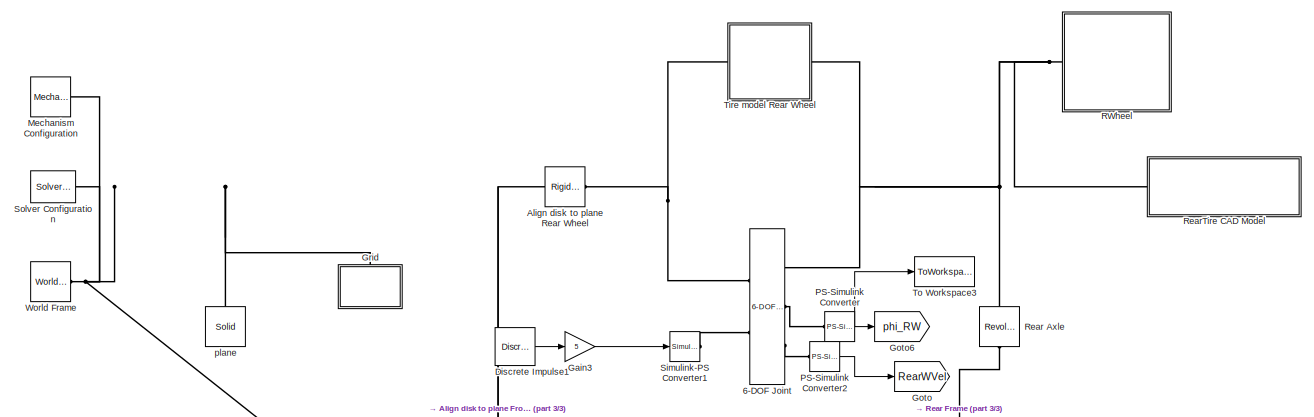
[diagram: root canvas - part 1/3, top center region]
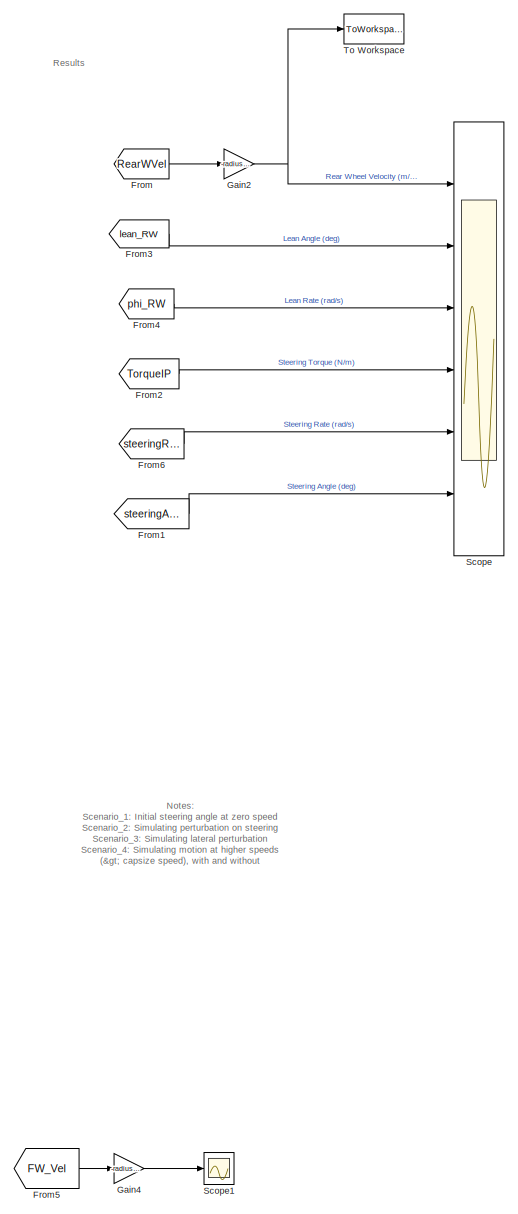
[diagram: root canvas - part 2/3, right side, full height]
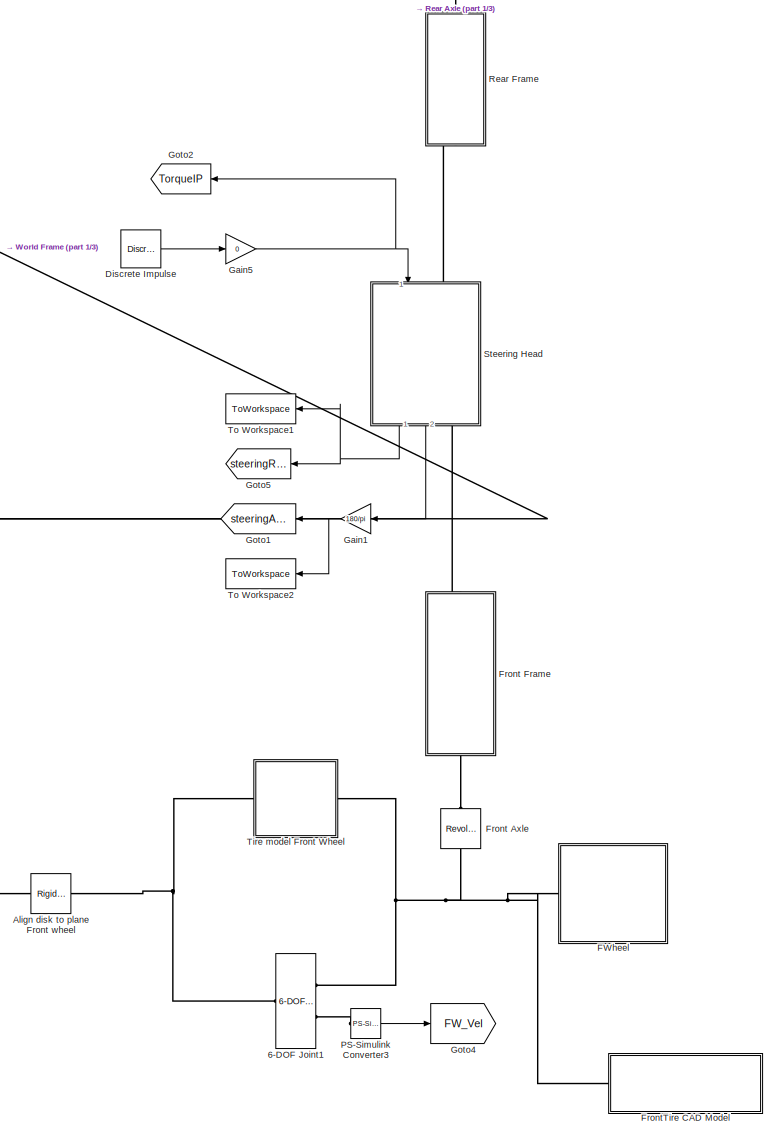
[diagram: root canvas - part 3/3, central region]
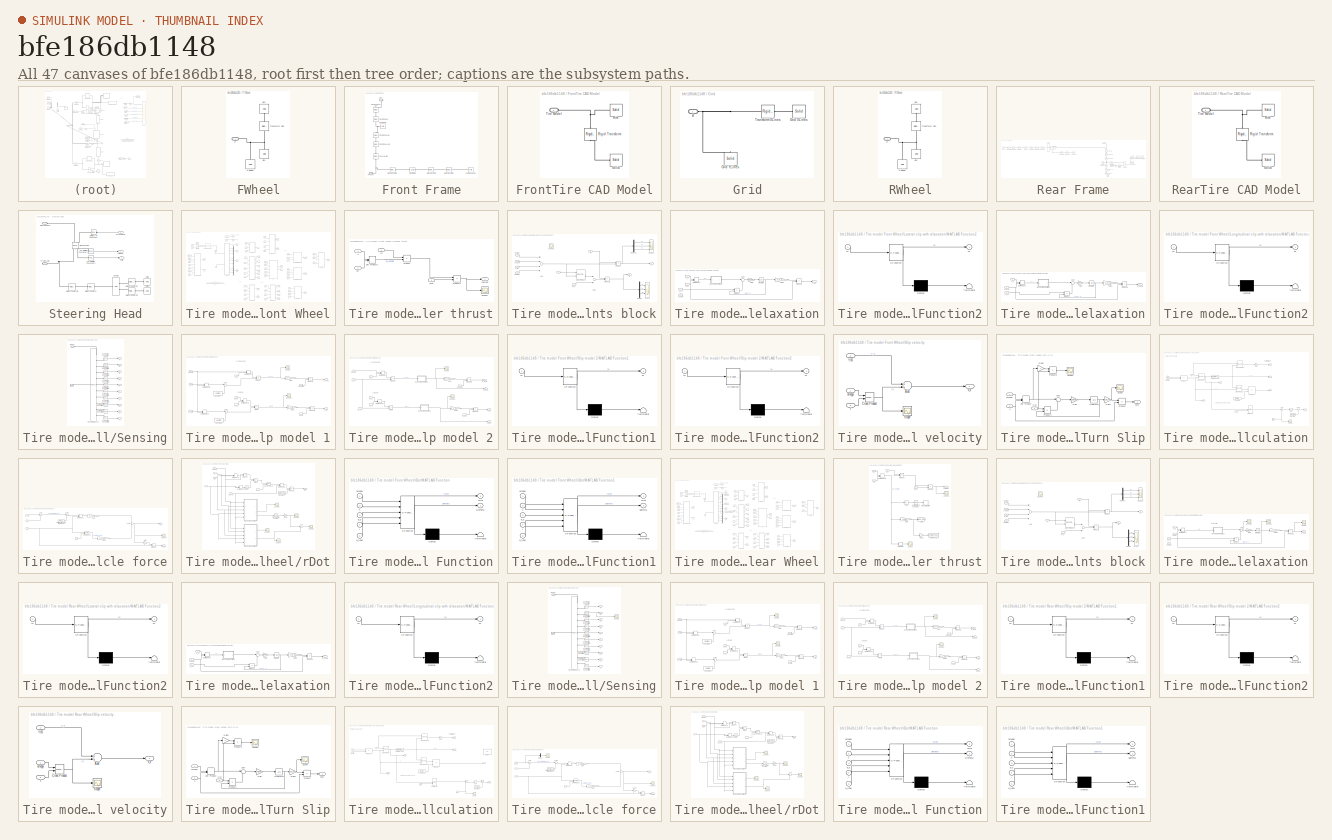
[diagram: thumbnail index - all 47 canvases of the model, root first then tree order]
MODEL slx_bfe186db1148
KIND model
CONFIG AbsTol = auto
CONFIG EnableMultiTasking = off
CONFIG FixedStep = auto
CONFIG InitFcn = INIT_BlueBike
CONFIG MaxStep = auto
CONFIG MinStep = auto
CONFIG RelTol = 1e-3
CONFIG SampleTimeConstraint = Unconstrained
CONFIG Solver = VariableStepAuto
CONFIG SolverName = VariableStepAuto
CONFIG StartTime = 0.0
CONFIG StopTime = 50
BLOCK [Reference] 6-DOF Joint  REF=sm_lib/Joints/6-DOF Joint
  Ports = [0, 0, 0, 0, 0, 2, 3]
  SourceBlock = sm_lib/Joints/6-DOF Joint
  SourceProductBaseCode = MS
  SourceProductName = Simscape Multibody
  SourceType = 6-DOF Joint
BLOCK [Reference] 6-DOF Joint1  REF=sm_lib/Joints/6-DOF Joint
  Ports = [0, 0, 0, 0, 0, 1, 2]
  SourceBlock = sm_lib/Joints/6-DOF Joint
  SourceProductBaseCode = MS
  SourceProductName = Simscape Multibody
  SourceType = 6-DOF Joint
BLOCK [Reference] Align disk to plane Front wheel  REF=sm_lib/Frames and
Transforms/Rigid
Transform
  Ports = [0, 0, 0, 0, 0, 1, 1]
  SourceBlock = sm_lib/Frames and\nTransforms/Rigid\nTransform
  SourceProductBaseCode = MS
  SourceProductName = Simscape Multibody
  SourceType = Rigid\nTransform
BLOCK [Reference] Align disk to plane Rear Wheel  REF=sm_lib/Frames and
Transforms/Rigid
Transform
  Ports = [0, 0, 0, 0, 0, 1, 1]
  SourceBlock = sm_lib/Frames and\nTransforms/Rigid\nTransform
  SourceProductBaseCode = MS
  SourceProductName = Simscape Multibody
  SourceType = Rigid\nTransform
BLOCK [Reference] Discrete Impulse  REF=dspsrcs4/Discrete 
Impulse
  Ports = [0, 1]
  SourceBlock = dspsrcs4/Discrete \nImpulse
  SourceProductBaseCode = DS
  SourceProductName = DSP System Toolbox
  SourceType = Discrete Impulse
BLOCK [Reference] Discrete Impulse1  REF=dspsrcs4/Discrete 
Impulse
  Ports = [0, 1]
  SourceBlock = dspsrcs4/Discrete \nImpulse
  SourceProductBaseCode = DS
  SourceProductName = DSP System Toolbox
  SourceType = Discrete Impulse
BLOCK [SubSystem] FWheel
  AncestorBlock = Parts_Lib/Cylinder
  Ports = [0, 0, 0, 0, 0, 1]
  RequestExecContextInheritance = off
  Tag = CustomStyle
  Variant = off
BLOCK [Reference] FWheel/Cylinder  REF=sm_lib/Body Elements/Solid
  Ports = [0, 0, 0, 0, 0, 0, 1]
  SourceBlock = sm_lib/Body Elements/Solid
  SourceProductBaseCode = MS
  SourceProductName = Simscape Multibody
  SourceType = Solid
BLOCK [PMIOPort] FWheel/R
  Port = 1
  Side = Left
BLOCK [Reference] FWheel/Transform Vis2  REF=sm_lib/Frames and
Transforms/Rigid
Transform
  Ports = [0, 0, 0, 0, 0, 1, 1]
  SourceBlock = sm_lib/Frames and\nTransforms/Rigid\nTransform
  SourceProductBaseCode = MS
  SourceProductName = Simscape Multibody
  SourceType = Rigid\nTransform
BLOCK [Reference] FWheel/Vis1  REF=sm_lib/Body Elements/Solid
  Ports = [0, 0, 0, 0, 0, 0, 1]
  SourceBlock = sm_lib/Body Elements/Solid
  SourceProductBaseCode = MS
  SourceProductName = Simscape Multibody
  SourceType = Solid
BLOCK [Reference] FWheel/Vis2  REF=sm_lib/Body Elements/Solid
  Ports = [0, 0, 0, 0, 0, 0, 1]
  SourceBlock = sm_lib/Body Elements/Solid
  SourceProductBaseCode = MS
  SourceProductName = Simscape Multibody
  SourceType = Solid
BLOCK [From] From
  GotoTag = RearWVel
BLOCK [From] From1
  GotoTag = steeringAngle
BLOCK [From] From2
  GotoTag = TorqueIP
BLOCK [From] From3
  GotoTag = lean_RW
  TagVisibility = global
BLOCK [From] From4
  GotoTag = phi_RW
  TagVisibility = global
BLOCK [From] From5
  GotoTag = FW_Vel
BLOCK [From] From6
  GotoTag = steeringRate
BLOCK [Reference] Front Axle   REF=sm_lib/Joints/Revolute Joint
  Ports = [0, 0, 0, 0, 0, 1, 1]
  SourceBlock = sm_lib/Joints/Revolute Joint
  SourceProductBaseCode = MS
  SourceProductName = Simscape Multibody
  SourceType = Revolute Joint
BLOCK [SubSystem] Front Frame
  Ports = [0, 0, 0, 0, 0, 1, 1]
  RequestExecContextInheritance = off
  Variant = off
BLOCK [PMIOPort] Front Frame/Front Axle
  Port = 2
  Side = Left
BLOCK [Reference] Front Frame/Front Axle Align  REF=sm_lib/Frames and
Transforms/Rigid
Transform
  Ports = [0, 0, 0, 0, 0, 1, 1]
  SourceBlock = sm_lib/Frames and\nTransforms/Rigid\nTransform
  SourceProductBaseCode = MS
  SourceProductName = Simscape Multibody
  SourceType = Rigid\nTransform
BLOCK [Reference] Front Frame/Front Frame  REF=sm_lib/Body Elements/Solid
  Ports = [0, 0, 0, 0, 0, 0, 1]
  SourceBlock = sm_lib/Body Elements/Solid
  SourceProductBaseCode = MS
  SourceProductName = Simscape Multibody
  SourceType = Solid
BLOCK [Reference] Front Frame/Front Frame Angle  REF=sm_lib/Frames and
Transforms/Rigid
Transform
  Ports = [0, 0, 0, 0, 0, 1, 1]
  SourceBlock = sm_lib/Frames and\nTransforms/Rigid\nTransform
  SourceProductBaseCode = MS
  SourceProductName = Simscape Multibody
  SourceType = Rigid\nTransform
BLOCK [Reference] Front Frame/Front From Center  REF=sm_lib/Frames and
Transforms/Rigid
Transform
  Ports = [0, 0, 0, 0, 0, 1, 1]
  SourceBlock = sm_lib/Frames and\nTransforms/Rigid\nTransform
  SourceProductBaseCode = MS
  SourceProductName = Simscape Multibody
  SourceType = Rigid\nTransform
BLOCK [Reference] Front Frame/Front From End  REF=sm_lib/Frames and
Transforms/Rigid
Transform
  Ports = [0, 0, 0, 0, 0, 1, 1]
  SourceBlock = sm_lib/Frames and\nTransforms/Rigid\nTransform
  SourceProductBaseCode = MS
  SourceProductName = Simscape Multibody
  SourceType = Rigid\nTransform
BLOCK [Reference] Front Frame/Front and Rear Align  REF=sm_lib/Frames and
Transforms/Rigid
Transform
  Ports = [0, 0, 0, 0, 0, 1, 1]
  SourceBlock = sm_lib/Frames and\nTransforms/Rigid\nTransform
  SourceProductBaseCode = MS
  SourceProductName = Simscape Multibody
  SourceType = Rigid\nTransform
BLOCK [Reference] Front Frame/FrontFrame  REF=sm_lib/Body Elements/Solid
  Ports = [0, 0, 0, 0, 0, 1, 1]
  SourceBlock = sm_lib/Body Elements/Solid
  SourceProductBaseCode = MS
  SourceProductName = Simscape Multibody
  SourceType = Solid
BLOCK [Reference] Front Frame/FrontMudGuard  REF=sm_lib/Body Elements/Solid
  Ports = [0, 0, 0, 0, 0, 1]
  SourceBlock = sm_lib/Body Elements/Solid
  SourceProductBaseCode = MS
  SourceProductName = Simscape Multibody
  SourceType = Solid
BLOCK [Reference] Front Frame/Rigid Transform  REF=sm_lib/Frames and
Transforms/Rigid
Transform
  Ports = [0, 0, 0, 0, 0, 1, 1]
  SourceBlock = sm_lib/Frames and\nTransforms/Rigid\nTransform
  SourceProductBaseCode = MS
  SourceProductName = Simscape Multibody
  SourceType = Rigid\nTransform
BLOCK [Reference] Front Frame/Rigid Transform1  REF=sm_lib/Frames and
Transforms/Rigid
Transform
  Ports = [0, 0, 0, 0, 0, 1, 1]
  SourceBlock = sm_lib/Frames and\nTransforms/Rigid\nTransform
  SourceProductBaseCode = MS
  SourceProductName = Simscape Multibody
  SourceType = Rigid\nTransform
BLOCK [Reference] Front Frame/Rigid Transform4  REF=sm_lib/Frames and
Transforms/Rigid
Transform
  Ports = [0, 0, 0, 0, 0, 1, 1]
  SourceBlock = sm_lib/Frames and\nTransforms/Rigid\nTransform
  SourceProductBaseCode = MS
  SourceProductName = Simscape Multibody
  SourceType = Rigid\nTransform
BLOCK [PMIOPort] Front Frame/Steer
  Port = 1
  Side = Right
BLOCK [SubSystem] FrontTire CAD Model
  Ports = [0, 0, 0, 0, 0, 1]
  RequestExecContextInheritance = off
  Variant = off
BLOCK [Reference] FrontTire CAD Model/Rigid Transform  REF=sm_lib/Frames and
Transforms/Rigid
Transform
  Ports = [0, 0, 0, 0, 0, 1, 1]
  SourceBlock = sm_lib/Frames and\nTransforms/Rigid\nTransform
  SourceProductBaseCode = MS
  SourceProductName = Simscape Multibody
  SourceType = Rigid\nTransform
BLOCK [Reference] FrontTire CAD Model/Rim  REF=sm_lib/Body Elements/Solid
  Ports = [0, 0, 0, 0, 0, 1]
  SourceBlock = sm_lib/Body Elements/Solid
  SourceProductBaseCode = MS
  SourceProductName = Simscape Multibody
  SourceType = Solid
BLOCK [Reference] FrontTire CAD Model/Solid  REF=sm_lib/Body Elements/Solid
  Ports = [0, 0, 0, 0, 0, 1]
  SourceBlock = sm_lib/Body Elements/Solid
  SourceProductBaseCode = MS
  SourceProductName = Simscape Multibody
  SourceType = Solid
BLOCK [PMIOPort] FrontTire CAD Model/Tire Model
  Port = 1
  Side = Left
BLOCK [Gain] Gain1
  Gain = 180/pi
  OutDataTypeStr = Inherit: Inherit via internal rule
  ParamDataTypeStr = Inherit: Inherit via internal rule
  SaturateOnIntegerOverflow = off
BLOCK [Gain] Gain2
  Gain = -radiusRW
  OutDataTypeStr = Inherit: Inherit via internal rule
  ParamDataTypeStr = Inherit: Inherit via internal rule
  SaturateOnIntegerOverflow = off
BLOCK [Gain] Gain3
  Gain = 5
  OutDataTypeStr = Inherit: Inherit via internal rule
  ParamDataTypeStr = Inherit: Inherit via internal rule
  SaturateOnIntegerOverflow = off
BLOCK [Gain] Gain4
  Gain = -radiusFW
  OutDataTypeStr = Inherit: Inherit via internal rule
  ParamDataTypeStr = Inherit: Inherit via internal rule
  SaturateOnIntegerOverflow = off
BLOCK [Gain] Gain5
  Gain = 0
  OutDataTypeStr = Inherit: Inherit via internal rule
  ParamDataTypeStr = Inherit: Inherit via internal rule
  SaturateOnIntegerOverflow = off
BLOCK [Goto] Goto
  GotoTag = RearWVel
BLOCK [Goto] Goto1
  GotoTag = steeringAngle
BLOCK [Goto] Goto2
  GotoTag = TorqueIP
BLOCK [Goto] Goto4
  GotoTag = FW_Vel
BLOCK [Goto] Goto5
  GotoTag = steeringRate
BLOCK [Goto] Goto6
  GotoTag = phi_RW
  TagVisibility = global
BLOCK [SubSystem] Grid
  Ports = [0, 0, 0, 0, 0, 1]
  RequestExecContextInheritance = off
  Variant = off
BLOCK [PMIOPort] Grid/B
  Port = 1
  Side = Left
BLOCK [Reference] Grid/Grid XLines  REF=sm_lib/Body Elements/Solid
  Ports = [0, 0, 0, 0, 0, 0, 1]
  SourceBlock = sm_lib/Body Elements/Solid
  SourceProductBaseCode = MS
  SourceProductName = Simscape Multibody
  SourceType = Solid
BLOCK [Reference] Grid/Grid YLines  REF=sm_lib/Body Elements/Solid
  Ports = [0, 0, 0, 0, 0, 0, 1]
  SourceBlock = sm_lib/Body Elements/Solid
  SourceProductBaseCode = MS
  SourceProductName = Simscape Multibody
  SourceType = Solid
BLOCK [Reference] Grid/Transform XLines   REF=sm_lib/Frames and
Transforms/Rigid
Transform
  Ports = [0, 0, 0, 0, 0, 1, 1]
  SourceBlock = sm_lib/Frames and\nTransforms/Rigid\nTransform
  SourceProductBaseCode = MS
  SourceProductName = Simscape Multibody
  SourceType = Rigid\nTransform
BLOCK [Reference] Mechanism Configuration  REF=sm_lib/Utilities/Mechanism
Configuration
  Ports = [0, 0, 0, 0, 0, 0, 1]
  SourceBlock = sm_lib/Utilities/Mechanism\nConfiguration
  SourceProductBaseCode = MS
  SourceProductName = Simscape Multibody
  SourceType = Mechanism\nConfiguration
BLOCK [Reference] PS-Simulink Converter  REF=nesl_utility/PS-Simulink
Converter
  Ports = [0, 1, 0, 0, 0, 1]
  SourceBlock = nesl_utility/PS-Simulink\nConverter
  SourceProductBaseCode = SS
  SourceProductName = Simscape
  SourceType = PS-Simulink\nConverter
BLOCK [Reference] PS-Simulink Converter2  REF=nesl_utility/PS-Simulink
Converter
  Ports = [0, 1, 0, 0, 0, 1]
  SourceBlock = nesl_utility/PS-Simulink\nConverter
  SourceProductBaseCode = SS
  SourceProductName = Simscape
  SourceType = PS-Simulink\nConverter
BLOCK [Reference] PS-Simulink Converter3  REF=nesl_utility/PS-Simulink
Converter
  Ports = [0, 1, 0, 0, 0, 1]
  SourceBlock = nesl_utility/PS-Simulink\nConverter
  SourceProductBaseCode = SS
  SourceProductName = Simscape
  SourceType = PS-Simulink\nConverter
BLOCK [SubSystem] RWheel
  AncestorBlock = Parts_Lib/Cylinder
  Ports = [0, 0, 0, 0, 0, 1]
  RequestExecContextInheritance = off
  Tag = CustomStyle
  Variant = off
BLOCK [Reference] RWheel/Cylinder  REF=sm_lib/Body Elements/Solid
  Ports = [0, 0, 0, 0, 0, 0, 1]
  SourceBlock = sm_lib/Body Elements/Solid
  SourceProductBaseCode = MS
  SourceProductName = Simscape Multibody
  SourceType = Solid
BLOCK [PMIOPort] RWheel/R
  Port = 1
  Side = Left
BLOCK [Reference] RWheel/Transform Vis2  REF=sm_lib/Frames and
Transforms/Rigid
Transform
  Ports = [0, 0, 0, 0, 0, 1, 1]
  SourceBlock = sm_lib/Frames and\nTransforms/Rigid\nTransform
  SourceProductBaseCode = MS
  SourceProductName = Simscape Multibody
  SourceType = Rigid\nTransform
BLOCK [Reference] RWheel/Vis1  REF=sm_lib/Body Elements/Solid
  Ports = [0, 0, 0, 0, 0, 0, 1]
  SourceBlock = sm_lib/Body Elements/Solid
  SourceProductBaseCode = MS
  SourceProductName = Simscape Multibody
  SourceType = Solid
BLOCK [Reference] RWheel/Vis2  REF=sm_lib/Body Elements/Solid
  Ports = [0, 0, 0, 0, 0, 0, 1]
  SourceBlock = sm_lib/Body Elements/Solid
  SourceProductBaseCode = MS
  SourceProductName = Simscape Multibody
  SourceType = Solid
BLOCK [Reference] Rear Axle  REF=sm_lib/Joints/Revolute Joint
  Ports = [0, 0, 0, 0, 0, 1, 1]
  SourceBlock = sm_lib/Joints/Revolute Joint
  SourceProductBaseCode = MS
  SourceProductName = Simscape Multibody
  SourceType = Revolute Joint
BLOCK [SubSystem] Rear Frame
  Ports = [0, 0, 0, 0, 0, 1, 1]
  RequestExecContextInheritance = off
  Variant = off
BLOCK [Reference] Rear Frame/Camera Aim  REF=sm_lib/Joints/Revolute Joint
  Ports = [0, 0, 0, 0, 0, 2, 1]
  SourceBlock = sm_lib/Joints/Revolute Joint
  SourceProductBaseCode = MS
  SourceProductName = Simscape Multibody
  SourceType = Revolute Joint
BLOCK [From] Rear Frame/From
  GotoTag = lean_RW
  TagVisibility = global
BLOCK [Gain] Rear Frame/Gain
  Gain = pi/180
  OutDataTypeStr = Inherit: Inherit via internal rule
  ParamDataTypeStr = Inherit: Inherit via internal rule
  SaturateOnIntegerOverflow = off
BLOCK [Reference] Rear Frame/Isometric Camera  REF=sm_lib/Frames and
Transforms/Rigid
Transform
  Ports = [0, 0, 0, 0, 0, 1, 1]
  SourceBlock = sm_lib/Frames and\nTransforms/Rigid\nTransform
  SourceProductBaseCode = MS
  SourceProductName = Simscape Multibody
  SourceType = Rigid\nTransform
BLOCK [Reference] Rear Frame/Isometric Camera Aim  REF=sm_lib/Frames and
Transforms/Rigid
Transform
  Ports = [0, 0, 0, 0, 0, 1, 1]
  SourceBlock = sm_lib/Frames and\nTransforms/Rigid\nTransform
  SourceProductBaseCode = MS
  SourceProductName = Simscape Multibody
  SourceType = Rigid\nTransform
BLOCK [Reference] Rear Frame/Isometric Camera1  REF=sm_lib/Frames and
Transforms/Rigid
Transform
  Ports = [0, 0, 0, 0, 0, 1, 1]
  SourceBlock = sm_lib/Frames and\nTransforms/Rigid\nTransform
  SourceProductBaseCode = MS
  SourceProductName = Simscape Multibody
  SourceType = Rigid\nTransform
BLOCK [PMIOPort] Rear Frame/Rear Axle
  Port = 1
  Side = Left
BLOCK [Reference] Rear Frame/Rear Frame  REF=sm_lib/Body Elements/Solid
  Ports = [0, 0, 0, 0, 0, 0, 1]
  SourceBlock = sm_lib/Body Elements/Solid
  SourceProductBaseCode = MS
  SourceProductName = Simscape Multibody
  SourceType = Solid
BLOCK [Reference] Rear Frame/Rear Frame Align  REF=sm_lib/Frames and
Transforms/Rigid
Transform
  Ports = [0, 0, 0, 0, 0, 1, 1]
  SourceBlock = sm_lib/Frames and\nTransforms/Rigid\nTransform
  SourceProductBaseCode = MS
  SourceProductName = Simscape Multibody
  SourceType = Rigid\nTransform
BLOCK [Reference] Rear Frame/Rear Frame Angle  REF=sm_lib/Frames and
Transforms/Rigid
Transform
  Ports = [0, 0, 0, 0, 0, 1, 1]
  SourceBlock = sm_lib/Frames and\nTransforms/Rigid\nTransform
  SourceProductBaseCode = MS
  SourceProductName = Simscape Multibody
  SourceType = Rigid\nTransform
BLOCK [Reference] Rear Frame/Rear Frame Angle Reset  REF=sm_lib/Frames and
Transforms/Rigid
Transform
  Ports = [0, 0, 0, 0, 0, 1, 1]
  SourceBlock = sm_lib/Frames and\nTransforms/Rigid\nTransform
  SourceProductBaseCode = MS
  SourceProductName = Simscape Multibody
  SourceType = Rigid\nTransform
BLOCK [Reference] Rear Frame/Rear Frame Center  REF=sm_lib/Frames and
Transforms/Rigid
Transform
  Ports = [0, 0, 0, 0, 0, 1, 1]
  SourceBlock = sm_lib/Frames and\nTransforms/Rigid\nTransform
  SourceProductBaseCode = MS
  SourceProductName = Simscape Multibody
  SourceType = Rigid\nTransform
BLOCK [Reference] Rear Frame/Rear Frame End  REF=sm_lib/Frames and
Transforms/Rigid
Transform
  Ports = [0, 0, 0, 0, 0, 1, 1]
  SourceBlock = sm_lib/Frames and\nTransforms/Rigid\nTransform
  SourceProductBaseCode = MS
  SourceProductName = Simscape Multibody
  SourceType = Rigid\nTransform
BLOCK [Reference] Rear Frame/RearFrame  REF=sm_lib/Body Elements/Solid
  Ports = [0, 0, 0, 0, 0, 2, 1]
  SourceBlock = sm_lib/Body Elements/Solid
  SourceProductBaseCode = MS
  SourceProductName = Simscape Multibody
  SourceType = Solid
BLOCK [Reference] Rear Frame/Rear_ MudGuard  REF=sm_lib/Body Elements/Solid
  Ports = [0, 0, 0, 0, 0, 1]
  SourceBlock = sm_lib/Body Elements/Solid
  SourceProductBaseCode = MS
  SourceProductName = Simscape Multibody
  SourceType = Solid
BLOCK [Reference] Rear Frame/Rigid Transform  REF=sm_lib/Frames and
Transforms/Rigid
Transform
  Ports = [0, 0, 0, 0, 0, 1, 1]
  SourceBlock = sm_lib/Frames and\nTransforms/Rigid\nTransform
  SourceProductBaseCode = MS
  SourceProductName = Simscape Multibody
  SourceType = Rigid\nTransform
BLOCK [Reference] Rear Frame/Rigid Transform1  REF=sm_lib/Frames and
Transforms/Rigid
Transform
  Ports = [0, 0, 0, 0, 0, 1, 1]
  SourceBlock = sm_lib/Frames and\nTransforms/Rigid\nTransform
  SourceProductBaseCode = MS
  SourceProductName = Simscape Multibody
  SourceType = Rigid\nTransform
BLOCK [Reference] Rear Frame/Rigid Transform2  REF=sm_lib/Frames and
Transforms/Rigid
Transform
  Ports = [0, 0, 0, 0, 0, 1, 1]
  SourceBlock = sm_lib/Frames and\nTransforms/Rigid\nTransform
  SourceProductBaseCode = MS
  SourceProductName = Simscape Multibody
  SourceType = Rigid\nTransform
BLOCK [Reference] Rear Frame/Rigid Transform3  REF=sm_lib/Frames and
Transforms/Rigid
Transform
  Ports = [0, 0, 0, 0, 0, 1, 1]
  SourceBlock = sm_lib/Frames and\nTransforms/Rigid\nTransform
  SourceProductBaseCode = MS
  SourceProductName = Simscape Multibody
  SourceType = Rigid\nTransform
BLOCK [Reference] Rear Frame/Rigid Transform4  REF=sm_lib/Frames and
Transforms/Rigid
Transform
  Ports = [0, 0, 0, 0, 0, 1, 1]
  SourceBlock = sm_lib/Frames and\nTransforms/Rigid\nTransform
  SourceProductBaseCode = MS
  SourceProductName = Simscape Multibody
  SourceType = Rigid\nTransform
BLOCK [Reference] Rear Frame/Rigid Transform5  REF=sm_lib/Frames and
Transforms/Rigid
Transform
  Ports = [0, 0, 0, 0, 0, 1, 1]
  SourceBlock = sm_lib/Frames and\nTransforms/Rigid\nTransform
  SourceProductBaseCode = MS
  SourceProductName = Simscape Multibody
  SourceType = Rigid\nTransform
BLOCK [Reference] Rear Frame/Rigid Transform6  REF=sm_lib/Frames and
Transforms/Rigid
Transform
  Ports = [0, 0, 0, 0, 0, 1, 1]
  SourceBlock = sm_lib/Frames and\nTransforms/Rigid\nTransform
  SourceProductBaseCode = MS
  SourceProductName = Simscape Multibody
  SourceType = Rigid\nTransform
BLOCK [Reference] Rear Frame/Rigid Transform7  REF=sm_lib/Frames and
Transforms/Rigid
Transform
  Ports = [0, 0, 0, 0, 0, 1, 1]
  SourceBlock = sm_lib/Frames and\nTransforms/Rigid\nTransform
  SourceProductBaseCode = MS
  SourceProductName = Simscape Multibody
  SourceType = Rigid\nTransform
BLOCK [Reference] Rear Frame/Rigid Transform8  REF=sm_lib/Frames and
Transforms/Rigid
Transform
  Ports = [0, 0, 0, 0, 0, 1, 1]
  SourceBlock = sm_lib/Frames and\nTransforms/Rigid\nTransform
  SourceProductBaseCode = MS
  SourceProductName = Simscape Multibody
  SourceType = Rigid\nTransform
BLOCK [Reference] Rear Frame/Rigid Transform9  REF=sm_lib/Frames and
Transforms/Rigid
Transform
  Ports = [0, 0, 0, 0, 0, 1, 1]
  SourceBlock = sm_lib/Frames and\nTransforms/Rigid\nTransform
  SourceProductBaseCode = MS
  SourceProductName = Simscape Multibody
  SourceType = Rigid\nTransform
BLOCK [Reference] Rear Frame/Seat  REF=sm_lib/Body Elements/Solid
  Ports = [0, 0, 0, 0, 0, 1, 1]
  SourceBlock = sm_lib/Body Elements/Solid
  SourceProductBaseCode = MS
  SourceProductName = Simscape Multibody
  SourceType = Solid
BLOCK [Reference] Rear Frame/Seat_Rod  REF=sm_lib/Body Elements/Solid
  Ports = [0, 0, 0, 0, 0, 1, 1]
  SourceBlock = sm_lib/Body Elements/Solid
  SourceProductBaseCode = MS
  SourceProductName = Simscape Multibody
  SourceType = Solid
BLOCK [Reference] Rear Frame/Simulink-PS Converter  REF=nesl_utility/Simulink-PS
Converter
  Ports = [1, 0, 0, 0, 0, 0, 1]
  SourceBlock = nesl_utility/Simulink-PS\nConverter
  SourceProductBaseCode = SS
  SourceProductName = Simscape
  SourceType = Simulink-PS\nConverter
BLOCK [PMIOPort] Rear Frame/Steer
  Port = 2
  Side = Right
BLOCK [Reference] Rear Frame/Steering Head Angle  REF=sm_lib/Frames and
Transforms/Rigid
Transform
  Ports = [0, 0, 0, 0, 0, 1, 1]
  SourceBlock = sm_lib/Frames and\nTransforms/Rigid\nTransform
  SourceProductBaseCode = MS
  SourceProductName = Simscape Multibody
  SourceType = Rigid\nTransform
BLOCK [Reference] Rear Frame/Top View Camera  REF=sm_lib/Frames and
Transforms/Rigid
Transform
  Ports = [0, 0, 0, 0, 0, 1, 1]
  SourceBlock = sm_lib/Frames and\nTransforms/Rigid\nTransform
  SourceProductBaseCode = MS
  SourceProductName = Simscape Multibody
  SourceType = Rigid\nTransform
BLOCK [SubSystem] RearTire CAD Model
  Ports = [0, 0, 0, 0, 0, 1]
  RequestExecContextInheritance = off
  Variant = off
BLOCK [Reference] RearTire CAD Model/Rigid Transform  REF=sm_lib/Frames and
Transforms/Rigid
Transform
  Ports = [0, 0, 0, 0, 0, 1, 1]
  SourceBlock = sm_lib/Frames and\nTransforms/Rigid\nTransform
  SourceProductBaseCode = MS
  SourceProductName = Simscape Multibody
  SourceType = Rigid\nTransform
BLOCK [Reference] RearTire CAD Model/Rim  REF=sm_lib/Body Elements/Solid
  Ports = [0, 0, 0, 0, 0, 1]
  SourceBlock = sm_lib/Body Elements/Solid
  SourceProductBaseCode = MS
  SourceProductName = Simscape Multibody
  SourceType = Solid
BLOCK [Reference] RearTire CAD Model/Solid  REF=sm_lib/Body Elements/Solid
  Ports = [0, 0, 0, 0, 0, 1]
  SourceBlock = sm_lib/Body Elements/Solid
  SourceProductBaseCode = MS
  SourceProductName = Simscape Multibody
  SourceType = Solid
BLOCK [PMIOPort] RearTire CAD Model/Tire Model
  Port = 1
  Side = Left
BLOCK [Scope] Scope
  NumInputPorts = 6
  Ports = [6]
  ScopeSpecificationString = Simulink.scopes.TimeScopeBlockCfg('CurrentConfiguration', extmgr.ConfigurationSet(extmgr.Configuration('Core','General UI',true),extmgr.Configuration('Core','Source UI',true),extmgr.Configuration('Sources','WiredSimulink',true,'DataLoggingVariableName','ScopeData1'),extmgr.Configuration('Visuals','Time Domain',true,'SerializedDisplays',{struct('MinYLimReal','7.64984','MaxYLimReal','7.84784','YLabe...<+4984ch>
BLOCK [Scope] Scope1
  NumInputPorts = 1
  Ports = [1]
  ScopeSpecificationString = Simulink.scopes.TimeScopeBlockCfg('CurrentConfiguration', extmgr.ConfigurationSet(extmgr.Configuration('Core','General UI',true),extmgr.Configuration('Core','Source UI',true),extmgr.Configuration('Sources','WiredSimulink',true,'DataLoggingVariableName','ScopeData2'),extmgr.Configuration('Visuals','Time Domain',true,'SerializedDisplays',{struct('MinYLimReal','7.28338','MaxYLimReal','7.30543','YLabe...<+1417ch>
BLOCK [Reference] Simulink-PS Converter1  REF=nesl_utility/Simulink-PS
Converter
  Ports = [1, 0, 0, 0, 0, 0, 1]
  SourceBlock = nesl_utility/Simulink-PS\nConverter
  SourceProductBaseCode = SS
  SourceProductName = Simscape
  SourceType = Simulink-PS\nConverter
BLOCK [Reference] Solver Configuration  REF=nesl_utility/Solver
Configuration
  Ports = [0, 0, 0, 0, 0, 0, 1]
  SourceBlock = nesl_utility/Solver\nConfiguration
  SourceProductBaseCode = SS
  SourceProductName = Simscape
  SourceType = Solver\nConfiguration
BLOCK [SubSystem] Steering Head
  Ports = [1, 2, 0, 0, 0, 1, 1]
  RequestExecContextInheritance = off
  Variant = off
BLOCK [PMIOPort] Steering Head/Front Frame
  Port = 2
  Side = Right
BLOCK [Reference] Steering Head/Handle  REF=sm_lib/Body Elements/Solid
  Ports = [0, 0, 0, 0, 0, 2, 1]
  SourceBlock = sm_lib/Body Elements/Solid
  SourceProductBaseCode = MS
  SourceProductName = Simscape Multibody
  SourceType = Solid
BLOCK [Reference] Steering Head/PS-Simulink Converter1  REF=nesl_utility/PS-Simulink
Converter
  Ports = [0, 1, 0, 0, 0, 1]
  SourceBlock = nesl_utility/PS-Simulink\nConverter
  SourceProductBaseCode = SS
  SourceProductName = Simscape
  SourceType = PS-Simulink\nConverter
BLOCK [Reference] Steering Head/PS-Simulink Converter4  REF=nesl_utility/PS-Simulink
Converter
  Ports = [0, 1, 0, 0, 0, 1]
  SourceBlock = nesl_utility/PS-Simulink\nConverter
  SourceProductBaseCode = SS
  SourceProductName = Simscape
  SourceType = PS-Simulink\nConverter
BLOCK [Reference] Steering Head/Rigid Transform  REF=sm_lib/Frames and
Transforms/Rigid
Transform
  Ports = [0, 0, 0, 0, 0, 1, 1]
  SourceBlock = sm_lib/Frames and\nTransforms/Rigid\nTransform
  SourceProductBaseCode = MS
  SourceProductName = Simscape Multibody
  SourceType = Rigid\nTransform
BLOCK [Reference] Steering Head/Rigid Transform1  REF=sm_lib/Frames and
Transforms/Rigid
Transform
  Ports = [0, 0, 0, 0, 0, 1, 1]
  SourceBlock = sm_lib/Frames and\nTransforms/Rigid\nTransform
  SourceProductBaseCode = MS
  SourceProductName = Simscape Multibody
  SourceType = Rigid\nTransform
BLOCK [Reference] Steering Head/Rigid Transform2  REF=sm_lib/Frames and
Transforms/Rigid
Transform
  Ports = [0, 0, 0, 0, 0, 1, 1]
  SourceBlock = sm_lib/Frames and\nTransforms/Rigid\nTransform
  SourceProductBaseCode = MS
  SourceProductName = Simscape Multibody
  SourceType = Rigid\nTransform
BLOCK [Reference] Steering Head/Rigid Transform5  REF=sm_lib/Frames and
Transforms/Rigid
Transform
  Ports = [0, 0, 0, 0, 0, 1, 1]
  SourceBlock = sm_lib/Frames and\nTransforms/Rigid\nTransform
  SourceProductBaseCode = MS
  SourceProductName = Simscape Multibody
  SourceType = Rigid\nTransform
BLOCK [Reference] Steering Head/Simulink-PS Converter  REF=nesl_utility/Simulink-PS
Converter
  Ports = [1, 0, 0, 0, 0, 0, 1]
  SourceBlock = nesl_utility/Simulink-PS\nConverter
  SourceProductBaseCode = SS
  SourceProductName = Simscape
  SourceType = Simulink-PS\nConverter
BLOCK [Reference] Steering Head/Solid  REF=sm_lib/Body Elements/Solid
  Ports = [0, 0, 0, 0, 0, 1]
  SourceBlock = sm_lib/Body Elements/Solid
  SourceProductBaseCode = MS
  SourceProductName = Simscape Multibody
  SourceType = Solid
BLOCK [Reference] Steering Head/Solid1  REF=sm_lib/Body Elements/Solid
  Ports = [0, 0, 0, 0, 0, 1]
  SourceBlock = sm_lib/Body Elements/Solid
  SourceProductBaseCode = MS
  SourceProductName = Simscape Multibody
  SourceType = Solid
BLOCK [PMIOPort] Steering Head/Steering Head
  Port = 1
  Side = Left
BLOCK [Reference] Steering Head/Steering Joint  REF=sm_lib/Joints/Revolute Joint
  Ports = [0, 0, 0, 0, 0, 2, 3]
  SourceBlock = sm_lib/Joints/Revolute Joint
  SourceProductBaseCode = MS
  SourceProductName = Simscape Multibody
  SourceType = Revolute Joint
BLOCK [Inport] Steering Head/Torque Input
  IconDisplay = Port number
BLOCK [Outport] Steering Head/delta
  IconDisplay = Port number
  Port = 2
BLOCK [Outport] Steering Head/deltaDot
  IconDisplay = Port number
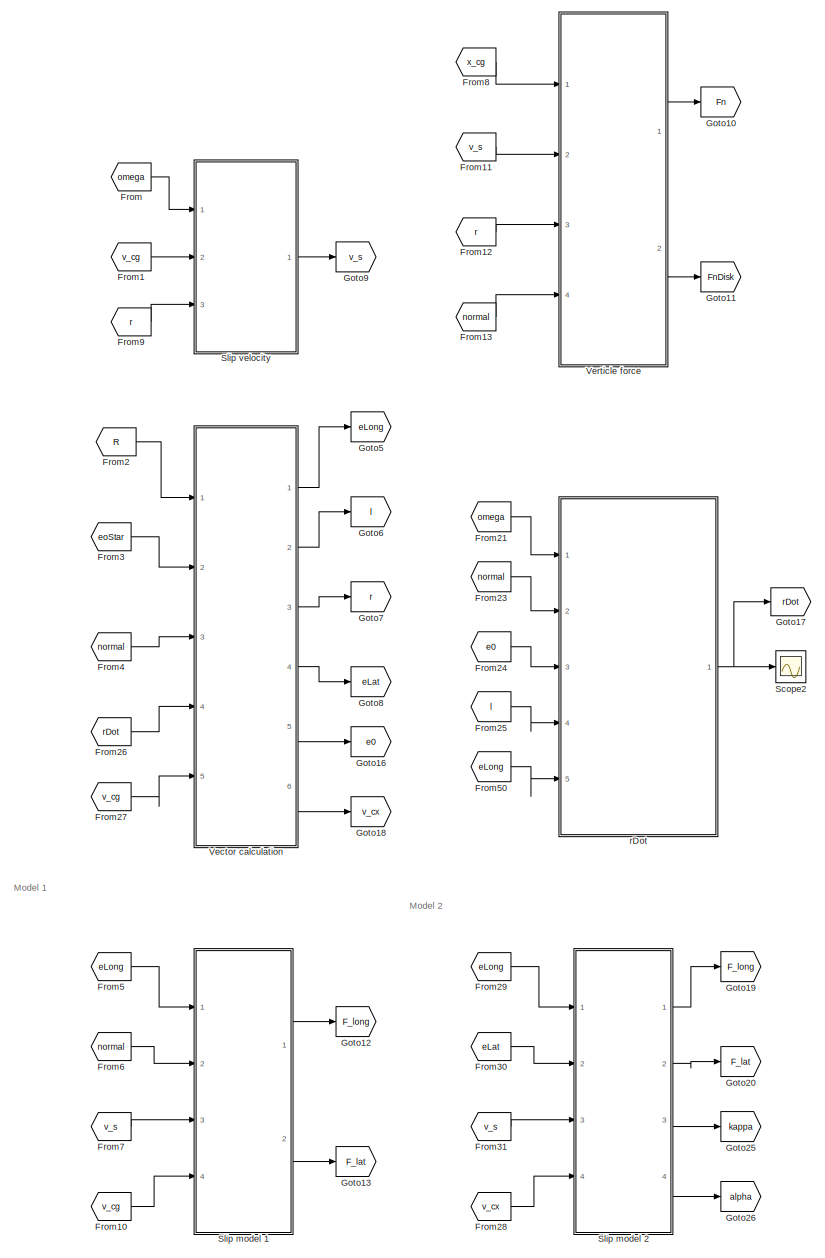
[diagram: Tire model Front Wheel - part 1/3, center side, full height]
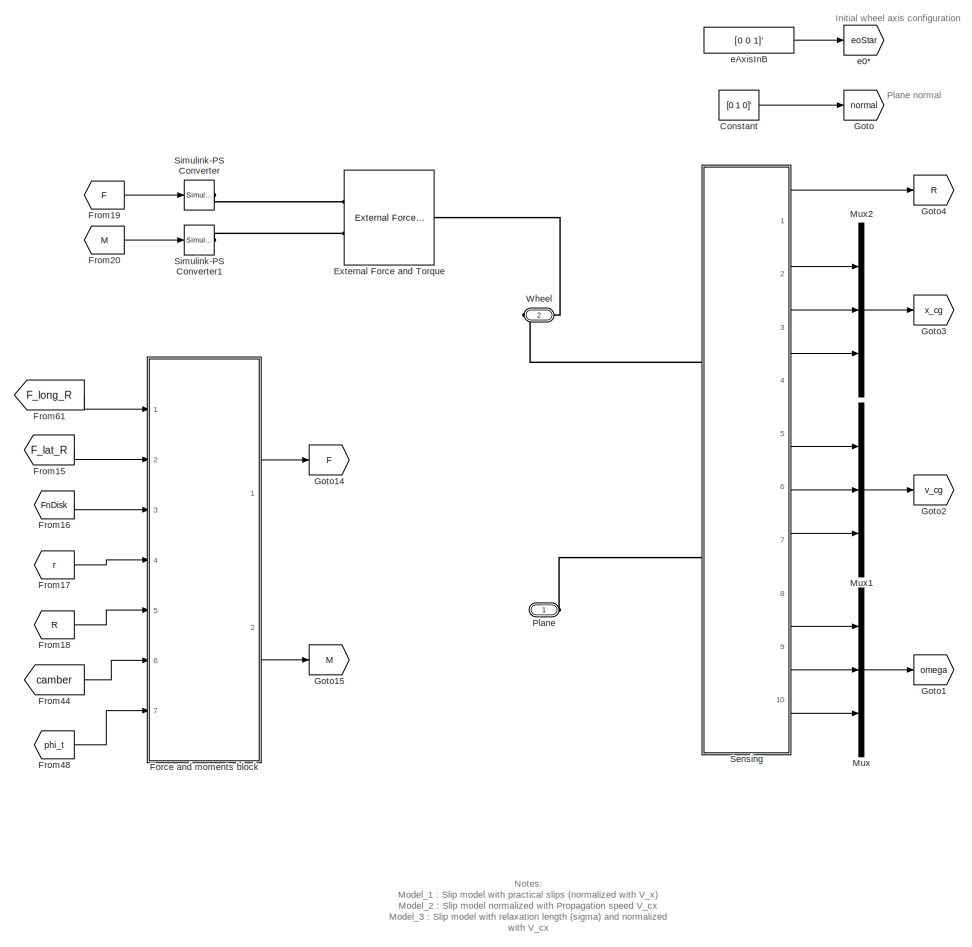
[diagram: Tire model Front Wheel - part 2/3, left side, full height]
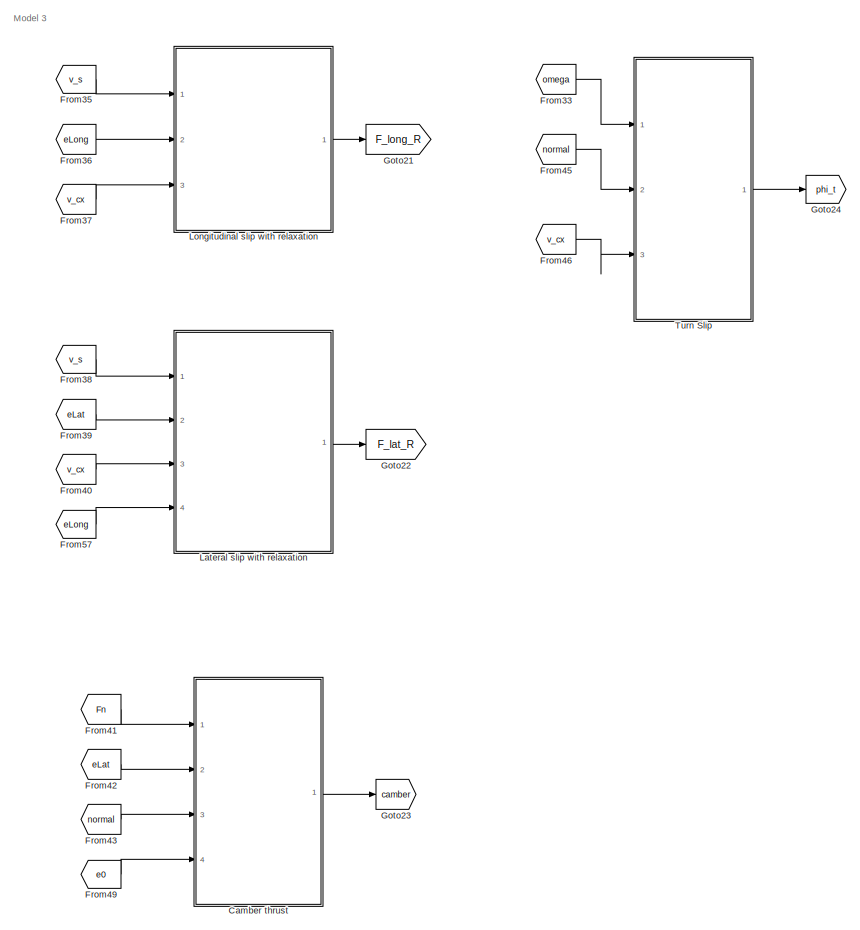
[diagram: Tire model Front Wheel - part 3/3, middle right region]
BLOCK [SubSystem] Tire model Front Wheel
  Ports = [0, 0, 0, 0, 0, 1, 1]
  RequestExecContextInheritance = off
  Variant = off
BLOCK [SubSystem] Tire model Front Wheel/Camber thrust
  Ports = [4, 1]
  RequestExecContextInheritance = off
  Variant = off
BLOCK [DotProduct] Tire model Front Wheel/Camber thrust/Dot Product1
  OutDataTypeStr = Inherit: Inherit via internal rule
BLOCK [Inport] Tire model Front Wheel/Camber thrust/Fn
  IconDisplay = Port number
BLOCK [Product] Tire model Front Wheel/Camber thrust/Product
  InputSameDT = off
  OutDataTypeStr = Inherit: Inherit via internal rule
  Ports = [2, 1]
  RndMeth = Floor
  SaturateOnIntegerOverflow = off
BLOCK [Product] Tire model Front Wheel/Camber thrust/Product1
  InputSameDT = off
  OutDataTypeStr = Inherit: Inherit via internal rule
  Ports = [2, 1]
  RndMeth = Floor
  SaturateOnIntegerOverflow = off
BLOCK [Scope] Tire model Front Wheel/Camber thrust/Scope1
  NumInputPorts = 1
  Ports = [1]
  ScopeSpecificationString = Simulink.scopes.TimeScopeBlockCfg('CurrentConfiguration', extmgr.ConfigurationSet(extmgr.Configuration('Core','General UI',true),extmgr.Configuration('Core','Source UI',true),extmgr.Configuration('Sources','WiredSimulink',true,'DataLoggingVariableName','ScopeData3'),extmgr.Configuration('Visuals','Time Domain',true,'SerializedDisplays',{struct('MinYLimReal','-25.43511','MaxYLimReal','9.20191','YLa...<+1499ch>
BLOCK [Outport] Tire model Front Wheel/Camber thrust/camber
  IconDisplay = Port number
BLOCK [Inport] Tire model Front Wheel/Camber thrust/e0
  IconDisplay = Port number
  Port = 4
BLOCK [Inport] Tire model Front Wheel/Camber thrust/eLat
  IconDisplay = Port number
  Port = 2
BLOCK [Inport] Tire model Front Wheel/Camber thrust/n
  IconDisplay = Port number
  Port = 3
BLOCK [Constant] Tire model Front Wheel/Constant
  Value = [0 1 0]'
BLOCK [Reference] Tire model Front Wheel/External Force and Torque  REF=sm_lib/Forces and
Torques/External Force
and Torque
  Ports = [0, 0, 0, 0, 0, 2, 1]
  SourceBlock = sm_lib/Forces and\nTorques/External Force\nand Torque
  SourceProductBaseCode = MS
  SourceProductName = Simscape Multibody
  SourceType = External Force\nand Torque
BLOCK [SubSystem] Tire model Front Wheel/Force and moments block
  Ports = [7, 2]
  RequestExecContextInheritance = off
  Variant = off
BLOCK [Sum] Tire model Front Wheel/Force and moments block/Add
  InputSameDT = off
  Inputs = 4
  OutDataTypeStr = Inherit: Inherit via internal rule
  Ports = [4, 1]
  SaturateOnIntegerOverflow = off
BLOCK [Sum] Tire model Front Wheel/Force and moments block/Add1
  InputSameDT = off
  OutDataTypeStr = Inherit: Inherit via internal rule
  Ports = [2, 1]
  SaturateOnIntegerOverflow = off
BLOCK [Reference] Tire model Front Wheel/Force and moments block/Cross Product  REF=vrlib/Utilities/Cross Product
  Ports = [2, 1]
  SourceBlock = vrlib/Utilities/Cross Product
  SourceProductBaseCode = VR
  SourceProductName = Simulink 3D Animation
  SourceType = Cross Product
BLOCK [Demux] Tire model Front Wheel/Force and moments block/Demux
  DisplayOption = bar
  Outputs = 3
  Ports = [1, 3]
BLOCK [Demux] Tire model Front Wheel/Force and moments block/Demux1
  DisplayOption = bar
  Outputs = 3
  Ports = [1, 3]
BLOCK [Outport] Tire model Front Wheel/Force and moments block/F
  IconDisplay = Port number
BLOCK [Inport] Tire model Front Wheel/Force and moments block/F_lat
  IconDisplay = Port number
  Port = 2
BLOCK [Inport] Tire model Front Wheel/Force and moments block/F_long
  IconDisplay = Port number
BLOCK [Inport] Tire model Front Wheel/Force and moments block/FnDisk
  IconDisplay = Port number
  Port = 3
BLOCK [Outport] Tire model Front Wheel/Force and moments block/M
  IconDisplay = Port number
  Port = 2
BLOCK [Product] Tire model Front Wheel/Force and moments block/Product
  InputSameDT = off
  Inputs = /*
  Multiplication = Matrix(*)
  OutDataTypeStr = Inherit: Inherit via internal rule
  Ports = [2, 1]
  RndMeth = Floor
  SaturateOnIntegerOverflow = off
BLOCK [Product] Tire model Front Wheel/Force and moments block/Product1
  InputSameDT = off
  Inputs = /*
  Multiplication = Matrix(*)
  OutDataTypeStr = Inherit: Inherit via internal rule
  Ports = [2, 1]
  RndMeth = Floor
  SaturateOnIntegerOverflow = off
BLOCK [Inport] Tire model Front Wheel/Force and moments block/R
  IconDisplay = Port number
  Port = 5
BLOCK [Scope] Tire model Front Wheel/Force and moments block/Scope
  NumInputPorts = 3
  Ports = [3]
  ScopeSpecificationString = Simulink.scopes.TimeScopeBlockCfg('CurrentConfiguration', extmgr.ConfigurationSet(extmgr.Configuration('Core','General UI',true),extmgr.Configuration('Core','Source UI',true),extmgr.Configuration('Sources','WiredSimulink',true,'DataLoggingVariableName','ScopeData5'),extmgr.Configuration('Visuals','Time Domain',true,'SerializedDisplays',{struct('MinYLimReal','-42.28617','MaxYLimReal','22.96915','YL...<+2808ch>
BLOCK [Scope] Tire model Front Wheel/Force and moments block/Scope1
  NumInputPorts = 3
  Ports = [3]
  ScopeSpecificationString = Simulink.scopes.TimeScopeBlockCfg('CurrentConfiguration', extmgr.ConfigurationSet(extmgr.Configuration('Core','General UI',true),extmgr.Configuration('Core','Source UI',true),extmgr.Configuration('Sources','WiredSimulink',true,'DataLoggingVariableName','ScopeData4'),extmgr.Configuration('Visuals','Time Domain',true,'SerializedDisplays',{struct('MinYLimReal','-1.00000','MaxYLimReal','1.00000','YLab...<+2803ch>
BLOCK [Scope] Tire model Front Wheel/Force and moments block/Scope2
  NumInputPorts = 1
  Ports = [1]
  ScopeSpecificationString = Simulink.scopes.TimeScopeBlockCfg('CurrentConfiguration', extmgr.ConfigurationSet(extmgr.Configuration('Core','General UI',true),extmgr.Configuration('Core','Source UI',true),extmgr.Configuration('Sources','WiredSimulink',true,'DataLoggingVariableName','ScopeData2'),extmgr.Configuration('Visuals','Time Domain',true,'SerializedDisplays',{struct('MinYLimReal','13.13469','MaxYLimReal','27.22852','YLa...<+1474ch>
BLOCK [Inport] Tire model Front Wheel/Force and moments block/camber
  IconDisplay = Port number
  Port = 6
BLOCK [Inport] Tire model Front Wheel/Force and moments block/phi_t
  IconDisplay = Port number
  Port = 7
BLOCK [Inport] Tire model Front Wheel/Force and moments block/r
  IconDisplay = Port number
  Port = 4
BLOCK [From] Tire model Front Wheel/From
  GotoTag = omega
BLOCK [From] Tire model Front Wheel/From1
  GotoTag = v_cg
BLOCK [From] Tire model Front Wheel/From10
  Commented = on
  GotoTag = v_cg
BLOCK [From] Tire model Front Wheel/From11
  GotoTag = v_s
BLOCK [From] Tire model Front Wheel/From12
  GotoTag = r
BLOCK [From] Tire model Front Wheel/From13
  GotoTag = normal
BLOCK [From] Tire model Front Wheel/From15
  GotoTag = F_lat_R
BLOCK [From] Tire model Front Wheel/From16
  GotoTag = FnDisk
BLOCK [From] Tire model Front Wheel/From17
  GotoTag = r
BLOCK [From] Tire model Front Wheel/From18
  GotoTag = R
BLOCK [From] Tire model Front Wheel/From19
  GotoTag = F
BLOCK [From] Tire model Front Wheel/From2
  GotoTag = R
BLOCK [From] Tire model Front Wheel/From20
  GotoTag = M
BLOCK [From] Tire model Front Wheel/From21
  GotoTag = omega
BLOCK [From] Tire model Front Wheel/From23
  GotoTag = normal
BLOCK [From] Tire model Front Wheel/From24
  GotoTag = e0
BLOCK [From] Tire model Front Wheel/From25
  GotoTag = l
BLOCK [From] Tire model Front Wheel/From26
  GotoTag = rDot
BLOCK [From] Tire model Front Wheel/From27
  GotoTag = v_cg
BLOCK [From] Tire model Front Wheel/From28
  GotoTag = v_cx
BLOCK [From] Tire model Front Wheel/From29
  GotoTag = eLong
BLOCK [From] Tire model Front Wheel/From3
  GotoTag = eoStar
BLOCK [From] Tire model Front Wheel/From30
  GotoTag = eLat
BLOCK [From] Tire model Front Wheel/From31
  GotoTag = v_s
BLOCK [From] Tire model Front Wheel/From33
  GotoTag = omega
BLOCK [From] Tire model Front Wheel/From35
  GotoTag = v_s
BLOCK [From] Tire model Front Wheel/From36
  GotoTag = eLong
BLOCK [From] Tire model Front Wheel/From37
  GotoTag = v_cx
BLOCK [From] Tire model Front Wheel/From38
  GotoTag = v_s
BLOCK [From] Tire model Front Wheel/From39
  GotoTag = eLat
BLOCK [From] Tire model Front Wheel/From4
  GotoTag = normal
BLOCK [From] Tire model Front Wheel/From40
  GotoTag = v_cx
BLOCK [From] Tire model Front Wheel/From41
  GotoTag = Fn
BLOCK [From] Tire model Front Wheel/From42
  GotoTag = eLat
BLOCK [From] Tire model Front Wheel/From43
  GotoTag = normal
BLOCK [From] Tire model Front Wheel/From44
  GotoTag = camber
BLOCK [From] Tire model Front Wheel/From45
  GotoTag = normal
BLOCK [From] Tire model Front Wheel/From46
  GotoTag = v_cx
BLOCK [From] Tire model Front Wheel/From48
  GotoTag = phi_t
BLOCK [From] Tire model Front Wheel/From49
  GotoTag = e0
BLOCK [From] Tire model Front Wheel/From5
  Commented = on
  GotoTag = eLong
BLOCK [From] Tire model Front Wheel/From50
  GotoTag = eLong
BLOCK [From] Tire model Front Wheel/From57
  GotoTag = eLong
BLOCK [From] Tire model Front Wheel/From6
  Commented = on
  GotoTag = normal
BLOCK [From] Tire model Front Wheel/From61
  GotoTag = F_long_R
BLOCK [From] Tire model Front Wheel/From7
  Commented = on
  GotoTag = v_s
BLOCK [From] Tire model Front Wheel/From8
  GotoTag = x_cg
BLOCK [From] Tire model Front Wheel/From9
  GotoTag = r
BLOCK [Goto] Tire model Front Wheel/Goto
  GotoTag = normal
BLOCK [Goto] Tire model Front Wheel/Goto1
  GotoTag = omega
BLOCK [Goto] Tire model Front Wheel/Goto10
  GotoTag = Fn
BLOCK [Goto] Tire model Front Wheel/Goto11
  GotoTag = FnDisk
BLOCK [Goto] Tire model Front Wheel/Goto12
  Commented = on
  GotoTag = F_long
BLOCK [Goto] Tire model Front Wheel/Goto13
  Commented = on
  GotoTag = F_lat
BLOCK [Goto] Tire model Front Wheel/Goto14
  GotoTag = F
BLOCK [Goto] Tire model Front Wheel/Goto15
  GotoTag = M
BLOCK [Goto] Tire model Front Wheel/Goto16
  GotoTag = e0
BLOCK [Goto] Tire model Front Wheel/Goto17
  GotoTag = rDot
BLOCK [Goto] Tire model Front Wheel/Goto18
  GotoTag = v_cx
BLOCK [Goto] Tire model Front Wheel/Goto19
  GotoTag = F_long
BLOCK [Goto] Tire model Front Wheel/Goto2
  GotoTag = v_cg
BLOCK [Goto] Tire model Front Wheel/Goto20
  GotoTag = F_lat
BLOCK [Goto] Tire model Front Wheel/Goto21
  GotoTag = F_long_R
BLOCK [Goto] Tire model Front Wheel/Goto22
  GotoTag = F_lat_R
BLOCK [Goto] Tire model Front Wheel/Goto23
  GotoTag = camber
BLOCK [Goto] Tire model Front Wheel/Goto24
  GotoTag = phi_t
BLOCK [Goto] Tire model Front Wheel/Goto25
  GotoTag = kappa
BLOCK [Goto] Tire model Front Wheel/Goto26
  GotoTag = alpha
BLOCK [Goto] Tire model Front Wheel/Goto3
  GotoTag = x_cg
BLOCK [Goto] Tire model Front Wheel/Goto4
  GotoTag = R
BLOCK [Goto] Tire model Front Wheel/Goto5
  GotoTag = eLong
BLOCK [Goto] Tire model Front Wheel/Goto6
  GotoTag = l
BLOCK [Goto] Tire model Front Wheel/Goto7
  GotoTag = r
BLOCK [Goto] Tire model Front Wheel/Goto8
  GotoTag = eLat
BLOCK [Goto] Tire model Front Wheel/Goto9
  GotoTag = v_s
BLOCK [SubSystem] Tire model Front Wheel/Lateral slip with relaxation
  Ports = [4, 1]
  RequestExecContextInheritance = off
  Variant = off
BLOCK [DotProduct] Tire model Front Wheel/Lateral slip with relaxation/Dot Product
  OutDataTypeStr = Inherit: Inherit via internal rule
BLOCK [Outport] Tire model Front Wheel/Lateral slip with relaxation/F_Lat
  IconDisplay = Port number
BLOCK [Gain] Tire model Front Wheel/Lateral slip with relaxation/Gain
  Gain = 1/sigma
  OutDataTypeStr = Inherit: Inherit via internal rule
  ParamDataTypeStr = Inherit: Inherit via internal rule
  SaturateOnIntegerOverflow = off
BLOCK [Gain] Tire model Front Wheel/Lateral slip with relaxation/Gain1
  Gain = -C_F_alpha
  OutDataTypeStr = Inherit: Inherit via internal rule
  ParamDataTypeStr = Inherit: Inherit via internal rule
  SaturateOnIntegerOverflow = off
BLOCK [Integrator] Tire model Front Wheel/Lateral slip with relaxation/Integrator
  Ports = [1, 1]
BLOCK [SubSystem] Tire model Front Wheel/Lateral slip with relaxation/MATLAB Function2
  Commented = through
  ErrorFcn = Stateflow.Translate.translate
  PermitHierarchicalResolution = ExplicitOnly
  Ports = [1, 1]
  RequestExecContextInheritance = off
  SFBlockType = MATLAB Function
  TreatAsAtomicUnit = on
  Variant = off
BLOCK [Demux] Tire model Front Wheel/Lateral slip with relaxation/MATLAB Function2/ Demux 
  Outputs = 1
  Ports = [1, 1]
BLOCK [S-Function] Tire model Front Wheel/Lateral slip with relaxation/MATLAB Function2/ SFunction 
  EnableBusSupport = on
  FunctionName = sf_sfun
  PortCounts = [1 2]
  Ports = [1, 2]
  SFcnIsStateOwnerBlock = off
  SFunctionDeploymentMode = off
  Tag = Stateflow S-Function BlueBike 6
BLOCK [Terminator] Tire model Front Wheel/Lateral slip with relaxation/MATLAB Function2/ Terminator 
BLOCK [Outport] Tire model Front Wheel/Lateral slip with relaxation/MATLAB Function2/s1
  IconDisplay = Port number
BLOCK [Inport] Tire model Front Wheel/Lateral slip with relaxation/MATLAB Function2/s1 
  IconDisplay = Port number
BLOCK [Product] Tire model Front Wheel/Lateral slip with relaxation/Product
  InputSameDT = off
  OutDataTypeStr = Inherit: Inherit via internal rule
  Ports = [2, 1]
  RndMeth = Floor
  SaturateOnIntegerOverflow = off
BLOCK [Product] Tire model Front Wheel/Lateral slip with relaxation/Product1
  InputSameDT = off
  OutDataTypeStr = Inherit: Inherit via internal rule
  Ports = [2, 1]
  RndMeth = Floor
  SaturateOnIntegerOverflow = off
BLOCK [Sum] Tire model Front Wheel/Lateral slip with relaxation/Sum
  IconShape = round
  InputSameDT = off
  Inputs = |+-
  OutDataTypeStr = Inherit: Inherit via internal rule
  Ports = [2, 1]
  SaturateOnIntegerOverflow = off
BLOCK [Inport] Tire model Front Wheel/Lateral slip with relaxation/eLat
  IconDisplay = Port number
  Port = 2
BLOCK [Inport] Tire model Front Wheel/Lateral slip with relaxation/eLong
  IconDisplay = Port number
  Port = 4
BLOCK [Inport] Tire model Front Wheel/Lateral slip with relaxation/v_cx
  IconDisplay = Port number
  Port = 3
BLOCK [Inport] Tire model Front Wheel/Lateral slip with relaxation/v_s
  IconDisplay = Port number
BLOCK [SubSystem] Tire model Front Wheel/Longitudinal slip with relaxation
  Ports = [3, 1]
  RequestExecContextInheritance = off
  Variant = off
BLOCK [DotProduct] Tire model Front Wheel/Longitudinal slip with relaxation/Dot Product
  OutDataTypeStr = Inherit: Inherit via internal rule
BLOCK [Outport] Tire model Front Wheel/Longitudinal slip with relaxation/F_Long
  IconDisplay = Port number
BLOCK [Gain] Tire model Front Wheel/Longitudinal slip with relaxation/Gain
  Gain = 1/sigma
  OutDataTypeStr = Inherit: Inherit via internal rule
  ParamDataTypeStr = Inherit: Inherit via internal rule
  SaturateOnIntegerOverflow = off
BLOCK [Gain] Tire model Front Wheel/Longitudinal slip with relaxation/Gain1
  Gain = -C_F_kappa
  OutDataTypeStr = Inherit: Inherit via internal rule
  ParamDataTypeStr = Inherit: Inherit via internal rule
  SaturateOnIntegerOverflow = off
BLOCK [Integrator] Tire model Front Wheel/Longitudinal slip with relaxation/Integrator
  Ports = [1, 1]
BLOCK [SubSystem] Tire model Front Wheel/Longitudinal slip with relaxation/MATLAB Function2
  Commented = through
  ErrorFcn = Stateflow.Translate.translate
  PermitHierarchicalResolution = ExplicitOnly
  Ports = [1, 1]
  RequestExecContextInheritance = off
  SFBlockType = MATLAB Function
  TreatAsAtomicUnit = on
  Variant = off
BLOCK [Demux] Tire model Front Wheel/Longitudinal slip with relaxation/MATLAB Function2/ Demux 
  Outputs = 1
  Ports = [1, 1]
BLOCK [S-Function] Tire model Front Wheel/Longitudinal slip with relaxation/MATLAB Function2/ SFunction 
  EnableBusSupport = on
  FunctionName = sf_sfun
  PortCounts = [1 2]
  Ports = [1, 2]
  SFcnIsStateOwnerBlock = off
  SFunctionDeploymentMode = off
  Tag = Stateflow S-Function BlueBike 5
BLOCK [Terminator] Tire model Front Wheel/Longitudinal slip with relaxation/MATLAB Function2/ Terminator 
BLOCK [Outport] Tire model Front Wheel/Longitudinal slip with relaxation/MATLAB Function2/s1
  IconDisplay = Port number
BLOCK [Inport] Tire model Front Wheel/Longitudinal slip with relaxation/MATLAB Function2/s1 
  IconDisplay = Port number
BLOCK [Product] Tire model Front Wheel/Longitudinal slip with relaxation/Product
  InputSameDT = off
  OutDataTypeStr = Inherit: Inherit via internal rule
  Ports = [2, 1]
  RndMeth = Floor
  SaturateOnIntegerOverflow = off
BLOCK [Product] Tire model Front Wheel/Longitudinal slip with relaxation/Product1
  InputSameDT = off
  OutDataTypeStr = Inherit: Inherit via internal rule
  Ports = [2, 1]
  RndMeth = Floor
  SaturateOnIntegerOverflow = off
BLOCK [Sum] Tire model Front Wheel/Longitudinal slip with relaxation/Sum
  IconShape = round
  InputSameDT = off
  Inputs = |+-
  OutDataTypeStr = Inherit: Inherit via internal rule
  Ports = [2, 1]
  SaturateOnIntegerOverflow = off
BLOCK [Inport] Tire model Front Wheel/Longitudinal slip with relaxation/eLong
  IconDisplay = Port number
  Port = 2
BLOCK [Inport] Tire model Front Wheel/Longitudinal slip with relaxation/v_cx
  IconDisplay = Port number
  Port = 3
BLOCK [Inport] Tire model Front Wheel/Longitudinal slip with relaxation/v_s
  IconDisplay = Port number
BLOCK [Mux] Tire model Front Wheel/Mux
  DisplayOption = bar
  Inputs = 3
  Ports = [3, 1]
BLOCK [Mux] Tire model Front Wheel/Mux1
  DisplayOption = bar
  Inputs = 3
  Ports = [3, 1]
BLOCK [Mux] Tire model Front Wheel/Mux2
  DisplayOption = bar
  Inputs = 3
  Ports = [3, 1]
BLOCK [PMIOPort] Tire model Front Wheel/Plane
  Port = 1
  Side = Left
BLOCK [Scope] Tire model Front Wheel/Scope2
  NumInputPorts = 1
  Ports = [1]
  ScopeSpecificationString = Simulink.scopes.TimeScopeBlockCfg('CurrentConfiguration', extmgr.ConfigurationSet(extmgr.Configuration('Core','General UI',true),extmgr.Configuration('Core','Source UI',true),extmgr.Configuration('Sources','WiredSimulink',true,'DataLoggingVariableName','ScopeData5'),extmgr.Configuration('Visuals','Time Domain',true,'SerializedDisplays',{struct('MinYLimReal','-14.12789','MaxYLimReal','1.56977','YLa...<+1367ch>
BLOCK [SubSystem] Tire model Front Wheel/Sensing
  Ports = [0, 10, 0, 0, 0, 2]
  RequestExecContextInheritance = off
  Variant = off
BLOCK [Reference] Tire model Front Wheel/Sensing/PS-Simulink Converter  REF=nesl_utility/PS-Simulink
Converter
  Ports = [0, 1, 0, 0, 0, 1]
  SourceBlock = nesl_utility/PS-Simulink\nConverter
  SourceProductBaseCode = SS
  SourceProductName = Simscape
  SourceType = PS-Simulink\nConverter
BLOCK [Reference] Tire model Front Wheel/Sensing/PS-Simulink Converter1  REF=nesl_utility/PS-Simulink
Converter
  Ports = [0, 1, 0, 0, 0, 1]
  SourceBlock = nesl_utility/PS-Simulink\nConverter
  SourceProductBaseCode = SS
  SourceProductName = Simscape
  SourceType = PS-Simulink\nConverter
BLOCK [Reference] Tire model Front Wheel/Sensing/PS-Simulink Converter2  REF=nesl_utility/PS-Simulink
Converter
  Ports = [0, 1, 0, 0, 0, 1]
  SourceBlock = nesl_utility/PS-Simulink\nConverter
  SourceProductBaseCode = SS
  SourceProductName = Simscape
  SourceType = PS-Simulink\nConverter
BLOCK [Reference] Tire model Front Wheel/Sensing/PS-Simulink Converter3  REF=nesl_utility/PS-Simulink
Converter
  Ports = [0, 1, 0, 0, 0, 1]
  SourceBlock = nesl_utility/PS-Simulink\nConverter
  SourceProductBaseCode = SS
  SourceProductName = Simscape
  SourceType = PS-Simulink\nConverter
BLOCK [Reference] Tire model Front Wheel/Sensing/PS-Simulink Converter4  REF=nesl_utility/PS-Simulink
Converter
  Ports = [0, 1, 0, 0, 0, 1]
  SourceBlock = nesl_utility/PS-Simulink\nConverter
  SourceProductBaseCode = SS
  SourceProductName = Simscape
  SourceType = PS-Simulink\nConverter
BLOCK [Reference] Tire model Front Wheel/Sensing/PS-Simulink Converter5  REF=nesl_utility/PS-Simulink
Converter
  Ports = [0, 1, 0, 0, 0, 1]
  SourceBlock = nesl_utility/PS-Simulink\nConverter
  SourceProductBaseCode = SS
  SourceProductName = Simscape
  SourceType = PS-Simulink\nConverter
BLOCK [Reference] Tire model Front Wheel/Sensing/PS-Simulink Converter6  REF=nesl_utility/PS-Simulink
Converter
  Ports = [0, 1, 0, 0, 0, 1]
  SourceBlock = nesl_utility/PS-Simulink\nConverter
  SourceProductBaseCode = SS
  SourceProductName = Simscape
  SourceType = PS-Simulink\nConverter
BLOCK [Reference] Tire model Front Wheel/Sensing/PS-Simulink Converter7  REF=nesl_utility/PS-Simulink
Converter
  Ports = [0, 1, 0, 0, 0, 1]
  SourceBlock = nesl_utility/PS-Simulink\nConverter
  SourceProductBaseCode = SS
  SourceProductName = Simscape
  SourceType = PS-Simulink\nConverter
BLOCK [Reference] Tire model Front Wheel/Sensing/PS-Simulink Converter8  REF=nesl_utility/PS-Simulink
Converter
  Ports = [0, 1, 0, 0, 0, 1]
  SourceBlock = nesl_utility/PS-Simulink\nConverter
  SourceProductBaseCode = SS
  SourceProductName = Simscape
  SourceType = PS-Simulink\nConverter
BLOCK [Reference] Tire model Front Wheel/Sensing/PS-Simulink Converter9  REF=nesl_utility/PS-Simulink
Converter
  Ports = [0, 1, 0, 0, 0, 1]
  SourceBlock = nesl_utility/PS-Simulink\nConverter
  SourceProductBaseCode = SS
  SourceProductName = Simscape
  SourceType = PS-Simulink\nConverter
BLOCK [PMIOPort] Tire model Front Wheel/Sensing/Plane
  Port = 2
  Side = Left
BLOCK [Outport] Tire model Front Wheel/Sensing/R
  IconDisplay = Port number
BLOCK [Reference] Tire model Front Wheel/Sensing/Transform Sensor  REF=sm_lib/Frames and
Transforms/Transform
Sensor
  Ports = [0, 0, 0, 0, 0, 1, 11]
  SourceBlock = sm_lib/Frames and\nTransforms/Transform\nSensor
  SourceProductBaseCode = MS
  SourceProductName = Simscape Multibody
  SourceType = Transform\nSensor
BLOCK [PMIOPort] Tire model Front Wheel/Sensing/Wheel
  Port = 1
  Side = Left
BLOCK [Outport] Tire model Front Wheel/Sensing/vx
  IconDisplay = Port number
  Port = 5
BLOCK [Outport] Tire model Front Wheel/Sensing/vy
  IconDisplay = Port number
  Port = 6
BLOCK [Outport] Tire model Front Wheel/Sensing/vz
  IconDisplay = Port number
  Port = 7
BLOCK [Outport] Tire model Front Wheel/Sensing/wx
  IconDisplay = Port number
  Port = 8
BLOCK [Outport] Tire model Front Wheel/Sensing/wy
  IconDisplay = Port number
  Port = 9
BLOCK [Outport] Tire model Front Wheel/Sensing/wz
  IconDisplay = Port number
  Port = 10
BLOCK [Outport] Tire model Front Wheel/Sensing/x
  IconDisplay = Port number
  Port = 2
BLOCK [Outport] Tire model Front Wheel/Sensing/y
  IconDisplay = Port number
  Port = 3
BLOCK [Outport] Tire model Front Wheel/Sensing/z
  IconDisplay = Port number
  Port = 4
BLOCK [Reference] Tire model Front Wheel/Simulink-PS Converter  REF=nesl_utility/Simulink-PS
Converter
  Ports = [1, 0, 0, 0, 0, 0, 1]
  SourceBlock = nesl_utility/Simulink-PS\nConverter
  SourceProductBaseCode = SS
  SourceProductName = Simscape
  SourceType = Simulink-PS\nConverter
BLOCK [Reference] Tire model Front Wheel/Simulink-PS Converter1  REF=nesl_utility/Simulink-PS
Converter
  Ports = [1, 0, 0, 0, 0, 0, 1]
  SourceBlock = nesl_utility/Simulink-PS\nConverter
  SourceProductBaseCode = SS
  SourceProductName = Simscape
  SourceType = Simulink-PS\nConverter
BLOCK [SubSystem] Tire model Front Wheel/Slip model 1
  Commented = on
  Ports = [4, 2]
  RequestExecContextInheritance = off
  Variant = off
BLOCK [Constant] Tire model Front Wheel/Slip model 1/Constant
  Value = epsilon
BLOCK [Constant] Tire model Front Wheel/Slip model 1/Constant1
  Value = epsilon
BLOCK [Product] Tire model Front Wheel/Slip model 1/Divide
  InputSameDT = off
  Inputs = */
  OutDataTypeStr = Inherit: Inherit via internal rule
  Ports = [2, 1]
  RndMeth = Floor
  SaturateOnIntegerOverflow = off
BLOCK [DotProduct] Tire model Front Wheel/Slip model 1/Dot Product
  OutDataTypeStr = Inherit: Inherit via internal rule
BLOCK [DotProduct] Tire model Front Wheel/Slip model 1/Dot Product1
  OutDataTypeStr = Inherit: Inherit via internal rule
BLOCK [DotProduct] Tire model Front Wheel/Slip model 1/Dot Product2
  OutDataTypeStr = Inherit: Inherit via internal rule
BLOCK [DotProduct] Tire model Front Wheel/Slip model 1/Dot Product3
  OutDataTypeStr = Inherit: Inherit via internal rule
BLOCK [Outport] Tire model Front Wheel/Slip model 1/F_lat
  IconDisplay = Port number
  Port = 2
BLOCK [Outport] Tire model Front Wheel/Slip model 1/F_long
  IconDisplay = Port number
BLOCK [Gain] Tire model Front Wheel/Slip model 1/Gain
  Gain = -C_F_kappa
  OutDataTypeStr = Inherit: Inherit via internal rule
  ParamDataTypeStr = Inherit: Inherit via internal rule
  SaturateOnIntegerOverflow = off
BLOCK [Gain] Tire model Front Wheel/Slip model 1/Gain1
  Gain = -C_F_alpha
  OutDataTypeStr = Inherit: Inherit via internal rule
  ParamDataTypeStr = Inherit: Inherit via internal rule
  SaturateOnIntegerOverflow = off
BLOCK [Product] Tire model Front Wheel/Slip model 1/Product
  InputSameDT = off
  Inputs = */
  OutDataTypeStr = Inherit: Inherit via internal rule
  Ports = [2, 1]
  RndMeth = Floor
  SaturateOnIntegerOverflow = off
BLOCK [Product] Tire model Front Wheel/Slip model 1/Product1
  InputSameDT = off
  OutDataTypeStr = Inherit: Inherit via internal rule
  Ports = [2, 1]
  RndMeth = Floor
  SaturateOnIntegerOverflow = off
BLOCK [Product] Tire model Front Wheel/Slip model 1/Product2
  InputSameDT = off
  OutDataTypeStr = Inherit: Inherit via internal rule
  Ports = [2, 1]
  RndMeth = Floor
  SaturateOnIntegerOverflow = off
BLOCK [Scope] Tire model Front Wheel/Slip model 1/Scope
  NumInputPorts = 1
  Ports = [1]
  ScopeSpecificationString = Simulink.scopes.TimeScopeBlockCfg('CurrentConfiguration', extmgr.ConfigurationSet(extmgr.Configuration('Core','General UI',true),extmgr.Configuration('Core','Source UI',true),extmgr.Configuration('Sources','WiredSimulink',true),extmgr.Configuration('Visuals','Time Domain',true,'SerializedDisplays',{struct('MinYLimReal','-0.00000000000000009','MaxYLimReal','0.00000000000000001','YLabelReal','','Min...<+1476ch>
BLOCK [Scope] Tire model Front Wheel/Slip model 1/Scope1
  NumInputPorts = 1
  Ports = [1]
  ScopeSpecificationString = Simulink.scopes.TimeScopeBlockCfg('CurrentConfiguration', extmgr.ConfigurationSet(extmgr.Configuration('Core','General UI',true),extmgr.Configuration('Core','Source UI',true),extmgr.Configuration('Sources','WiredSimulink',true,'DataLoggingVariableName','ScopeData1'),extmgr.Configuration('Visuals','Time Domain',true,'SerializedDisplays',{struct('MinYLimReal','-0.02013','MaxYLimReal','0.00224','YLab...<+1418ch>
BLOCK [Sum] Tire model Front Wheel/Slip model 1/Sum
  IconShape = round
  InputSameDT = off
  Inputs = |++
  OutDataTypeStr = Inherit: Inherit via internal rule
  Ports = [2, 1]
  SaturateOnIntegerOverflow = off
BLOCK [Sum] Tire model Front Wheel/Slip model 1/Sum1
  IconShape = round
  InputSameDT = off
  Inputs = |++
  OutDataTypeStr = Inherit: Inherit via internal rule
  Ports = [2, 1]
  SaturateOnIntegerOverflow = off
BLOCK [Inport] Tire model Front Wheel/Slip model 1/eLat
  IconDisplay = Port number
  Port = 2
BLOCK [InportShadow] Tire model Front Wheel/Slip model 1/eLat1
  IconDisplay = Port number
  Port = 2
BLOCK [Inport] Tire model Front Wheel/Slip model 1/eLong
  IconDisplay = Port number
BLOCK [InportShadow] Tire model Front Wheel/Slip model 1/eLong1
  IconDisplay = Port number
BLOCK [Inport] Tire model Front Wheel/Slip model 1/v_cg
  IconDisplay = Port number
  Port = 4
BLOCK [InportShadow] Tire model Front Wheel/Slip model 1/v_cg1
  IconDisplay = Port number
  Port = 4
BLOCK [Inport] Tire model Front Wheel/Slip model 1/v_s
  IconDisplay = Port number
  Port = 3
BLOCK [InportShadow] Tire model Front Wheel/Slip model 1/v_s1
  IconDisplay = Port number
  Port = 3
BLOCK [SubSystem] Tire model Front Wheel/Slip model 2
  Ports = [4, 4]
  RequestExecContextInheritance = off
  Variant = off
BLOCK [Product] Tire model Front Wheel/Slip model 2/Divide
  InputSameDT = off
  Inputs = */
  OutDataTypeStr = Inherit: Inherit via internal rule
  Ports = [2, 1]
  RndMeth = Floor
  SaturateOnIntegerOverflow = off
BLOCK [DotProduct] Tire model Front Wheel/Slip model 2/Dot Product
  OutDataTypeStr = Inherit: Inherit via internal rule
BLOCK [DotProduct] Tire model Front Wheel/Slip model 2/Dot Product1
  OutDataTypeStr = Inherit: Inherit via internal rule
BLOCK [Outport] Tire model Front Wheel/Slip model 2/F_lat
  IconDisplay = Port number
  Port = 2
BLOCK [Outport] Tire model Front Wheel/Slip model 2/F_long
  IconDisplay = Port number
BLOCK [Gain] Tire model Front Wheel/Slip model 2/Gain
  Gain = -C_F_kappa
  OutDataTypeStr = Inherit: Inherit via internal rule
  ParamDataTypeStr = Inherit: Inherit via internal rule
  SaturateOnIntegerOverflow = off
BLOCK [Gain] Tire model Front Wheel/Slip model 2/Gain1
  Gain = -C_F_alpha
  OutDataTypeStr = Inherit: Inherit via internal rule
  ParamDataTypeStr = Inherit: Inherit via internal rule
  SaturateOnIntegerOverflow = off
BLOCK [SubSystem] Tire model Front Wheel/Slip model 2/MATLAB Function1
  Commented = through
  ErrorFcn = Stateflow.Translate.translate
  PermitHierarchicalResolution = ExplicitOnly
  Ports = [1, 1]
  RequestExecContextInheritance = off
  SFBlockType = MATLAB Function
  TreatAsAtomicUnit = on
  Variant = off
BLOCK [Demux] Tire model Front Wheel/Slip model 2/MATLAB Function1/ Demux 
  Outputs = 1
  Ports = [1, 1]
BLOCK [S-Function] Tire model Front Wheel/Slip model 2/MATLAB Function1/ SFunction 
  EnableBusSupport = on
  FunctionName = sf_sfun
  PortCounts = [1 2]
  Ports = [1, 2]
  SFcnIsStateOwnerBlock = off
  SFunctionDeploymentMode = off
  Tag = Stateflow S-Function BlueBike 3
BLOCK [Terminator] Tire model Front Wheel/Slip model 2/MATLAB Function1/ Terminator 
BLOCK [Outport] Tire model Front Wheel/Slip model 2/MATLAB Function1/s1
  IconDisplay = Port number
BLOCK [Inport] Tire model Front Wheel/Slip model 2/MATLAB Function1/s1 
  IconDisplay = Port number
BLOCK [SubSystem] Tire model Front Wheel/Slip model 2/MATLAB Function2
  Commented = through
  ErrorFcn = Stateflow.Translate.translate
  PermitHierarchicalResolution = ExplicitOnly
  Ports = [1, 1]
  RequestExecContextInheritance = off
  SFBlockType = MATLAB Function
  TreatAsAtomicUnit = on
  Variant = off
BLOCK [Demux] Tire model Front Wheel/Slip model 2/MATLAB Function2/ Demux 
  Outputs = 1
  Ports = [1, 1]
BLOCK [S-Function] Tire model Front Wheel/Slip model 2/MATLAB Function2/ SFunction 
  EnableBusSupport = on
  FunctionName = sf_sfun
  PortCounts = [1 2]
  Ports = [1, 2]
  SFcnIsStateOwnerBlock = off
  SFunctionDeploymentMode = off
  Tag = Stateflow S-Function BlueBike 4
BLOCK [Terminator] Tire model Front Wheel/Slip model 2/MATLAB Function2/ Terminator 
BLOCK [Outport] Tire model Front Wheel/Slip model 2/MATLAB Function2/s1
  IconDisplay = Port number
BLOCK [Inport] Tire model Front Wheel/Slip model 2/MATLAB Function2/s1 
  IconDisplay = Port number
BLOCK [Product] Tire model Front Wheel/Slip model 2/Product
  InputSameDT = off
  Inputs = */
  OutDataTypeStr = Inherit: Inherit via internal rule
  Ports = [2, 1]
  RndMeth = Floor
  SaturateOnIntegerOverflow = off
BLOCK [Product] Tire model Front Wheel/Slip model 2/Product1
  InputSameDT = off
  OutDataTypeStr = Inherit: Inherit via internal rule
  Ports = [2, 1]
  RndMeth = Floor
  SaturateOnIntegerOverflow = off
BLOCK [Product] Tire model Front Wheel/Slip model 2/Product2
  InputSameDT = off
  OutDataTypeStr = Inherit: Inherit via internal rule
  Ports = [2, 1]
  RndMeth = Floor
  SaturateOnIntegerOverflow = off
BLOCK [Scope] Tire model Front Wheel/Slip model 2/Scope
  NumInputPorts = 1
  Ports = [1]
  ScopeSpecificationString = Simulink.scopes.TimeScopeBlockCfg('CurrentConfiguration', extmgr.ConfigurationSet(extmgr.Configuration('Core','General UI',true),extmgr.Configuration('Core','Source UI',true),extmgr.Configuration('Sources','WiredSimulink',true),extmgr.Configuration('Visuals','Time Domain',true,'SerializedDisplays',{struct('MinYLimReal','-0.00224','MaxYLimReal','0.00455','YLabelReal','','MinYLimMag','0.00000','MaxY...<+1436ch>
BLOCK [Scope] Tire model Front Wheel/Slip model 2/Scope1
  NumInputPorts = 1
  Ports = [1]
  ScopeSpecificationString = Simulink.scopes.TimeScopeBlockCfg('CurrentConfiguration', extmgr.ConfigurationSet(extmgr.Configuration('Core','General UI',true),extmgr.Configuration('Core','Source UI',true),extmgr.Configuration('Sources','WiredSimulink',true,'DataLoggingVariableName','ScopeData1'),extmgr.Configuration('Visuals','Time Domain',true,'SerializedDisplays',{struct('MinYLimReal','-0.01851','MaxYLimReal','0.0104','YLabe...<+1427ch>
BLOCK [Outport] Tire model Front Wheel/Slip model 2/alpha
  IconDisplay = Port number
  Port = 4
BLOCK [Inport] Tire model Front Wheel/Slip model 2/eLat
  IconDisplay = Port number
  Port = 2
BLOCK [InportShadow] Tire model Front Wheel/Slip model 2/eLat1
  IconDisplay = Port number
  Port = 2
BLOCK [Inport] Tire model Front Wheel/Slip model 2/eLong
  IconDisplay = Port number
BLOCK [InportShadow] Tire model Front Wheel/Slip model 2/eLong1
  IconDisplay = Port number
BLOCK [Outport] Tire model Front Wheel/Slip model 2/kappa
  IconDisplay = Port number
  Port = 3
BLOCK [Inport] Tire model Front Wheel/Slip model 2/v_cx
  IconDisplay = Port number
  Port = 4
BLOCK [InportShadow] Tire model Front Wheel/Slip model 2/v_cx1
  IconDisplay = Port number
  Port = 4
BLOCK [Inport] Tire model Front Wheel/Slip model 2/v_s
  IconDisplay = Port number
  Port = 3
BLOCK [InportShadow] Tire model Front Wheel/Slip model 2/v_s1
  IconDisplay = Port number
  Port = 3
BLOCK [SubSystem] Tire model Front Wheel/Slip velocity
  Ports = [3, 1]
  RequestExecContextInheritance = off
  Variant = off
BLOCK [Sum] Tire model Front Wheel/Slip velocity/Add
  InputSameDT = off
  OutDataTypeStr = Inherit: Inherit via internal rule
  Ports = [2, 1]
  SaturateOnIntegerOverflow = off
BLOCK [Reference] Tire model Front Wheel/Slip velocity/Cross Product  REF=vrlib/Utilities/Cross Product
  Ports = [2, 1]
  SourceBlock = vrlib/Utilities/Cross Product
  SourceProductBaseCode = VR
  SourceProductName = Simulink 3D Animation
  SourceType = Cross Product
BLOCK [Scope] Tire model Front Wheel/Slip velocity/Scope
  NumInputPorts = 1
  Ports = [1]
  ScopeSpecificationString = Simulink.scopes.TimeScopeBlockCfg('CurrentConfiguration', extmgr.ConfigurationSet(extmgr.Configuration('Core','General UI',true),extmgr.Configuration('Core','Source UI',true),extmgr.Configuration('Sources','WiredSimulink',true,'DataLoggingVariableName','ScopeData6'),extmgr.Configuration('Visuals','Time Domain',true,'SerializedDisplays',{struct('MinYLimReal','-0.6975','MaxYLimReal','0.0775','YLabel...<+1472ch>
BLOCK [Inport] Tire model Front Wheel/Slip velocity/omega
  IconDisplay = Port number
BLOCK [Inport] Tire model Front Wheel/Slip velocity/r
  IconDisplay = Port number
  Port = 3
BLOCK [Inport] Tire model Front Wheel/Slip velocity/v_cg
  IconDisplay = Port number
  Port = 2
BLOCK [Outport] Tire model Front Wheel/Slip velocity/v_s
  IconDisplay = Port number
BLOCK [SubSystem] Tire model Front Wheel/Turn Slip
  Ports = [3, 1]
  RequestExecContextInheritance = off
  Variant = off
BLOCK [DotProduct] Tire model Front Wheel/Turn Slip/Dot Product
  OutDataTypeStr = Inherit: Inherit via internal rule
BLOCK [Gain] Tire model Front Wheel/Turn Slip/Gain
  Gain = 1/sigma
  OutDataTypeStr = Inherit: Inherit via internal rule
  ParamDataTypeStr = Inherit: Inherit via internal rule
  SaturateOnIntegerOverflow = off
BLOCK [Gain] Tire model Front Wheel/Turn Slip/Gain1
  Gain = -CM_phi
  OutDataTypeStr = Inherit: Inherit via internal rule
  ParamDataTypeStr = Inherit: Inherit via internal rule
  SaturateOnIntegerOverflow = off
BLOCK [Gain] Tire model Front Wheel/Turn Slip/Gain2
  Gain = -1
  OutDataTypeStr = Inherit: Inherit via internal rule
  ParamDataTypeStr = Inherit: Inherit via internal rule
  SaturateOnIntegerOverflow = off
BLOCK [Integrator] Tire model Front Wheel/Turn Slip/Integrator
  Ports = [1, 1]
BLOCK [Product] Tire model Front Wheel/Turn Slip/Product
  InputSameDT = off
  OutDataTypeStr = Inherit: Inherit via internal rule
  Ports = [2, 1]
  RndMeth = Floor
  SaturateOnIntegerOverflow = off
BLOCK [Product] Tire model Front Wheel/Turn Slip/Product1
  InputSameDT = off
  OutDataTypeStr = Inherit: Inherit via internal rule
  Ports = [2, 1]
  RndMeth = Floor
  SaturateOnIntegerOverflow = off
BLOCK [Product] Tire model Front Wheel/Turn Slip/Product2
  InputSameDT = off
  Inputs = */
  OutDataTypeStr = Inherit: Inherit via internal rule
  Ports = [2, 1]
  RndMeth = Floor
  SaturateOnIntegerOverflow = off
BLOCK [Scope] Tire model Front Wheel/Turn Slip/Scope
  NumInputPorts = 1
  Ports = [1]
  ScopeSpecificationString = Simulink.scopes.TimeScopeBlockCfg('CurrentConfiguration', extmgr.ConfigurationSet(extmgr.Configuration('Core','General UI',true),extmgr.Configuration('Core','Source UI',true),extmgr.Configuration('Sources','WiredSimulink',true,'DataLoggingVariableName','ScopeData1'),extmgr.Configuration('Visuals','Time Domain',true,'SerializedDisplays',{struct('MinYLimReal','-0.01262','MaxYLimReal','0.00696','YLab...<+1418ch>
BLOCK [Scope] Tire model Front Wheel/Turn Slip/Scope1
  NumInputPorts = 1
  Ports = [1]
  ScopeSpecificationString = Simulink.scopes.TimeScopeBlockCfg('CurrentConfiguration', extmgr.ConfigurationSet(extmgr.Configuration('Core','General UI',true),extmgr.Configuration('Core','Source UI',true),extmgr.Configuration('Sources','WiredSimulink',true,'DataLoggingVariableName','ScopeData2'),extmgr.Configuration('Visuals','Time Domain',true,'SerializedDisplays',{struct('MinYLimReal','-107.54508','MaxYLimReal','42.56786','Y...<+1434ch>
BLOCK [Sum] Tire model Front Wheel/Turn Slip/Sum
  IconShape = round
  InputSameDT = off
  Inputs = |+-
  OutDataTypeStr = Inherit: Inherit via internal rule
  Ports = [2, 1]
  SaturateOnIntegerOverflow = off
BLOCK [Inport] Tire model Front Wheel/Turn Slip/n
  IconDisplay = Port number
  Port = 2
BLOCK [Inport] Tire model Front Wheel/Turn Slip/omega
  IconDisplay = Port number
BLOCK [Outport] Tire model Front Wheel/Turn Slip/phi_t
  IconDisplay = Port number
BLOCK [Inport] Tire model Front Wheel/Turn Slip/v_cx
  IconDisplay = Port number
  Port = 3
BLOCK [SubSystem] Tire model Front Wheel/Vector calculation
  Ports = [5, 6]
  RequestExecContextInheritance = off
  Variant = off
BLOCK [Abs] Tire model Front Wheel/Vector calculation/Abs
  SaturateOnIntegerOverflow = off
  ZeroCross = off
BLOCK [Constant] Tire model Front Wheel/Vector calculation/Constant
  Value = epsilon
BLOCK [Constant] Tire model Front Wheel/Vector calculation/Constant1
  Value = radius
BLOCK [Reference] Tire model Front Wheel/Vector calculation/Cross Product  REF=vrlib/Utilities/Cross Product
  Ports = [2, 1]
  SourceBlock = vrlib/Utilities/Cross Product
  SourceProductBaseCode = VR
  SourceProductName = Simulink 3D Animation
  SourceType = Cross Product
BLOCK [Reference] Tire model Front Wheel/Vector calculation/Cross Product1  REF=vrlib/Utilities/Cross Product
  Ports = [2, 1]
  SourceBlock = vrlib/Utilities/Cross Product
  SourceProductBaseCode = VR
  SourceProductName = Simulink 3D Animation
  SourceType = Cross Product
BLOCK [Reference] Tire model Front Wheel/Vector calculation/Cross Product2  REF=vrlib/Utilities/Cross Product
  Ports = [2, 1]
  SourceBlock = vrlib/Utilities/Cross Product
  SourceProductBaseCode = VR
  SourceProductName = Simulink 3D Animation
  SourceType = Cross Product
BLOCK [DotProduct] Tire model Front Wheel/Vector calculation/Dot Product
  OutDataTypeStr = Inherit: Inherit via internal rule
BLOCK [Gain] Tire model Front Wheel/Vector calculation/Gain1
  Commented = through
  Gain = -1
  OutDataTypeStr = Inherit: Inherit via internal rule
  ParamDataTypeStr = Inherit: Inherit via internal rule
  SaturateOnIntegerOverflow = off
BLOCK [Reference] Tire model Front Wheel/Vector calculation/Normalize Vector  REF=vrlib/Utilities/Normalize Vector
  Ports = [1, 1]
  SourceBlock = vrlib/Utilities/Normalize Vector
  SourceProductBaseCode = VR
  SourceProductName = Simulink 3D Animation
  SourceType = Normalize Vector
BLOCK [Product] Tire model Front Wheel/Vector calculation/Product
  InputSameDT = off
  Multiplication = Matrix(*)
  OutDataTypeStr = Inherit: Inherit via internal rule
  Ports = [2, 1]
  RndMeth = Floor
  SaturateOnIntegerOverflow = off
BLOCK [Product] Tire model Front Wheel/Vector calculation/Product1
  InputSameDT = off
  OutDataTypeStr = Inherit: Inherit via internal rule
  Ports = [2, 1]
  RndMeth = Floor
  SaturateOnIntegerOverflow = off
BLOCK [Inport] Tire model Front Wheel/Vector calculation/R
  IconDisplay = Port number
BLOCK [Scope] Tire model Front Wheel/Vector calculation/Scope
  NumInputPorts = 1
  Ports = [1]
  ScopeSpecificationString = Simulink.scopes.TimeScopeBlockCfg('CurrentConfiguration', extmgr.ConfigurationSet(extmgr.Configuration('Core','General UI',true),extmgr.Configuration('Core','Source UI',true),extmgr.Configuration('Sources','WiredSimulink',true,'DataLoggingVariableName','ScopeData3'),extmgr.Configuration('Visuals','Time Domain',true,'SerializedDisplays',{struct('MinYLimReal','-0.0000000000000000000002','MaxYLimReal...<+1552ch>
BLOCK [Sum] Tire model Front Wheel/Vector calculation/Sum
  IconShape = round
  InputSameDT = off
  Inputs = |+-
  OutDataTypeStr = Inherit: Inherit via internal rule
  Ports = [2, 1]
  SaturateOnIntegerOverflow = off
BLOCK [Sum] Tire model Front Wheel/Vector calculation/Sum1
  IconShape = round
  InputSameDT = off
  Inputs = |++
  OutDataTypeStr = Inherit: Inherit via internal rule
  Ports = [2, 1]
  SaturateOnIntegerOverflow = off
BLOCK [Outport] Tire model Front Wheel/Vector calculation/e0
  IconDisplay = Port number
  Port = 5
BLOCK [Inport] Tire model Front Wheel/Vector calculation/e0star
  IconDisplay = Port number
  Port = 2
BLOCK [Outport] Tire model Front Wheel/Vector calculation/eLat
  IconDisplay = Port number
  Port = 4
BLOCK [Outport] Tire model Front Wheel/Vector calculation/eLong
  IconDisplay = Port number
BLOCK [Outport] Tire model Front Wheel/Vector calculation/l
  IconDisplay = Port number
  Port = 2
BLOCK [Inport] Tire model Front Wheel/Vector calculation/n
  IconDisplay = Port number
  Port = 3
BLOCK [Outport] Tire model Front Wheel/Vector calculation/r
  IconDisplay = Port number
  Port = 3
BLOCK [Inport] Tire model Front Wheel/Vector calculation/rDot
  IconDisplay = Port number
  Port = 4
BLOCK [Inport] Tire model Front Wheel/Vector calculation/v_cg
  IconDisplay = Port number
  Port = 5
BLOCK [Outport] Tire model Front Wheel/Vector calculation/v_cx
  IconDisplay = Port number
  Port = 6
BLOCK [SubSystem] Tire model Front Wheel/Verticle force
  Ports = [4, 2]
  RequestExecContextInheritance = off
  Variant = off
BLOCK [DotProduct] Tire model Front Wheel/Verticle force/Dot Product
  OutDataTypeStr = Inherit: Inherit via internal rule
BLOCK [DotProduct] Tire model Front Wheel/Verticle force/Dot Product1
  OutDataTypeStr = Inherit: Inherit via internal rule
BLOCK [Outport] Tire model Front Wheel/Verticle force/Fn
  IconDisplay = Port number
BLOCK [Outport] Tire model Front Wheel/Verticle force/FnDisk
  IconDisplay = Port number
  Port = 2
BLOCK [Gain] Tire model Front Wheel/Verticle force/Gain
  Gain = -k_contact
  OutDataTypeStr = Inherit: Inherit via internal rule
  ParamDataTypeStr = Inherit: Inherit via internal rule
  SaturateOnIntegerOverflow = off
BLOCK [Gain] Tire model Front Wheel/Verticle force/Gain1
  Gain = -b_contact
  OutDataTypeStr = Inherit: Inherit via internal rule
  ParamDataTypeStr = Inherit: Inherit via internal rule
  SaturateOnIntegerOverflow = off
BLOCK [Gain] Tire model Front Wheel/Verticle force/Gain2
  Commented = through
  Gain = -1
  OutDataTypeStr = Inherit: Inherit via internal rule
  ParamDataTypeStr = Inherit: Inherit via internal rule
  SaturateOnIntegerOverflow = off
BLOCK [Constant] Tire model Front Wheel/Verticle force/Initial position of CP from ground
  Value = [0 0 0]'
BLOCK [Product] Tire model Front Wheel/Verticle force/Product
  InputSameDT = off
  OutDataTypeStr = Inherit: Inherit via internal rule
  Ports = [2, 1]
  RndMeth = Floor
  SaturateOnIntegerOverflow = off
BLOCK [Scope] Tire model Front Wheel/Verticle force/Scope1
  NumInputPorts = 1
  Ports = [1]
  ScopeSpecificationString = Simulink.scopes.TimeScopeBlockCfg('CurrentConfiguration', extmgr.ConfigurationSet(extmgr.Configuration('Core','General UI',true),extmgr.Configuration('Core','Source UI',true),extmgr.Configuration('Sources','WiredSimulink',true,'DataLoggingVariableName','ScopeData1'),extmgr.Configuration('Visuals','Time Domain',true,'SerializedDisplays',{struct('MinYLimReal','-3.77479','MaxYLimReal','33.9731','YLab...<+1463ch>
BLOCK [Sum] Tire model Front Wheel/Verticle force/Sum
  IconShape = round
  InputSameDT = off
  Inputs = |++
  OutDataTypeStr = Inherit: Inherit via internal rule
  Ports = [2, 1]
  SaturateOnIntegerOverflow = off
BLOCK [Sum] Tire model Front Wheel/Verticle force/Sum1
  IconShape = round
  InputSameDT = off
  Inputs = |+-
  OutDataTypeStr = Inherit: Inherit via internal rule
  Ports = [2, 1]
  SaturateOnIntegerOverflow = off
BLOCK [Sum] Tire model Front Wheel/Verticle force/Sum2
  IconShape = round
  InputSameDT = off
  OutDataTypeStr = Inherit: Inherit via internal rule
  Ports = [2, 1]
  SaturateOnIntegerOverflow = off
BLOCK [Inport] Tire model Front Wheel/Verticle force/n
  IconDisplay = Port number
  Port = 4
BLOCK [Inport] Tire model Front Wheel/Verticle force/r
  IconDisplay = Port number
  Port = 3
BLOCK [Inport] Tire model Front Wheel/Verticle force/v_s
  IconDisplay = Port number
  Port = 2
BLOCK [Inport] Tire model Front Wheel/Verticle force/x_cg
  IconDisplay = Port number
BLOCK [PMIOPort] Tire model Front Wheel/Wheel
  Port = 2
  Side = Right
BLOCK [Goto] Tire model Front Wheel/e0*
  GotoTag = eoStar
BLOCK [Constant] Tire model Front Wheel/eAxisInB
  Value = [0 0 1]'
BLOCK [SubSystem] Tire model Front Wheel/rDot
  Ports = [5, 1]
  RequestExecContextInheritance = off
  Variant = off
BLOCK [Constant] Tire model Front Wheel/rDot/Constant
  Value = radiusRW
BLOCK [Reference] Tire model Front Wheel/rDot/Cross Product  REF=vrlib/Utilities/Cross Product
  Ports = [2, 1]
  SourceBlock = vrlib/Utilities/Cross Product
  SourceProductBaseCode = VR
  SourceProductName = Simulink 3D Animation
  SourceType = Cross Product
BLOCK [Product] Tire model Front Wheel/rDot/Divide
  InputSameDT = off
  Inputs = */
  OutDataTypeStr = Inherit: Inherit via internal rule
  Ports = [2, 1]
  RndMeth = Floor
  SaturateOnIntegerOverflow = off
BLOCK [DotProduct] Tire model Front Wheel/rDot/Dot Product
  OutDataTypeStr = Inherit: Inherit via internal rule
BLOCK [DotProduct] Tire model Front Wheel/rDot/Dot Product1
  OutDataTypeStr = Inherit: Inherit via internal rule
BLOCK [DotProduct] Tire model Front Wheel/rDot/Dot Product2
  OutDataTypeStr = Inherit: Inherit via internal rule
BLOCK [Gain] Tire model Front Wheel/rDot/Gain1
  Commented = on
  Gain = 180/pi
  OutDataTypeStr = Inherit: Inherit via internal rule
  ParamDataTypeStr = Inherit: Inherit via internal rule
  SaturateOnIntegerOverflow = off
BLOCK [SubSystem] Tire model Front Wheel/rDot/MATLAB Function
  Commented = on
  ErrorFcn = Stateflow.Translate.translate
  PermitHierarchicalResolution = ExplicitOnly
  Ports = [5, 2]
  RequestExecContextInheritance = off
  SFBlockType = MATLAB Function
  TreatAsAtomicUnit = on
  Variant = off
BLOCK [Demux] Tire model Front Wheel/rDot/MATLAB Function/ Demux 
  Outputs = 1
  Ports = [1, 1]
BLOCK [S-Function] Tire model Front Wheel/rDot/MATLAB Function/ SFunction 
  EnableBusSupport = on
  FunctionName = sf_sfun
  Parameters = radiusRW
  PortCounts = [5 3]
  Ports = [5, 3]
  SFcnIsStateOwnerBlock = off
  SFunctionDeploymentMode = off
  Tag = Stateflow S-Function BlueBike 2
BLOCK [Terminator] Tire model Front Wheel/rDot/MATLAB Function/ Terminator 
BLOCK [Inport] Tire model Front Wheel/rDot/MATLAB Function/e_0
  IconDisplay = Port number
  Port = 3
BLOCK [Inport] Tire model Front Wheel/rDot/MATLAB Function/e_long
  IconDisplay = Port number
  Port = 5
BLOCK [Inport] Tire model Front Wheel/rDot/MATLAB Function/l
  IconDisplay = Port number
  Port = 4
BLOCK [Inport] Tire model Front Wheel/rDot/MATLAB Function/n
  IconDisplay = Port number
  Port = 2
BLOCK [Inport] Tire model Front Wheel/rDot/MATLAB Function/omega
  IconDisplay = Port number
BLOCK [Outport] Tire model Front Wheel/rDot/MATLAB Function/rDot
  IconDisplay = Port number
BLOCK [Outport] Tire model Front Wheel/rDot/MATLAB Function/sintheta
  IconDisplay = Port number
  Port = 2
BLOCK [SubSystem] Tire model Front Wheel/rDot/MATLAB Function1
  Commented = on
  ErrorFcn = Stateflow.Translate.translate
  PermitHierarchicalResolution = ExplicitOnly
  Ports = [5, 2]
  RequestExecContextInheritance = off
  SFBlockType = MATLAB Function
  TreatAsAtomicUnit = on
  Variant = off
BLOCK [Demux] Tire model Front Wheel/rDot/MATLAB Function1/ Demux 
  Outputs = 1
  Ports = [1, 1]
BLOCK [S-Function] Tire model Front Wheel/rDot/MATLAB Function1/ SFunction 
  EnableBusSupport = on
  FunctionName = sf_sfun
  PortCounts = [5 3]
  Ports = [5, 3]
  SFcnIsStateOwnerBlock = off
  SFunctionDeploymentMode = off
  Tag = Stateflow S-Function BlueBike 1
BLOCK [Terminator] Tire model Front Wheel/rDot/MATLAB Function1/ Terminator 
BLOCK [Inport] Tire model Front Wheel/rDot/MATLAB Function1/e_0
  IconDisplay = Port number
  Port = 3
BLOCK [Inport] Tire model Front Wheel/rDot/MATLAB Function1/e_long
  IconDisplay = Port number
  Port = 5
BLOCK [Outport] Tire model Front Wheel/rDot/MATLAB Function1/gamma
  IconDisplay = Port number
  Port = 2
BLOCK [Inport] Tire model Front Wheel/rDot/MATLAB Function1/l
  IconDisplay = Port number
  Port = 4
BLOCK [Inport] Tire model Front Wheel/rDot/MATLAB Function1/n
  IconDisplay = Port number
  Port = 2
BLOCK [Inport] Tire model Front Wheel/rDot/MATLAB Function1/omega
  IconDisplay = Port number
BLOCK [Outport] Tire model Front Wheel/rDot/MATLAB Function1/rDot
  IconDisplay = Port number
BLOCK [Product] Tire model Front Wheel/rDot/Product
  InputSameDT = off
  OutDataTypeStr = Inherit: Inherit via internal rule
  Ports = [2, 1]
  RndMeth = Floor
  SaturateOnIntegerOverflow = off
BLOCK [Product] Tire model Front Wheel/rDot/Product1
  InputSameDT = off
  OutDataTypeStr = Inherit: Inherit via internal rule
  Ports = [2, 1]
  RndMeth = Floor
  SaturateOnIntegerOverflow = off
BLOCK [Scope] Tire model Front Wheel/rDot/Scope1
  Commented = on
  NumInputPorts = 1
  Ports = [1]
  ScopeSpecificationString = Simulink.scopes.TimeScopeBlockCfg('CurrentConfiguration', extmgr.ConfigurationSet(extmgr.Configuration('Core','General UI',true),extmgr.Configuration('Core','Source UI',true),extmgr.Configuration('Sources','WiredSimulink',true,'DataLoggingVariableName','ScopeData5'),extmgr.Configuration('Visuals','Time Domain',true,'SerializedDisplays',{struct('MinYLimReal','-0.00151','MaxYLimReal','0.01347','YLab...<+1408ch>
BLOCK [Scope] Tire model Front Wheel/rDot/Scope2
  Commented = on
  NumInputPorts = 1
  Ports = [1]
  ScopeSpecificationString = Simulink.scopes.TimeScopeBlockCfg('CurrentConfiguration', extmgr.ConfigurationSet(extmgr.Configuration('Core','General UI',true),extmgr.Configuration('Core','Source UI',true),extmgr.Configuration('Sources','WiredSimulink',true,'DataLoggingVariableName','ScopeData4'),extmgr.Configuration('Visuals','Time Domain',true,'SerializedDisplays',{struct('MinYLimReal','-0.00504','MaxYLimReal','0.04489','YLab...<+1410ch>
BLOCK [Scope] Tire model Front Wheel/rDot/Scope4
  Commented = on
  NumInputPorts = 1
  Ports = [1]
  ScopeSpecificationString = Simulink.scopes.TimeScopeBlockCfg('CurrentConfiguration', extmgr.ConfigurationSet(extmgr.Configuration('Core','General UI',true),extmgr.Configuration('Core','Source UI',true),extmgr.Configuration('Sources','WiredSimulink',true,'DataLoggingVariableName','ScopeData7'),extmgr.Configuration('Visuals','Time Domain',true,'SerializedDisplays',{struct('MinYLimReal','-0.05773','MaxYLimReal','0.51433','YLab...<+1393ch>
BLOCK [Scope] Tire model Front Wheel/rDot/Scope5
  Commented = on
  NumInputPorts = 1
  Ports = [1]
  ScopeSpecificationString = Simulink.scopes.TimeScopeBlockCfg('CurrentConfiguration', extmgr.ConfigurationSet(extmgr.Configuration('Core','General UI',true),extmgr.Configuration('Core','Source UI',true),extmgr.Configuration('Sources','WiredSimulink',true,'DataLoggingVariableName','ScopeData8'),extmgr.Configuration('Visuals','Time Domain',true,'SerializedDisplays',{struct('MinYLimReal','89.48574','MaxYLimReal','90.05714','YLa...<+1399ch>
BLOCK [Scope] Tire model Front Wheel/rDot/Scope6
  Commented = on
  NumInputPorts = 1
  Ports = [1]
  ScopeSpecificationString = Simulink.scopes.TimeScopeBlockCfg('CurrentConfiguration', extmgr.ConfigurationSet(extmgr.Configuration('Core','General UI',true),extmgr.Configuration('Core','Source UI',true),extmgr.Configuration('Sources','WiredSimulink',true,'DataLoggingVariableName','ScopeData9'),extmgr.Configuration('Visuals','Time Domain',true,'SerializedDisplays',{struct('MinYLimReal','89.99881','MaxYLimReal','90.00013','YLa...<+1397ch>
BLOCK [Sqrt] Tire model Front Wheel/rDot/Sqrt
BLOCK [Sum] Tire model Front Wheel/rDot/Sum
  Commented = on
  IconShape = round
  InputSameDT = off
  Inputs = |++
  OutDataTypeStr = Inherit: Inherit via internal rule
  Ports = [2, 1]
  SaturateOnIntegerOverflow = off
BLOCK [Trigonometry] Tire model Front Wheel/rDot/Trigonometric Function
  Commented = on
  Operator = asin
  Ports = [1, 1]
BLOCK [Inport] Tire model Front Wheel/rDot/e0
  IconDisplay = Port number
  Port = 3
BLOCK [InportShadow] Tire model Front Wheel/rDot/e01
  IconDisplay = Port number
  Port = 3
BLOCK [Inport] Tire model Front Wheel/rDot/eLong
  IconDisplay = Port number
  Port = 5
BLOCK [Inport] Tire model Front Wheel/rDot/l
  IconDisplay = Port number
  Port = 4
BLOCK [Inport] Tire model Front Wheel/rDot/n
  IconDisplay = Port number
  Port = 2
BLOCK [Inport] Tire model Front Wheel/rDot/omega
  IconDisplay = Port number
BLOCK [Outport] Tire model Front Wheel/rDot/rDot
  IconDisplay = Port number
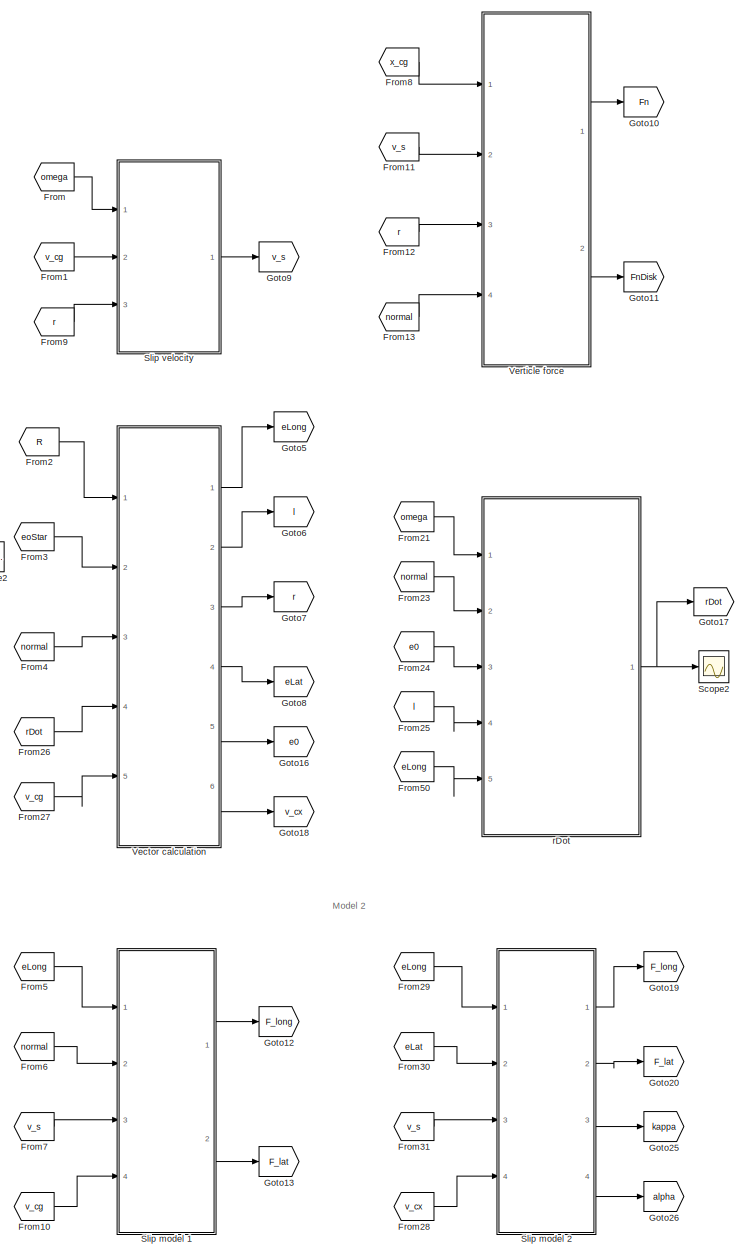
[diagram: Tire model Rear Wheel - part 1/3, center side, full height]
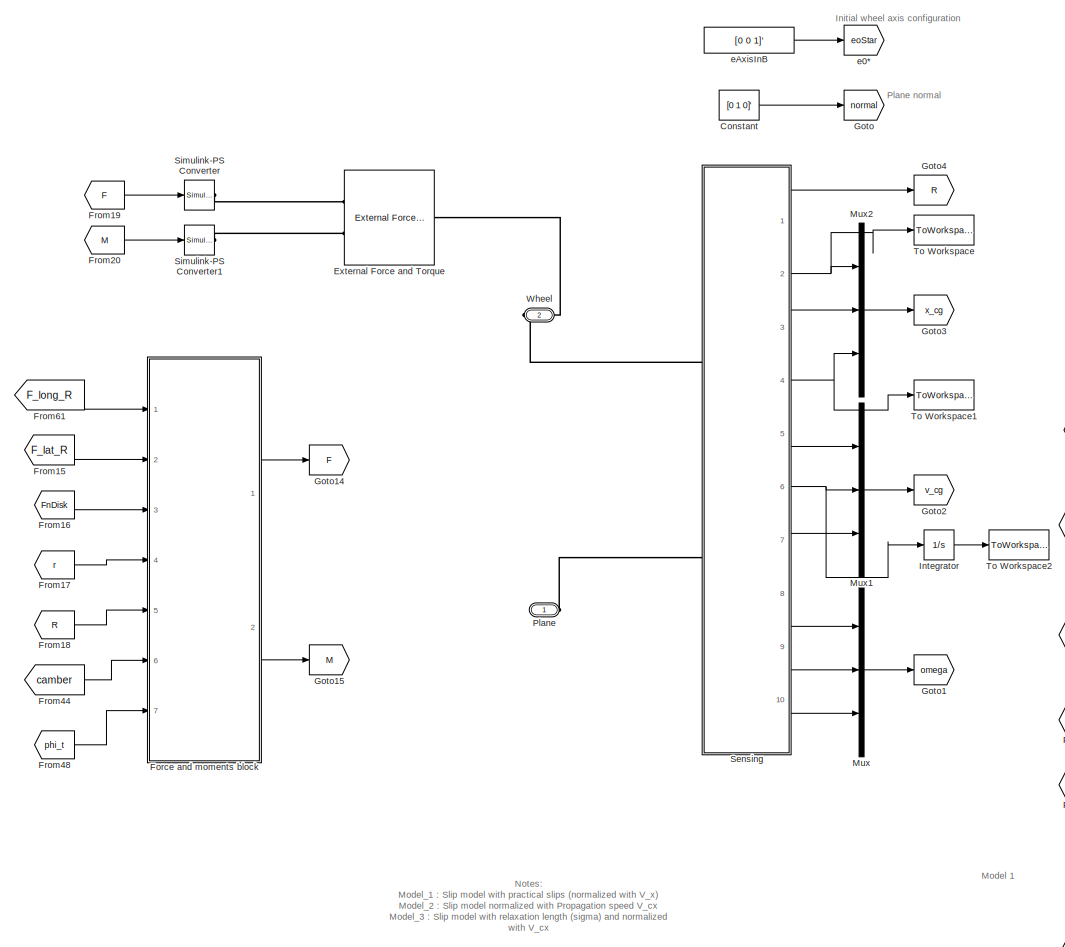
[diagram: Tire model Rear Wheel - part 2/3, left side, full height]
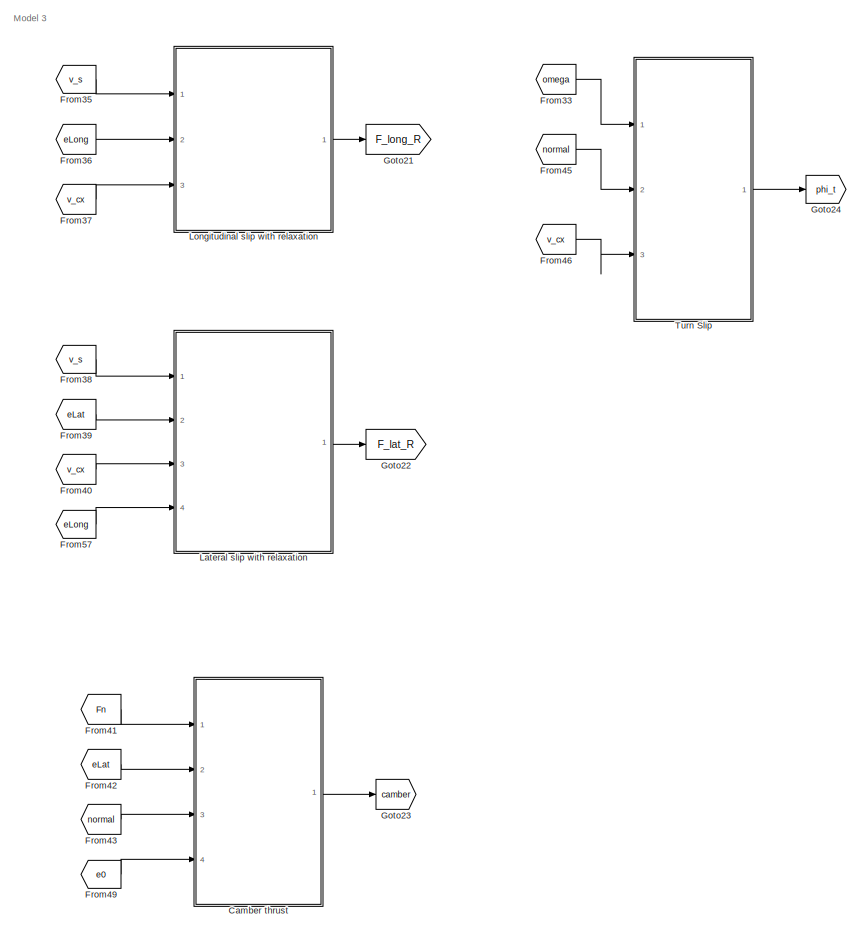
[diagram: Tire model Rear Wheel - part 3/3, middle right region]
BLOCK [SubSystem] Tire model Rear Wheel
  Ports = [0, 0, 0, 0, 0, 1, 1]
  RequestExecContextInheritance = off
  Variant = off
BLOCK [SubSystem] Tire model Rear Wheel/Camber thrust
  Ports = [4, 1]
  RequestExecContextInheritance = off
  Variant = off
BLOCK [Abs] Tire model Rear Wheel/Camber thrust/Abs
  SaturateOnIntegerOverflow = off
  ZeroCross = off
BLOCK [Reference] Tire model Rear Wheel/Camber thrust/Compare To Constant  REF=simulink/Logic and Bit
Operations/Compare
To Constant
  Ports = [1, 1]
  SourceBlock = simulink/Logic and Bit\nOperations/Compare\nTo Constant
  SourceProductBaseCode = SL
  SourceProductName = Simulink
  SourceType = Compare To Constant
BLOCK [Derivative] Tire model Rear Wheel/Camber thrust/Derivative
BLOCK [DotProduct] Tire model Rear Wheel/Camber thrust/Dot Product1
  OutDataTypeStr = Inherit: Inherit via internal rule
BLOCK [Inport] Tire model Rear Wheel/Camber thrust/Fn
  IconDisplay = Port number
BLOCK [Gain] Tire model Rear Wheel/Camber thrust/Gain
  Gain = 180/pi
  OutDataTypeStr = Inherit: Inherit via internal rule
  ParamDataTypeStr = Inherit: Inherit via internal rule
  SaturateOnIntegerOverflow = off
BLOCK [Gain] Tire model Rear Wheel/Camber thrust/Gain1
  Gain = -1
  OutDataTypeStr = Inherit: Inherit via internal rule
  ParamDataTypeStr = Inherit: Inherit via internal rule
  SaturateOnIntegerOverflow = off
BLOCK [Goto] Tire model Rear Wheel/Camber thrust/Goto
  GotoTag = lean_RW
  TagVisibility = global
BLOCK [Product] Tire model Rear Wheel/Camber thrust/Product
  InputSameDT = off
  OutDataTypeStr = Inherit: Inherit via internal rule
  Ports = [2, 1]
  RndMeth = Floor
  SaturateOnIntegerOverflow = off
BLOCK [Product] Tire model Rear Wheel/Camber thrust/Product1
  InputSameDT = off
  OutDataTypeStr = Inherit: Inherit via internal rule
  Ports = [2, 1]
  RndMeth = Floor
  SaturateOnIntegerOverflow = off
BLOCK [Scope] Tire model Rear Wheel/Camber thrust/Scope
  NumInputPorts = 1
  Ports = [1]
  ScopeSpecificationString = Simulink.scopes.TimeScopeBlockCfg('CurrentConfiguration', extmgr.ConfigurationSet(extmgr.Configuration('Core','General UI',true),extmgr.Configuration('Core','Source UI',true),extmgr.Configuration('Sources','WiredSimulink',true,'DataLoggingVariableName','ScopeData2'),extmgr.Configuration('Visuals','Time Domain',true,'SerializedDisplays',{struct('MinYLimReal','-0.07273','MaxYLimReal','0.07905','YLab...<+1413ch>
BLOCK [Scope] Tire model Rear Wheel/Camber thrust/Scope1
  NumInputPorts = 1
  Ports = [1]
  ScopeSpecificationString = Simulink.scopes.TimeScopeBlockCfg('CurrentConfiguration', extmgr.ConfigurationSet(extmgr.Configuration('Core','General UI',true),extmgr.Configuration('Core','Source UI',true),extmgr.Configuration('Sources','WiredSimulink',true,'DataLoggingVariableName','ScopeData3'),extmgr.Configuration('Visuals','Time Domain',true,'SerializedDisplays',{struct('MinYLimReal','-25.43511','MaxYLimReal','9.20191','YLa...<+1499ch>
BLOCK [Stop] Tire model Rear Wheel/Camber thrust/Stop Simulation
BLOCK [ToWorkspace] Tire model Rear Wheel/Camber thrust/To Workspace
  FixptAsFi = on
  MaxDataPoints = inf
  Ports = [1]
  SampleTime = -1
  Save2DSignal = 3-D array (concatenate along third dimension)
  SaveFormat = Timeseries
  VariableName = leanAngle
BLOCK [Outport] Tire model Rear Wheel/Camber thrust/camber
  IconDisplay = Port number
BLOCK [Inport] Tire model Rear Wheel/Camber thrust/e0
  IconDisplay = Port number
  Port = 4
BLOCK [Inport] Tire model Rear Wheel/Camber thrust/eLat
  IconDisplay = Port number
  Port = 2
BLOCK [Inport] Tire model Rear Wheel/Camber thrust/n
  IconDisplay = Port number
  Port = 3
BLOCK [Constant] Tire model Rear Wheel/Constant
  Value = [0 1 0]'
BLOCK [Reference] Tire model Rear Wheel/External Force and Torque  REF=sm_lib/Forces and
Torques/External Force
and Torque
  Ports = [0, 0, 0, 0, 0, 2, 1]
  SourceBlock = sm_lib/Forces and\nTorques/External Force\nand Torque
  SourceProductBaseCode = MS
  SourceProductName = Simscape Multibody
  SourceType = External Force\nand Torque
BLOCK [SubSystem] Tire model Rear Wheel/Force and moments block
  Ports = [7, 2]
  RequestExecContextInheritance = off
  Variant = off
BLOCK [Sum] Tire model Rear Wheel/Force and moments block/Add
  InputSameDT = off
  Inputs = 4
  OutDataTypeStr = Inherit: Inherit via internal rule
  Ports = [4, 1]
  SaturateOnIntegerOverflow = off
BLOCK [Sum] Tire model Rear Wheel/Force and moments block/Add1
  InputSameDT = off
  OutDataTypeStr = Inherit: Inherit via internal rule
  Ports = [2, 1]
  SaturateOnIntegerOverflow = off
BLOCK [Reference] Tire model Rear Wheel/Force and moments block/Cross Product  REF=vrlib/Utilities/Cross Product
  Ports = [2, 1]
  SourceBlock = vrlib/Utilities/Cross Product
  SourceProductBaseCode = VR
  SourceProductName = Simulink 3D Animation
  SourceType = Cross Product
BLOCK [Demux] Tire model Rear Wheel/Force and moments block/Demux
  DisplayOption = bar
  Outputs = 3
  Ports = [1, 3]
BLOCK [Demux] Tire model Rear Wheel/Force and moments block/Demux1
  DisplayOption = bar
  Outputs = 3
  Ports = [1, 3]
BLOCK [Outport] Tire model Rear Wheel/Force and moments block/F
  IconDisplay = Port number
BLOCK [Inport] Tire model Rear Wheel/Force and moments block/F_lat
  IconDisplay = Port number
  Port = 2
BLOCK [Inport] Tire model Rear Wheel/Force and moments block/F_long
  IconDisplay = Port number
BLOCK [Inport] Tire model Rear Wheel/Force and moments block/FnDisk
  IconDisplay = Port number
  Port = 3
BLOCK [Outport] Tire model Rear Wheel/Force and moments block/M
  IconDisplay = Port number
  Port = 2
BLOCK [Product] Tire model Rear Wheel/Force and moments block/Product
  InputSameDT = off
  Inputs = /*
  Multiplication = Matrix(*)
  OutDataTypeStr = Inherit: Inherit via internal rule
  Ports = [2, 1]
  RndMeth = Floor
  SaturateOnIntegerOverflow = off
BLOCK [Product] Tire model Rear Wheel/Force and moments block/Product1
  InputSameDT = off
  Inputs = /*
  Multiplication = Matrix(*)
  OutDataTypeStr = Inherit: Inherit via internal rule
  Ports = [2, 1]
  RndMeth = Floor
  SaturateOnIntegerOverflow = off
BLOCK [Inport] Tire model Rear Wheel/Force and moments block/R
  IconDisplay = Port number
  Port = 5
BLOCK [Scope] Tire model Rear Wheel/Force and moments block/Scope
  NumInputPorts = 3
  Ports = [3]
  ScopeSpecificationString = Simulink.scopes.TimeScopeBlockCfg('CurrentConfiguration', extmgr.ConfigurationSet(extmgr.Configuration('Core','General UI',true),extmgr.Configuration('Core','Source UI',true),extmgr.Configuration('Sources','WiredSimulink',true,'DataLoggingVariableName','ScopeData5'),extmgr.Configuration('Visuals','Time Domain',true,'SerializedDisplays',{struct('MinYLimReal','-42.28617','MaxYLimReal','22.96915','YL...<+2808ch>
BLOCK [Scope] Tire model Rear Wheel/Force and moments block/Scope1
  NumInputPorts = 3
  Ports = [3]
  ScopeSpecificationString = Simulink.scopes.TimeScopeBlockCfg('CurrentConfiguration', extmgr.ConfigurationSet(extmgr.Configuration('Core','General UI',true),extmgr.Configuration('Core','Source UI',true),extmgr.Configuration('Sources','WiredSimulink',true,'DataLoggingVariableName','ScopeData4'),extmgr.Configuration('Visuals','Time Domain',true,'SerializedDisplays',{struct('MinYLimReal','-1.00000','MaxYLimReal','1.00000','YLab...<+2803ch>
BLOCK [Scope] Tire model Rear Wheel/Force and moments block/Scope2
  NumInputPorts = 1
  Ports = [1]
  ScopeSpecificationString = Simulink.scopes.TimeScopeBlockCfg('CurrentConfiguration', extmgr.ConfigurationSet(extmgr.Configuration('Core','General UI',true),extmgr.Configuration('Core','Source UI',true),extmgr.Configuration('Sources','WiredSimulink',true,'DataLoggingVariableName','ScopeData2'),extmgr.Configuration('Visuals','Time Domain',true,'SerializedDisplays',{struct('MinYLimReal','13.13469','MaxYLimReal','27.22852','YLa...<+1474ch>
BLOCK [Inport] Tire model Rear Wheel/Force and moments block/camber
  IconDisplay = Port number
  Port = 6
BLOCK [Inport] Tire model Rear Wheel/Force and moments block/phi_t
  IconDisplay = Port number
  Port = 7
BLOCK [Inport] Tire model Rear Wheel/Force and moments block/r
  IconDisplay = Port number
  Port = 4
BLOCK [From] Tire model Rear Wheel/From
  GotoTag = omega
BLOCK [From] Tire model Rear Wheel/From1
  GotoTag = v_cg
BLOCK [From] Tire model Rear Wheel/From10
  Commented = on
  GotoTag = v_cg
BLOCK [From] Tire model Rear Wheel/From11
  GotoTag = v_s
BLOCK [From] Tire model Rear Wheel/From12
  GotoTag = r
BLOCK [From] Tire model Rear Wheel/From13
  GotoTag = normal
BLOCK [From] Tire model Rear Wheel/From15
  GotoTag = F_lat_R
BLOCK [From] Tire model Rear Wheel/From16
  GotoTag = FnDisk
BLOCK [From] Tire model Rear Wheel/From17
  GotoTag = r
BLOCK [From] Tire model Rear Wheel/From18
  GotoTag = R
BLOCK [From] Tire model Rear Wheel/From19
  GotoTag = F
BLOCK [From] Tire model Rear Wheel/From2
  GotoTag = R
BLOCK [From] Tire model Rear Wheel/From20
  GotoTag = M
BLOCK [From] Tire model Rear Wheel/From21
  GotoTag = omega
BLOCK [From] Tire model Rear Wheel/From23
  GotoTag = normal
BLOCK [From] Tire model Rear Wheel/From24
  GotoTag = e0
BLOCK [From] Tire model Rear Wheel/From25
  GotoTag = l
BLOCK [From] Tire model Rear Wheel/From26
  GotoTag = rDot
BLOCK [From] Tire model Rear Wheel/From27
  GotoTag = v_cg
BLOCK [From] Tire model Rear Wheel/From28
  GotoTag = v_cx
BLOCK [From] Tire model Rear Wheel/From29
  GotoTag = eLong
BLOCK [From] Tire model Rear Wheel/From3
  GotoTag = eoStar
BLOCK [From] Tire model Rear Wheel/From30
  GotoTag = eLat
BLOCK [From] Tire model Rear Wheel/From31
  GotoTag = v_s
BLOCK [From] Tire model Rear Wheel/From33
  GotoTag = omega
BLOCK [From] Tire model Rear Wheel/From35
  GotoTag = v_s
BLOCK [From] Tire model Rear Wheel/From36
  GotoTag = eLong
BLOCK [From] Tire model Rear Wheel/From37
  GotoTag = v_cx
BLOCK [From] Tire model Rear Wheel/From38
  GotoTag = v_s
BLOCK [From] Tire model Rear Wheel/From39
  GotoTag = eLat
BLOCK [From] Tire model Rear Wheel/From4
  GotoTag = normal
BLOCK [From] Tire model Rear Wheel/From40
  GotoTag = v_cx
BLOCK [From] Tire model Rear Wheel/From41
  GotoTag = Fn
BLOCK [From] Tire model Rear Wheel/From42
  GotoTag = eLat
BLOCK [From] Tire model Rear Wheel/From43
  GotoTag = normal
BLOCK [From] Tire model Rear Wheel/From44
  GotoTag = camber
BLOCK [From] Tire model Rear Wheel/From45
  GotoTag = normal
BLOCK [From] Tire model Rear Wheel/From46
  GotoTag = v_cx
BLOCK [From] Tire model Rear Wheel/From48
  GotoTag = phi_t
BLOCK [From] Tire model Rear Wheel/From49
  GotoTag = e0
BLOCK [From] Tire model Rear Wheel/From5
  Commented = on
  GotoTag = eLong
BLOCK [From] Tire model Rear Wheel/From50
  GotoTag = eLong
BLOCK [From] Tire model Rear Wheel/From57
  GotoTag = eLong
BLOCK [From] Tire model Rear Wheel/From6
  Commented = on
  GotoTag = normal
BLOCK [From] Tire model Rear Wheel/From61
  GotoTag = F_long_R
BLOCK [From] Tire model Rear Wheel/From7
  Commented = on
  GotoTag = v_s
BLOCK [From] Tire model Rear Wheel/From8
  GotoTag = x_cg
BLOCK [From] Tire model Rear Wheel/From9
  GotoTag = r
BLOCK [Goto] Tire model Rear Wheel/Goto
  GotoTag = normal
BLOCK [Goto] Tire model Rear Wheel/Goto1
  GotoTag = omega
BLOCK [Goto] Tire model Rear Wheel/Goto10
  GotoTag = Fn
BLOCK [Goto] Tire model Rear Wheel/Goto11
  GotoTag = FnDisk
BLOCK [Goto] Tire model Rear Wheel/Goto12
  Commented = on
  GotoTag = F_long
BLOCK [Goto] Tire model Rear Wheel/Goto13
  Commented = on
  GotoTag = F_lat
BLOCK [Goto] Tire model Rear Wheel/Goto14
  GotoTag = F
BLOCK [Goto] Tire model Rear Wheel/Goto15
  GotoTag = M
BLOCK [Goto] Tire model Rear Wheel/Goto16
  GotoTag = e0
BLOCK [Goto] Tire model Rear Wheel/Goto17
  GotoTag = rDot
BLOCK [Goto] Tire model Rear Wheel/Goto18
  GotoTag = v_cx
BLOCK [Goto] Tire model Rear Wheel/Goto19
  GotoTag = F_long
BLOCK [Goto] Tire model Rear Wheel/Goto2
  GotoTag = v_cg
BLOCK [Goto] Tire model Rear Wheel/Goto20
  GotoTag = F_lat
BLOCK [Goto] Tire model Rear Wheel/Goto21
  GotoTag = F_long_R
BLOCK [Goto] Tire model Rear Wheel/Goto22
  GotoTag = F_lat_R
BLOCK [Goto] Tire model Rear Wheel/Goto23
  GotoTag = camber
BLOCK [Goto] Tire model Rear Wheel/Goto24
  GotoTag = phi_t
BLOCK [Goto] Tire model Rear Wheel/Goto25
  GotoTag = kappa
BLOCK [Goto] Tire model Rear Wheel/Goto26
  GotoTag = alpha
BLOCK [Goto] Tire model Rear Wheel/Goto3
  GotoTag = x_cg
BLOCK [Goto] Tire model Rear Wheel/Goto4
  GotoTag = R
BLOCK [Goto] Tire model Rear Wheel/Goto5
  GotoTag = eLong
BLOCK [Goto] Tire model Rear Wheel/Goto6
  GotoTag = l
BLOCK [Goto] Tire model Rear Wheel/Goto7
  GotoTag = r
BLOCK [Goto] Tire model Rear Wheel/Goto8
  GotoTag = eLat
BLOCK [Goto] Tire model Rear Wheel/Goto9
  GotoTag = v_s
BLOCK [Integrator] Tire model Rear Wheel/Integrator
  Ports = [1, 1]
BLOCK [SubSystem] Tire model Rear Wheel/Lateral slip with relaxation
  Ports = [4, 1]
  RequestExecContextInheritance = off
  Variant = off
BLOCK [DotProduct] Tire model Rear Wheel/Lateral slip with relaxation/Dot Product
  OutDataTypeStr = Inherit: Inherit via internal rule
BLOCK [Outport] Tire model Rear Wheel/Lateral slip with relaxation/F_Lat
  IconDisplay = Port number
BLOCK [Gain] Tire model Rear Wheel/Lateral slip with relaxation/Gain
  Gain = 1/sigma
  OutDataTypeStr = Inherit: Inherit via internal rule
  ParamDataTypeStr = Inherit: Inherit via internal rule
  SaturateOnIntegerOverflow = off
BLOCK [Gain] Tire model Rear Wheel/Lateral slip with relaxation/Gain1
  Gain = -C_F_alpha
  OutDataTypeStr = Inherit: Inherit via internal rule
  ParamDataTypeStr = Inherit: Inherit via internal rule
  SaturateOnIntegerOverflow = off
BLOCK [Integrator] Tire model Rear Wheel/Lateral slip with relaxation/Integrator
  Ports = [1, 1]
BLOCK [SubSystem] Tire model Rear Wheel/Lateral slip with relaxation/MATLAB Function2
  Commented = through
  ErrorFcn = Stateflow.Translate.translate
  PermitHierarchicalResolution = ExplicitOnly
  Ports = [1, 1]
  RequestExecContextInheritance = off
  SFBlockType = MATLAB Function
  TreatAsAtomicUnit = on
  Variant = off
BLOCK [Demux] Tire model Rear Wheel/Lateral slip with relaxation/MATLAB Function2/ Demux 
  Outputs = 1
  Ports = [1, 1]
BLOCK [S-Function] Tire model Rear Wheel/Lateral slip with relaxation/MATLAB Function2/ SFunction 
  EnableBusSupport = on
  FunctionName = sf_sfun
  PortCounts = [1 2]
  Ports = [1, 2]
  SFcnIsStateOwnerBlock = off
  SFunctionDeploymentMode = off
  Tag = Stateflow S-Function BlueBike 9
BLOCK [Terminator] Tire model Rear Wheel/Lateral slip with relaxation/MATLAB Function2/ Terminator 
BLOCK [Outport] Tire model Rear Wheel/Lateral slip with relaxation/MATLAB Function2/s1
  IconDisplay = Port number
BLOCK [Inport] Tire model Rear Wheel/Lateral slip with relaxation/MATLAB Function2/s1 
  IconDisplay = Port number
BLOCK [Product] Tire model Rear Wheel/Lateral slip with relaxation/Product
  InputSameDT = off
  OutDataTypeStr = Inherit: Inherit via internal rule
  Ports = [2, 1]
  RndMeth = Floor
  SaturateOnIntegerOverflow = off
BLOCK [Product] Tire model Rear Wheel/Lateral slip with relaxation/Product1
  InputSameDT = off
  OutDataTypeStr = Inherit: Inherit via internal rule
  Ports = [2, 1]
  RndMeth = Floor
  SaturateOnIntegerOverflow = off
BLOCK [Scope] Tire model Rear Wheel/Lateral slip with relaxation/Scope
  NumInputPorts = 1
  Ports = [1]
  ScopeSpecificationString = Simulink.scopes.TimeScopeBlockCfg('CurrentConfiguration', extmgr.ConfigurationSet(extmgr.Configuration('Core','General UI',true),extmgr.Configuration('Core','Source UI',true),extmgr.Configuration('Sources','WiredSimulink',true,'DataLoggingVariableName','ScopeData4'),extmgr.Configuration('Visuals','Time Domain',true,'SerializedDisplays',{struct('MinYLimReal','-8.38765','MaxYLimReal','7.69064','YLab...<+1493ch>
BLOCK [Scope] Tire model Rear Wheel/Lateral slip with relaxation/Scope1
  NumInputPorts = 1
  Ports = [1]
  ScopeSpecificationString = Simulink.scopes.TimeScopeBlockCfg('CurrentConfiguration', extmgr.ConfigurationSet(extmgr.Configuration('Core','General UI',true),extmgr.Configuration('Core','Source UI',true),extmgr.Configuration('Sources','WiredSimulink',true,'DataLoggingVariableName','ScopeData3'),extmgr.Configuration('Visuals','Time Domain',true,'SerializedDisplays',{struct('MinYLimReal','-0.01504','MaxYLimReal','0.05412','YLab...<+1435ch>
BLOCK [Scope] Tire model Rear Wheel/Lateral slip with relaxation/Scope2
  NumInputPorts = 1
  Ports = [1]
  ScopeSpecificationString = Simulink.scopes.TimeScopeBlockCfg('CurrentConfiguration', extmgr.ConfigurationSet(extmgr.Configuration('Core','General UI',true),extmgr.Configuration('Core','Source UI',true),extmgr.Configuration('Sources','WiredSimulink',true,'DataLoggingVariableName','ScopeData2'),extmgr.Configuration('Visuals','Time Domain',true,'SerializedDisplays',{struct('MinYLimReal','-0.00018','MaxYLimReal','0.00002','YLab...<+1419ch>
BLOCK [Sum] Tire model Rear Wheel/Lateral slip with relaxation/Sum
  IconShape = round
  InputSameDT = off
  Inputs = |+-
  OutDataTypeStr = Inherit: Inherit via internal rule
  Ports = [2, 1]
  SaturateOnIntegerOverflow = off
BLOCK [Inport] Tire model Rear Wheel/Lateral slip with relaxation/eLat
  IconDisplay = Port number
  Port = 2
BLOCK [Inport] Tire model Rear Wheel/Lateral slip with relaxation/eLong
  IconDisplay = Port number
  Port = 4
BLOCK [Inport] Tire model Rear Wheel/Lateral slip with relaxation/v_cx
  IconDisplay = Port number
  Port = 3
BLOCK [Inport] Tire model Rear Wheel/Lateral slip with relaxation/v_s
  IconDisplay = Port number
BLOCK [SubSystem] Tire model Rear Wheel/Longitudinal slip with relaxation
  Ports = [3, 1]
  RequestExecContextInheritance = off
  Variant = off
BLOCK [DotProduct] Tire model Rear Wheel/Longitudinal slip with relaxation/Dot Product
  OutDataTypeStr = Inherit: Inherit via internal rule
BLOCK [Outport] Tire model Rear Wheel/Longitudinal slip with relaxation/F_Long
  IconDisplay = Port number
BLOCK [Gain] Tire model Rear Wheel/Longitudinal slip with relaxation/Gain
  Gain = 1/sigma
  OutDataTypeStr = Inherit: Inherit via internal rule
  ParamDataTypeStr = Inherit: Inherit via internal rule
  SaturateOnIntegerOverflow = off
BLOCK [Gain] Tire model Rear Wheel/Longitudinal slip with relaxation/Gain1
  Gain = -C_F_kappa
  OutDataTypeStr = Inherit: Inherit via internal rule
  ParamDataTypeStr = Inherit: Inherit via internal rule
  SaturateOnIntegerOverflow = off
BLOCK [Integrator] Tire model Rear Wheel/Longitudinal slip with relaxation/Integrator
  Ports = [1, 1]
BLOCK [SubSystem] Tire model Rear Wheel/Longitudinal slip with relaxation/MATLAB Function2
  Commented = through
  ErrorFcn = Stateflow.Translate.translate
  PermitHierarchicalResolution = ExplicitOnly
  Ports = [1, 1]
  RequestExecContextInheritance = off
  SFBlockType = MATLAB Function
  TreatAsAtomicUnit = on
  Variant = off
BLOCK [Demux] Tire model Rear Wheel/Longitudinal slip with relaxation/MATLAB Function2/ Demux 
  Outputs = 1
  Ports = [1, 1]
BLOCK [S-Function] Tire model Rear Wheel/Longitudinal slip with relaxation/MATLAB Function2/ SFunction 
  EnableBusSupport = on
  FunctionName = sf_sfun
  PortCounts = [1 2]
  Ports = [1, 2]
  SFcnIsStateOwnerBlock = off
  SFunctionDeploymentMode = off
  Tag = Stateflow S-Function BlueBike 10
BLOCK [Terminator] Tire model Rear Wheel/Longitudinal slip with relaxation/MATLAB Function2/ Terminator 
BLOCK [Outport] Tire model Rear Wheel/Longitudinal slip with relaxation/MATLAB Function2/s1
  IconDisplay = Port number
BLOCK [Inport] Tire model Rear Wheel/Longitudinal slip with relaxation/MATLAB Function2/s1 
  IconDisplay = Port number
BLOCK [Product] Tire model Rear Wheel/Longitudinal slip with relaxation/Product
  InputSameDT = off
  OutDataTypeStr = Inherit: Inherit via internal rule
  Ports = [2, 1]
  RndMeth = Floor
  SaturateOnIntegerOverflow = off
BLOCK [Product] Tire model Rear Wheel/Longitudinal slip with relaxation/Product1
  InputSameDT = off
  OutDataTypeStr = Inherit: Inherit via internal rule
  Ports = [2, 1]
  RndMeth = Floor
  SaturateOnIntegerOverflow = off
BLOCK [Sum] Tire model Rear Wheel/Longitudinal slip with relaxation/Sum
  IconShape = round
  InputSameDT = off
  Inputs = |+-
  OutDataTypeStr = Inherit: Inherit via internal rule
  Ports = [2, 1]
  SaturateOnIntegerOverflow = off
BLOCK [Inport] Tire model Rear Wheel/Longitudinal slip with relaxation/eLong
  IconDisplay = Port number
  Port = 2
BLOCK [Inport] Tire model Rear Wheel/Longitudinal slip with relaxation/v_cx
  IconDisplay = Port number
  Port = 3
BLOCK [Inport] Tire model Rear Wheel/Longitudinal slip with relaxation/v_s
  IconDisplay = Port number
BLOCK [Mux] Tire model Rear Wheel/Mux
  DisplayOption = bar
  Inputs = 3
  Ports = [3, 1]
BLOCK [Mux] Tire model Rear Wheel/Mux1
  DisplayOption = bar
  Inputs = 3
  Ports = [3, 1]
BLOCK [Mux] Tire model Rear Wheel/Mux2
  DisplayOption = bar
  Inputs = 3
  Ports = [3, 1]
BLOCK [PMIOPort] Tire model Rear Wheel/Plane
  Port = 1
  Side = Left
BLOCK [Scope] Tire model Rear Wheel/Scope2
  NumInputPorts = 1
  Ports = [1]
  ScopeSpecificationString = Simulink.scopes.TimeScopeBlockCfg('CurrentConfiguration', extmgr.ConfigurationSet(extmgr.Configuration('Core','General UI',true),extmgr.Configuration('Core','Source UI',true),extmgr.Configuration('Sources','WiredSimulink',true,'DataLoggingVariableName','ScopeData5'),extmgr.Configuration('Visuals','Time Domain',true,'SerializedDisplays',{struct('MinYLimReal','-14.12789','MaxYLimReal','1.56977','YLa...<+1367ch>
BLOCK [SubSystem] Tire model Rear Wheel/Sensing
  Ports = [0, 10, 0, 0, 0, 2]
  RequestExecContextInheritance = off
  Variant = off
BLOCK [Reference] Tire model Rear Wheel/Sensing/PS-Simulink Converter  REF=nesl_utility/PS-Simulink
Converter
  Ports = [0, 1, 0, 0, 0, 1]
  SourceBlock = nesl_utility/PS-Simulink\nConverter
  SourceProductBaseCode = SS
  SourceProductName = Simscape
  SourceType = PS-Simulink\nConverter
BLOCK [Reference] Tire model Rear Wheel/Sensing/PS-Simulink Converter1  REF=nesl_utility/PS-Simulink
Converter
  Ports = [0, 1, 0, 0, 0, 1]
  SourceBlock = nesl_utility/PS-Simulink\nConverter
  SourceProductBaseCode = SS
  SourceProductName = Simscape
  SourceType = PS-Simulink\nConverter
BLOCK [Reference] Tire model Rear Wheel/Sensing/PS-Simulink Converter2  REF=nesl_utility/PS-Simulink
Converter
  Ports = [0, 1, 0, 0, 0, 1]
  SourceBlock = nesl_utility/PS-Simulink\nConverter
  SourceProductBaseCode = SS
  SourceProductName = Simscape
  SourceType = PS-Simulink\nConverter
BLOCK [Reference] Tire model Rear Wheel/Sensing/PS-Simulink Converter3  REF=nesl_utility/PS-Simulink
Converter
  Ports = [0, 1, 0, 0, 0, 1]
  SourceBlock = nesl_utility/PS-Simulink\nConverter
  SourceProductBaseCode = SS
  SourceProductName = Simscape
  SourceType = PS-Simulink\nConverter
BLOCK [Reference] Tire model Rear Wheel/Sensing/PS-Simulink Converter4  REF=nesl_utility/PS-Simulink
Converter
  Ports = [0, 1, 0, 0, 0, 1]
  SourceBlock = nesl_utility/PS-Simulink\nConverter
  SourceProductBaseCode = SS
  SourceProductName = Simscape
  SourceType = PS-Simulink\nConverter
BLOCK [Reference] Tire model Rear Wheel/Sensing/PS-Simulink Converter5  REF=nesl_utility/PS-Simulink
Converter
  Ports = [0, 1, 0, 0, 0, 1]
  SourceBlock = nesl_utility/PS-Simulink\nConverter
  SourceProductBaseCode = SS
  SourceProductName = Simscape
  SourceType = PS-Simulink\nConverter
BLOCK [Reference] Tire model Rear Wheel/Sensing/PS-Simulink Converter6  REF=nesl_utility/PS-Simulink
Converter
  Ports = [0, 1, 0, 0, 0, 1]
  SourceBlock = nesl_utility/PS-Simulink\nConverter
  SourceProductBaseCode = SS
  SourceProductName = Simscape
  SourceType = PS-Simulink\nConverter
BLOCK [Reference] Tire model Rear Wheel/Sensing/PS-Simulink Converter7  REF=nesl_utility/PS-Simulink
Converter
  Ports = [0, 1, 0, 0, 0, 1]
  SourceBlock = nesl_utility/PS-Simulink\nConverter
  SourceProductBaseCode = SS
  SourceProductName = Simscape
  SourceType = PS-Simulink\nConverter
BLOCK [Reference] Tire model Rear Wheel/Sensing/PS-Simulink Converter8  REF=nesl_utility/PS-Simulink
Converter
  Ports = [0, 1, 0, 0, 0, 1]
  SourceBlock = nesl_utility/PS-Simulink\nConverter
  SourceProductBaseCode = SS
  SourceProductName = Simscape
  SourceType = PS-Simulink\nConverter
BLOCK [Reference] Tire model Rear Wheel/Sensing/PS-Simulink Converter9  REF=nesl_utility/PS-Simulink
Converter
  Ports = [0, 1, 0, 0, 0, 1]
  SourceBlock = nesl_utility/PS-Simulink\nConverter
  SourceProductBaseCode = SS
  SourceProductName = Simscape
  SourceType = PS-Simulink\nConverter
BLOCK [PMIOPort] Tire model Rear Wheel/Sensing/Plane
  Port = 2
  Side = Left
BLOCK [Outport] Tire model Rear Wheel/Sensing/R
  IconDisplay = Port number
BLOCK [Scope] Tire model Rear Wheel/Sensing/Scope
  NumInputPorts = 1
  Ports = [1]
  ScopeSpecificationString = Simulink.scopes.TimeScopeBlockCfg('CurrentConfiguration', extmgr.ConfigurationSet(extmgr.Configuration('Core','General UI',true),extmgr.Configuration('Core','Source UI',true),extmgr.Configuration('Sources','WiredSimulink',true,'DataLoggingVariableName','ScopeData1'),extmgr.Configuration('Visuals','Time Domain',true,'SerializedDisplays',{struct('MinYLimReal','-1.20654','MaxYLimReal','0.84244','YLab...<+1425ch>
BLOCK [Reference] Tire model Rear Wheel/Sensing/Transform Sensor  REF=sm_lib/Frames and
Transforms/Transform
Sensor
  Ports = [0, 0, 0, 0, 0, 1, 11]
  SourceBlock = sm_lib/Frames and\nTransforms/Transform\nSensor
  SourceProductBaseCode = MS
  SourceProductName = Simscape Multibody
  SourceType = Transform\nSensor
BLOCK [PMIOPort] Tire model Rear Wheel/Sensing/Wheel
  Port = 1
  Side = Left
BLOCK [Outport] Tire model Rear Wheel/Sensing/vx
  IconDisplay = Port number
  Port = 5
BLOCK [Outport] Tire model Rear Wheel/Sensing/vy
  IconDisplay = Port number
  Port = 6
BLOCK [Outport] Tire model Rear Wheel/Sensing/vz
  IconDisplay = Port number
  Port = 7
BLOCK [Outport] Tire model Rear Wheel/Sensing/wx
  IconDisplay = Port number
  Port = 8
BLOCK [Outport] Tire model Rear Wheel/Sensing/wy
  IconDisplay = Port number
  Port = 9
BLOCK [Outport] Tire model Rear Wheel/Sensing/wz
  IconDisplay = Port number
  Port = 10
BLOCK [Outport] Tire model Rear Wheel/Sensing/x
  IconDisplay = Port number
  Port = 2
BLOCK [Outport] Tire model Rear Wheel/Sensing/y
  IconDisplay = Port number
  Port = 3
BLOCK [Outport] Tire model Rear Wheel/Sensing/z
  IconDisplay = Port number
  Port = 4
BLOCK [Reference] Tire model Rear Wheel/Simulink-PS Converter  REF=nesl_utility/Simulink-PS
Converter
  Ports = [1, 0, 0, 0, 0, 0, 1]
  SourceBlock = nesl_utility/Simulink-PS\nConverter
  SourceProductBaseCode = SS
  SourceProductName = Simscape
  SourceType = Simulink-PS\nConverter
BLOCK [Reference] Tire model Rear Wheel/Simulink-PS Converter1  REF=nesl_utility/Simulink-PS
Converter
  Ports = [1, 0, 0, 0, 0, 0, 1]
  SourceBlock = nesl_utility/Simulink-PS\nConverter
  SourceProductBaseCode = SS
  SourceProductName = Simscape
  SourceType = Simulink-PS\nConverter
BLOCK [SubSystem] Tire model Rear Wheel/Slip model 1
  Commented = on
  Ports = [4, 2]
  RequestExecContextInheritance = off
  Variant = off
BLOCK [Constant] Tire model Rear Wheel/Slip model 1/Constant
  Value = epsilon
BLOCK [Constant] Tire model Rear Wheel/Slip model 1/Constant1
  Value = epsilon
BLOCK [Product] Tire model Rear Wheel/Slip model 1/Divide
  InputSameDT = off
  Inputs = */
  OutDataTypeStr = Inherit: Inherit via internal rule
  Ports = [2, 1]
  RndMeth = Floor
  SaturateOnIntegerOverflow = off
BLOCK [DotProduct] Tire model Rear Wheel/Slip model 1/Dot Product
  OutDataTypeStr = Inherit: Inherit via internal rule
BLOCK [DotProduct] Tire model Rear Wheel/Slip model 1/Dot Product1
  OutDataTypeStr = Inherit: Inherit via internal rule
BLOCK [DotProduct] Tire model Rear Wheel/Slip model 1/Dot Product2
  OutDataTypeStr = Inherit: Inherit via internal rule
BLOCK [DotProduct] Tire model Rear Wheel/Slip model 1/Dot Product3
  OutDataTypeStr = Inherit: Inherit via internal rule
BLOCK [Outport] Tire model Rear Wheel/Slip model 1/F_lat
  IconDisplay = Port number
  Port = 2
BLOCK [Outport] Tire model Rear Wheel/Slip model 1/F_long
  IconDisplay = Port number
BLOCK [Gain] Tire model Rear Wheel/Slip model 1/Gain
  Gain = -C_F_kappa
  OutDataTypeStr = Inherit: Inherit via internal rule
  ParamDataTypeStr = Inherit: Inherit via internal rule
  SaturateOnIntegerOverflow = off
BLOCK [Gain] Tire model Rear Wheel/Slip model 1/Gain1
  Gain = -C_F_alpha
  OutDataTypeStr = Inherit: Inherit via internal rule
  ParamDataTypeStr = Inherit: Inherit via internal rule
  SaturateOnIntegerOverflow = off
BLOCK [Product] Tire model Rear Wheel/Slip model 1/Product
  InputSameDT = off
  Inputs = */
  OutDataTypeStr = Inherit: Inherit via internal rule
  Ports = [2, 1]
  RndMeth = Floor
  SaturateOnIntegerOverflow = off
BLOCK [Product] Tire model Rear Wheel/Slip model 1/Product1
  InputSameDT = off
  OutDataTypeStr = Inherit: Inherit via internal rule
  Ports = [2, 1]
  RndMeth = Floor
  SaturateOnIntegerOverflow = off
BLOCK [Product] Tire model Rear Wheel/Slip model 1/Product2
  InputSameDT = off
  OutDataTypeStr = Inherit: Inherit via internal rule
  Ports = [2, 1]
  RndMeth = Floor
  SaturateOnIntegerOverflow = off
BLOCK [Scope] Tire model Rear Wheel/Slip model 1/Scope
  NumInputPorts = 1
  Ports = [1]
  ScopeSpecificationString = Simulink.scopes.TimeScopeBlockCfg('CurrentConfiguration', extmgr.ConfigurationSet(extmgr.Configuration('Core','General UI',true),extmgr.Configuration('Core','Source UI',true),extmgr.Configuration('Sources','WiredSimulink',true),extmgr.Configuration('Visuals','Time Domain',true,'SerializedDisplays',{struct('MinYLimReal','-0.00000000000000009','MaxYLimReal','0.00000000000000001','YLabelReal','','Min...<+1476ch>
BLOCK [Scope] Tire model Rear Wheel/Slip model 1/Scope1
  NumInputPorts = 1
  Ports = [1]
  ScopeSpecificationString = Simulink.scopes.TimeScopeBlockCfg('CurrentConfiguration', extmgr.ConfigurationSet(extmgr.Configuration('Core','General UI',true),extmgr.Configuration('Core','Source UI',true),extmgr.Configuration('Sources','WiredSimulink',true,'DataLoggingVariableName','ScopeData1'),extmgr.Configuration('Visuals','Time Domain',true,'SerializedDisplays',{struct('MinYLimReal','-0.02013','MaxYLimReal','0.00224','YLab...<+1418ch>
BLOCK [Sum] Tire model Rear Wheel/Slip model 1/Sum
  IconShape = round
  InputSameDT = off
  Inputs = |++
  OutDataTypeStr = Inherit: Inherit via internal rule
  Ports = [2, 1]
  SaturateOnIntegerOverflow = off
BLOCK [Sum] Tire model Rear Wheel/Slip model 1/Sum1
  IconShape = round
  InputSameDT = off
  Inputs = |++
  OutDataTypeStr = Inherit: Inherit via internal rule
  Ports = [2, 1]
  SaturateOnIntegerOverflow = off
BLOCK [Inport] Tire model Rear Wheel/Slip model 1/eLat
  IconDisplay = Port number
  Port = 2
BLOCK [InportShadow] Tire model Rear Wheel/Slip model 1/eLat1
  IconDisplay = Port number
  Port = 2
BLOCK [Inport] Tire model Rear Wheel/Slip model 1/eLong
  IconDisplay = Port number
BLOCK [InportShadow] Tire model Rear Wheel/Slip model 1/eLong1
  IconDisplay = Port number
BLOCK [Inport] Tire model Rear Wheel/Slip model 1/v_cg
  IconDisplay = Port number
  Port = 4
BLOCK [InportShadow] Tire model Rear Wheel/Slip model 1/v_cg1
  IconDisplay = Port number
  Port = 4
BLOCK [Inport] Tire model Rear Wheel/Slip model 1/v_s
  IconDisplay = Port number
  Port = 3
BLOCK [InportShadow] Tire model Rear Wheel/Slip model 1/v_s1
  IconDisplay = Port number
  Port = 3
BLOCK [SubSystem] Tire model Rear Wheel/Slip model 2
  Ports = [4, 4]
  RequestExecContextInheritance = off
  Variant = off
BLOCK [Product] Tire model Rear Wheel/Slip model 2/Divide
  InputSameDT = off
  Inputs = */
  OutDataTypeStr = Inherit: Inherit via internal rule
  Ports = [2, 1]
  RndMeth = Floor
  SaturateOnIntegerOverflow = off
BLOCK [DotProduct] Tire model Rear Wheel/Slip model 2/Dot Product
  OutDataTypeStr = Inherit: Inherit via internal rule
BLOCK [DotProduct] Tire model Rear Wheel/Slip model 2/Dot Product1
  OutDataTypeStr = Inherit: Inherit via internal rule
BLOCK [Outport] Tire model Rear Wheel/Slip model 2/F_lat
  IconDisplay = Port number
  Port = 2
BLOCK [Outport] Tire model Rear Wheel/Slip model 2/F_long
  IconDisplay = Port number
BLOCK [Gain] Tire model Rear Wheel/Slip model 2/Gain
  Gain = -C_F_kappa
  OutDataTypeStr = Inherit: Inherit via internal rule
  ParamDataTypeStr = Inherit: Inherit via internal rule
  SaturateOnIntegerOverflow = off
BLOCK [Gain] Tire model Rear Wheel/Slip model 2/Gain1
  Gain = -C_F_alpha
  OutDataTypeStr = Inherit: Inherit via internal rule
  ParamDataTypeStr = Inherit: Inherit via internal rule
  SaturateOnIntegerOverflow = off
BLOCK [SubSystem] Tire model Rear Wheel/Slip model 2/MATLAB Function1
  Commented = through
  ErrorFcn = Stateflow.Translate.translate
  PermitHierarchicalResolution = ExplicitOnly
  Ports = [1, 1]
  RequestExecContextInheritance = off
  SFBlockType = MATLAB Function
  TreatAsAtomicUnit = on
  Variant = off
BLOCK [Demux] Tire model Rear Wheel/Slip model 2/MATLAB Function1/ Demux 
  Outputs = 1
  Ports = [1, 1]
BLOCK [S-Function] Tire model Rear Wheel/Slip model 2/MATLAB Function1/ SFunction 
  EnableBusSupport = on
  FunctionName = sf_sfun
  PortCounts = [1 2]
  Ports = [1, 2]
  SFcnIsStateOwnerBlock = off
  SFunctionDeploymentMode = off
  Tag = Stateflow S-Function BlueBike 11
BLOCK [Terminator] Tire model Rear Wheel/Slip model 2/MATLAB Function1/ Terminator 
BLOCK [Outport] Tire model Rear Wheel/Slip model 2/MATLAB Function1/s1
  IconDisplay = Port number
BLOCK [Inport] Tire model Rear Wheel/Slip model 2/MATLAB Function1/s1 
  IconDisplay = Port number
BLOCK [SubSystem] Tire model Rear Wheel/Slip model 2/MATLAB Function2
  Commented = through
  ErrorFcn = Stateflow.Translate.translate
  PermitHierarchicalResolution = ExplicitOnly
  Ports = [1, 1]
  RequestExecContextInheritance = off
  SFBlockType = MATLAB Function
  TreatAsAtomicUnit = on
  Variant = off
BLOCK [Demux] Tire model Rear Wheel/Slip model 2/MATLAB Function2/ Demux 
  Outputs = 1
  Ports = [1, 1]
BLOCK [S-Function] Tire model Rear Wheel/Slip model 2/MATLAB Function2/ SFunction 
  EnableBusSupport = on
  FunctionName = sf_sfun
  PortCounts = [1 2]
  Ports = [1, 2]
  SFcnIsStateOwnerBlock = off
  SFunctionDeploymentMode = off
  Tag = Stateflow S-Function BlueBike 12
BLOCK [Terminator] Tire model Rear Wheel/Slip model 2/MATLAB Function2/ Terminator 
BLOCK [Outport] Tire model Rear Wheel/Slip model 2/MATLAB Function2/s1
  IconDisplay = Port number
BLOCK [Inport] Tire model Rear Wheel/Slip model 2/MATLAB Function2/s1 
  IconDisplay = Port number
BLOCK [Product] Tire model Rear Wheel/Slip model 2/Product
  InputSameDT = off
  Inputs = */
  OutDataTypeStr = Inherit: Inherit via internal rule
  Ports = [2, 1]
  RndMeth = Floor
  SaturateOnIntegerOverflow = off
BLOCK [Product] Tire model Rear Wheel/Slip model 2/Product1
  InputSameDT = off
  OutDataTypeStr = Inherit: Inherit via internal rule
  Ports = [2, 1]
  RndMeth = Floor
  SaturateOnIntegerOverflow = off
BLOCK [Product] Tire model Rear Wheel/Slip model 2/Product2
  InputSameDT = off
  OutDataTypeStr = Inherit: Inherit via internal rule
  Ports = [2, 1]
  RndMeth = Floor
  SaturateOnIntegerOverflow = off
BLOCK [Scope] Tire model Rear Wheel/Slip model 2/Scope
  NumInputPorts = 1
  Ports = [1]
  ScopeSpecificationString = Simulink.scopes.TimeScopeBlockCfg('CurrentConfiguration', extmgr.ConfigurationSet(extmgr.Configuration('Core','General UI',true),extmgr.Configuration('Core','Source UI',true),extmgr.Configuration('Sources','WiredSimulink',true),extmgr.Configuration('Visuals','Time Domain',true,'SerializedDisplays',{struct('MinYLimReal','-0.00224','MaxYLimReal','0.00455','YLabelReal','','MinYLimMag','0.00000','MaxY...<+1436ch>
BLOCK [Scope] Tire model Rear Wheel/Slip model 2/Scope1
  NumInputPorts = 1
  Ports = [1]
  ScopeSpecificationString = Simulink.scopes.TimeScopeBlockCfg('CurrentConfiguration', extmgr.ConfigurationSet(extmgr.Configuration('Core','General UI',true),extmgr.Configuration('Core','Source UI',true),extmgr.Configuration('Sources','WiredSimulink',true,'DataLoggingVariableName','ScopeData1'),extmgr.Configuration('Visuals','Time Domain',true,'SerializedDisplays',{struct('MinYLimReal','-0.01851','MaxYLimReal','0.0104','YLabe...<+1427ch>
BLOCK [Outport] Tire model Rear Wheel/Slip model 2/alpha
  IconDisplay = Port number
  Port = 4
BLOCK [Inport] Tire model Rear Wheel/Slip model 2/eLat
  IconDisplay = Port number
  Port = 2
BLOCK [InportShadow] Tire model Rear Wheel/Slip model 2/eLat1
  IconDisplay = Port number
  Port = 2
BLOCK [Inport] Tire model Rear Wheel/Slip model 2/eLong
  IconDisplay = Port number
BLOCK [InportShadow] Tire model Rear Wheel/Slip model 2/eLong1
  IconDisplay = Port number
BLOCK [Outport] Tire model Rear Wheel/Slip model 2/kappa
  IconDisplay = Port number
  Port = 3
BLOCK [Inport] Tire model Rear Wheel/Slip model 2/v_cx
  IconDisplay = Port number
  Port = 4
BLOCK [InportShadow] Tire model Rear Wheel/Slip model 2/v_cx1
  IconDisplay = Port number
  Port = 4
BLOCK [Inport] Tire model Rear Wheel/Slip model 2/v_s
  IconDisplay = Port number
  Port = 3
BLOCK [InportShadow] Tire model Rear Wheel/Slip model 2/v_s1
  IconDisplay = Port number
  Port = 3
BLOCK [SubSystem] Tire model Rear Wheel/Slip velocity
  Ports = [3, 1]
  RequestExecContextInheritance = off
  Variant = off
BLOCK [Sum] Tire model Rear Wheel/Slip velocity/Add
  InputSameDT = off
  OutDataTypeStr = Inherit: Inherit via internal rule
  Ports = [2, 1]
  SaturateOnIntegerOverflow = off
BLOCK [Reference] Tire model Rear Wheel/Slip velocity/Cross Product  REF=vrlib/Utilities/Cross Product
  Ports = [2, 1]
  SourceBlock = vrlib/Utilities/Cross Product
  SourceProductBaseCode = VR
  SourceProductName = Simulink 3D Animation
  SourceType = Cross Product
BLOCK [Scope] Tire model Rear Wheel/Slip velocity/Scope
  NumInputPorts = 1
  Ports = [1]
  ScopeSpecificationString = Simulink.scopes.TimeScopeBlockCfg('CurrentConfiguration', extmgr.ConfigurationSet(extmgr.Configuration('Core','General UI',true),extmgr.Configuration('Core','Source UI',true),extmgr.Configuration('Sources','WiredSimulink',true,'DataLoggingVariableName','ScopeData6'),extmgr.Configuration('Visuals','Time Domain',true,'SerializedDisplays',{struct('MinYLimReal','-8.22659','MaxYLimReal','0.91407','YLab...<+1451ch>
BLOCK [Inport] Tire model Rear Wheel/Slip velocity/omega
  IconDisplay = Port number
BLOCK [Inport] Tire model Rear Wheel/Slip velocity/r
  IconDisplay = Port number
  Port = 3
BLOCK [Inport] Tire model Rear Wheel/Slip velocity/v_cg
  IconDisplay = Port number
  Port = 2
BLOCK [Outport] Tire model Rear Wheel/Slip velocity/v_s
  IconDisplay = Port number
BLOCK [ToWorkspace] Tire model Rear Wheel/To Workspace
  FixptAsFi = on
  MaxDataPoints = inf
  Ports = [1]
  SampleTime = -1
  Save2DSignal = 3-D array (concatenate along third dimension)
  SaveFormat = Timeseries
  VariableName = xAxis
BLOCK [ToWorkspace] Tire model Rear Wheel/To Workspace1
  FixptAsFi = on
  MaxDataPoints = inf
  Ports = [1]
  SampleTime = -1
  Save2DSignal = 3-D array (concatenate along third dimension)
  SaveFormat = Timeseries
  VariableName = zAxis
BLOCK [ToWorkspace] Tire model Rear Wheel/To Workspace2
  FixptAsFi = on
  MaxDataPoints = inf
  Ports = [1]
  SampleTime = -1
  Save2DSignal = 3-D array (concatenate along third dimension)
  SaveFormat = Timeseries
  VariableName = OrientationAngle
BLOCK [SubSystem] Tire model Rear Wheel/Turn Slip
  Ports = [3, 1]
  RequestExecContextInheritance = off
  Variant = off
BLOCK [DotProduct] Tire model Rear Wheel/Turn Slip/Dot Product
  OutDataTypeStr = Inherit: Inherit via internal rule
BLOCK [Gain] Tire model Rear Wheel/Turn Slip/Gain
  Gain = 1/sigma
  OutDataTypeStr = Inherit: Inherit via internal rule
  ParamDataTypeStr = Inherit: Inherit via internal rule
  SaturateOnIntegerOverflow = off
BLOCK [Gain] Tire model Rear Wheel/Turn Slip/Gain1
  Gain = -CM_phi
  OutDataTypeStr = Inherit: Inherit via internal rule
  ParamDataTypeStr = Inherit: Inherit via internal rule
  SaturateOnIntegerOverflow = off
BLOCK [Gain] Tire model Rear Wheel/Turn Slip/Gain2
  Gain = -1
  OutDataTypeStr = Inherit: Inherit via internal rule
  ParamDataTypeStr = Inherit: Inherit via internal rule
  SaturateOnIntegerOverflow = off
BLOCK [Integrator] Tire model Rear Wheel/Turn Slip/Integrator
  Ports = [1, 1]
BLOCK [Product] Tire model Rear Wheel/Turn Slip/Product
  InputSameDT = off
  OutDataTypeStr = Inherit: Inherit via internal rule
  Ports = [2, 1]
  RndMeth = Floor
  SaturateOnIntegerOverflow = off
BLOCK [Product] Tire model Rear Wheel/Turn Slip/Product1
  InputSameDT = off
  OutDataTypeStr = Inherit: Inherit via internal rule
  Ports = [2, 1]
  RndMeth = Floor
  SaturateOnIntegerOverflow = off
BLOCK [Product] Tire model Rear Wheel/Turn Slip/Product2
  InputSameDT = off
  Inputs = */
  OutDataTypeStr = Inherit: Inherit via internal rule
  Ports = [2, 1]
  RndMeth = Floor
  SaturateOnIntegerOverflow = off
BLOCK [Scope] Tire model Rear Wheel/Turn Slip/Scope
  NumInputPorts = 1
  Ports = [1]
  ScopeSpecificationString = Simulink.scopes.TimeScopeBlockCfg('CurrentConfiguration', extmgr.ConfigurationSet(extmgr.Configuration('Core','General UI',true),extmgr.Configuration('Core','Source UI',true),extmgr.Configuration('Sources','WiredSimulink',true,'DataLoggingVariableName','ScopeData1'),extmgr.Configuration('Visuals','Time Domain',true,'SerializedDisplays',{struct('MinYLimReal','-0.01262','MaxYLimReal','0.00696','YLab...<+1418ch>
BLOCK [Scope] Tire model Rear Wheel/Turn Slip/Scope1
  NumInputPorts = 1
  Ports = [1]
  ScopeSpecificationString = Simulink.scopes.TimeScopeBlockCfg('CurrentConfiguration', extmgr.ConfigurationSet(extmgr.Configuration('Core','General UI',true),extmgr.Configuration('Core','Source UI',true),extmgr.Configuration('Sources','WiredSimulink',true,'DataLoggingVariableName','ScopeData2'),extmgr.Configuration('Visuals','Time Domain',true,'SerializedDisplays',{struct('MinYLimReal','-107.54508','MaxYLimReal','42.56786','Y...<+1434ch>
BLOCK [Sum] Tire model Rear Wheel/Turn Slip/Sum
  IconShape = round
  InputSameDT = off
  Inputs = |+-
  OutDataTypeStr = Inherit: Inherit via internal rule
  Ports = [2, 1]
  SaturateOnIntegerOverflow = off
BLOCK [Inport] Tire model Rear Wheel/Turn Slip/n
  IconDisplay = Port number
  Port = 2
BLOCK [Inport] Tire model Rear Wheel/Turn Slip/omega
  IconDisplay = Port number
BLOCK [Outport] Tire model Rear Wheel/Turn Slip/phi_t
  IconDisplay = Port number
BLOCK [Inport] Tire model Rear Wheel/Turn Slip/v_cx
  IconDisplay = Port number
  Port = 3
BLOCK [SubSystem] Tire model Rear Wheel/Vector calculation
  Ports = [5, 6]
  RequestExecContextInheritance = off
  Variant = off
BLOCK [Abs] Tire model Rear Wheel/Vector calculation/Abs
  SaturateOnIntegerOverflow = off
  ZeroCross = off
BLOCK [Constant] Tire model Rear Wheel/Vector calculation/Constant
  Value = epsilon
BLOCK [Constant] Tire model Rear Wheel/Vector calculation/Constant1
  Value = radius
BLOCK [Reference] Tire model Rear Wheel/Vector calculation/Cross Product  REF=vrlib/Utilities/Cross Product
  Ports = [2, 1]
  SourceBlock = vrlib/Utilities/Cross Product
  SourceProductBaseCode = VR
  SourceProductName = Simulink 3D Animation
  SourceType = Cross Product
BLOCK [Reference] Tire model Rear Wheel/Vector calculation/Cross Product1  REF=vrlib/Utilities/Cross Product
  Ports = [2, 1]
  SourceBlock = vrlib/Utilities/Cross Product
  SourceProductBaseCode = VR
  SourceProductName = Simulink 3D Animation
  SourceType = Cross Product
BLOCK [Reference] Tire model Rear Wheel/Vector calculation/Cross Product2  REF=vrlib/Utilities/Cross Product
  Ports = [2, 1]
  SourceBlock = vrlib/Utilities/Cross Product
  SourceProductBaseCode = VR
  SourceProductName = Simulink 3D Animation
  SourceType = Cross Product
BLOCK [Display] Tire model Rear Wheel/Vector calculation/Display
  Decimation = 1
  Ports = [1]
BLOCK [DotProduct] Tire model Rear Wheel/Vector calculation/Dot Product
  OutDataTypeStr = Inherit: Inherit via internal rule
BLOCK [Gain] Tire model Rear Wheel/Vector calculation/Gain1
  Commented = through
  Gain = -1
  OutDataTypeStr = Inherit: Inherit via internal rule
  ParamDataTypeStr = Inherit: Inherit via internal rule
  SaturateOnIntegerOverflow = off
BLOCK [Reference] Tire model Rear Wheel/Vector calculation/Normalize Vector  REF=vrlib/Utilities/Normalize Vector
  Ports = [1, 1]
  SourceBlock = vrlib/Utilities/Normalize Vector
  SourceProductBaseCode = VR
  SourceProductName = Simulink 3D Animation
  SourceType = Normalize Vector
BLOCK [Product] Tire model Rear Wheel/Vector calculation/Product
  InputSameDT = off
  Multiplication = Matrix(*)
  OutDataTypeStr = Inherit: Inherit via internal rule
  Ports = [2, 1]
  RndMeth = Floor
  SaturateOnIntegerOverflow = off
BLOCK [Product] Tire model Rear Wheel/Vector calculation/Product1
  InputSameDT = off
  OutDataTypeStr = Inherit: Inherit via internal rule
  Ports = [2, 1]
  RndMeth = Floor
  SaturateOnIntegerOverflow = off
BLOCK [Inport] Tire model Rear Wheel/Vector calculation/R
  IconDisplay = Port number
BLOCK [Scope] Tire model Rear Wheel/Vector calculation/Scope
  NumInputPorts = 1
  Ports = [1]
  ScopeSpecificationString = Simulink.scopes.TimeScopeBlockCfg('CurrentConfiguration', extmgr.ConfigurationSet(extmgr.Configuration('Core','General UI',true),extmgr.Configuration('Core','Source UI',true),extmgr.Configuration('Sources','WiredSimulink',true,'DataLoggingVariableName','ScopeData3'),extmgr.Configuration('Visuals','Time Domain',true,'SerializedDisplays',{struct('MinYLimReal','-0.0000000000000000000002','MaxYLimReal...<+1552ch>
BLOCK [Sum] Tire model Rear Wheel/Vector calculation/Sum
  IconShape = round
  InputSameDT = off
  Inputs = |+-
  OutDataTypeStr = Inherit: Inherit via internal rule
  Ports = [2, 1]
  SaturateOnIntegerOverflow = off
BLOCK [Sum] Tire model Rear Wheel/Vector calculation/Sum1
  IconShape = round
  InputSameDT = off
  Inputs = |++
  OutDataTypeStr = Inherit: Inherit via internal rule
  Ports = [2, 1]
  SaturateOnIntegerOverflow = off
BLOCK [Outport] Tire model Rear Wheel/Vector calculation/e0
  IconDisplay = Port number
  Port = 5
BLOCK [Inport] Tire model Rear Wheel/Vector calculation/e0star
  IconDisplay = Port number
  Port = 2
BLOCK [Outport] Tire model Rear Wheel/Vector calculation/eLat
  IconDisplay = Port number
  Port = 4
BLOCK [Outport] Tire model Rear Wheel/Vector calculation/eLong
  IconDisplay = Port number
BLOCK [Outport] Tire model Rear Wheel/Vector calculation/l
  IconDisplay = Port number
  Port = 2
BLOCK [Inport] Tire model Rear Wheel/Vector calculation/n
  IconDisplay = Port number
  Port = 3
BLOCK [Outport] Tire model Rear Wheel/Vector calculation/r
  IconDisplay = Port number
  Port = 3
BLOCK [Inport] Tire model Rear Wheel/Vector calculation/rDot
  IconDisplay = Port number
  Port = 4
BLOCK [Inport] Tire model Rear Wheel/Vector calculation/v_cg
  IconDisplay = Port number
  Port = 5
BLOCK [Outport] Tire model Rear Wheel/Vector calculation/v_cx
  IconDisplay = Port number
  Port = 6
BLOCK [SubSystem] Tire model Rear Wheel/Verticle force
  Ports = [4, 2]
  RequestExecContextInheritance = off
  Variant = off
BLOCK [Demux] Tire model Rear Wheel/Verticle force/Demux
  DisplayOption = bar
  Outputs = 3
  Ports = [1, 3]
BLOCK [DotProduct] Tire model Rear Wheel/Verticle force/Dot Product
  OutDataTypeStr = Inherit: Inherit via internal rule
BLOCK [DotProduct] Tire model Rear Wheel/Verticle force/Dot Product1
  OutDataTypeStr = Inherit: Inherit via internal rule
BLOCK [Outport] Tire model Rear Wheel/Verticle force/Fn
  IconDisplay = Port number
BLOCK [Outport] Tire model Rear Wheel/Verticle force/FnDisk
  IconDisplay = Port number
  Port = 2
BLOCK [Gain] Tire model Rear Wheel/Verticle force/Gain
  Gain = -k_contact
  OutDataTypeStr = Inherit: Inherit via internal rule
  ParamDataTypeStr = Inherit: Inherit via internal rule
  SaturateOnIntegerOverflow = off
BLOCK [Gain] Tire model Rear Wheel/Verticle force/Gain1
  Gain = -b_contact
  OutDataTypeStr = Inherit: Inherit via internal rule
  ParamDataTypeStr = Inherit: Inherit via internal rule
  SaturateOnIntegerOverflow = off
BLOCK [Gain] Tire model Rear Wheel/Verticle force/Gain2
  Commented = through
  Gain = -1
  OutDataTypeStr = Inherit: Inherit via internal rule
  ParamDataTypeStr = Inherit: Inherit via internal rule
  SaturateOnIntegerOverflow = off
BLOCK [Constant] Tire model Rear Wheel/Verticle force/Initial position of CP from ground
  Value = [0 0 0]'
BLOCK [Product] Tire model Rear Wheel/Verticle force/Product
  InputSameDT = off
  OutDataTypeStr = Inherit: Inherit via internal rule
  Ports = [2, 1]
  RndMeth = Floor
  SaturateOnIntegerOverflow = off
BLOCK [Scope] Tire model Rear Wheel/Verticle force/Scope
  NumInputPorts = 1
  Ports = [1]
  ScopeSpecificationString = Simulink.scopes.TimeScopeBlockCfg('CurrentConfiguration', extmgr.ConfigurationSet(extmgr.Configuration('Core','General UI',true),extmgr.Configuration('Core','Source UI',true),extmgr.Configuration('Sources','WiredSimulink',true,'DataLoggingVariableName','ScopeData1'),extmgr.Configuration('Visuals','Time Domain',true,'SerializedDisplays',{struct('MinYLimReal','0.2999925','MaxYLimReal','0.3000008','Y...<+1454ch>
BLOCK [Scope] Tire model Rear Wheel/Verticle force/Scope1
  NumInputPorts = 1
  Ports = [1]
  ScopeSpecificationString = Simulink.scopes.TimeScopeBlockCfg('CurrentConfiguration', extmgr.ConfigurationSet(extmgr.Configuration('Core','General UI',true),extmgr.Configuration('Core','Source UI',true),extmgr.Configuration('Sources','WiredSimulink',true,'DataLoggingVariableName','ScopeData1'),extmgr.Configuration('Visuals','Time Domain',true,'SerializedDisplays',{struct('MinYLimReal','-3.77479','MaxYLimReal','33.9731','YLab...<+1463ch>
BLOCK [Sum] Tire model Rear Wheel/Verticle force/Sum
  IconShape = round
  InputSameDT = off
  Inputs = |++
  OutDataTypeStr = Inherit: Inherit via internal rule
  Ports = [2, 1]
  SaturateOnIntegerOverflow = off
BLOCK [Sum] Tire model Rear Wheel/Verticle force/Sum1
  IconShape = round
  InputSameDT = off
  Inputs = |+-
  OutDataTypeStr = Inherit: Inherit via internal rule
  Ports = [2, 1]
  SaturateOnIntegerOverflow = off
BLOCK [Sum] Tire model Rear Wheel/Verticle force/Sum2
  IconShape = round
  InputSameDT = off
  OutDataTypeStr = Inherit: Inherit via internal rule
  Ports = [2, 1]
  SaturateOnIntegerOverflow = off
BLOCK [Inport] Tire model Rear Wheel/Verticle force/n
  IconDisplay = Port number
  Port = 4
BLOCK [Inport] Tire model Rear Wheel/Verticle force/r
  IconDisplay = Port number
  Port = 3
BLOCK [Inport] Tire model Rear Wheel/Verticle force/v_s
  IconDisplay = Port number
  Port = 2
BLOCK [Inport] Tire model Rear Wheel/Verticle force/x_cg
  IconDisplay = Port number
BLOCK [PMIOPort] Tire model Rear Wheel/Wheel
  Port = 2
  Side = Right
BLOCK [Goto] Tire model Rear Wheel/e0*
  GotoTag = eoStar
BLOCK [Constant] Tire model Rear Wheel/eAxisInB
  Value = [0 0 1]'
BLOCK [SubSystem] Tire model Rear Wheel/rDot
  Ports = [5, 1]
  RequestExecContextInheritance = off
  Variant = off
BLOCK [Constant] Tire model Rear Wheel/rDot/Constant
  Value = radiusRW
BLOCK [Reference] Tire model Rear Wheel/rDot/Cross Product  REF=vrlib/Utilities/Cross Product
  Ports = [2, 1]
  SourceBlock = vrlib/Utilities/Cross Product
  SourceProductBaseCode = VR
  SourceProductName = Simulink 3D Animation
  SourceType = Cross Product
BLOCK [Product] Tire model Rear Wheel/rDot/Divide
  InputSameDT = off
  Inputs = */
  OutDataTypeStr = Inherit: Inherit via internal rule
  Ports = [2, 1]
  RndMeth = Floor
  SaturateOnIntegerOverflow = off
BLOCK [DotProduct] Tire model Rear Wheel/rDot/Dot Product
  OutDataTypeStr = Inherit: Inherit via internal rule
BLOCK [DotProduct] Tire model Rear Wheel/rDot/Dot Product1
  OutDataTypeStr = Inherit: Inherit via internal rule
BLOCK [DotProduct] Tire model Rear Wheel/rDot/Dot Product2
  OutDataTypeStr = Inherit: Inherit via internal rule
BLOCK [Gain] Tire model Rear Wheel/rDot/Gain1
  Commented = on
  Gain = 180/pi
  OutDataTypeStr = Inherit: Inherit via internal rule
  ParamDataTypeStr = Inherit: Inherit via internal rule
  SaturateOnIntegerOverflow = off
BLOCK [SubSystem] Tire model Rear Wheel/rDot/MATLAB Function
  Commented = on
  ErrorFcn = Stateflow.Translate.translate
  PermitHierarchicalResolution = ExplicitOnly
  Ports = [5, 2]
  RequestExecContextInheritance = off
  SFBlockType = MATLAB Function
  TreatAsAtomicUnit = on
  Variant = off
BLOCK [Demux] Tire model Rear Wheel/rDot/MATLAB Function/ Demux 
  Outputs = 1
  Ports = [1, 1]
BLOCK [S-Function] Tire model Rear Wheel/rDot/MATLAB Function/ SFunction 
  EnableBusSupport = on
  FunctionName = sf_sfun
  Parameters = radiusRW
  PortCounts = [5 3]
  Ports = [5, 3]
  SFcnIsStateOwnerBlock = off
  SFunctionDeploymentMode = off
  Tag = Stateflow S-Function BlueBike 15
BLOCK [Terminator] Tire model Rear Wheel/rDot/MATLAB Function/ Terminator 
BLOCK [Inport] Tire model Rear Wheel/rDot/MATLAB Function/e_0
  IconDisplay = Port number
  Port = 3
BLOCK [Inport] Tire model Rear Wheel/rDot/MATLAB Function/e_long
  IconDisplay = Port number
  Port = 5
BLOCK [Inport] Tire model Rear Wheel/rDot/MATLAB Function/l
  IconDisplay = Port number
  Port = 4
BLOCK [Inport] Tire model Rear Wheel/rDot/MATLAB Function/n
  IconDisplay = Port number
  Port = 2
BLOCK [Inport] Tire model Rear Wheel/rDot/MATLAB Function/omega
  IconDisplay = Port number
BLOCK [Outport] Tire model Rear Wheel/rDot/MATLAB Function/rDot
  IconDisplay = Port number
BLOCK [Outport] Tire model Rear Wheel/rDot/MATLAB Function/sintheta
  IconDisplay = Port number
  Port = 2
BLOCK [SubSystem] Tire model Rear Wheel/rDot/MATLAB Function1
  Commented = on
  ErrorFcn = Stateflow.Translate.translate
  PermitHierarchicalResolution = ExplicitOnly
  Ports = [5, 2]
  RequestExecContextInheritance = off
  SFBlockType = MATLAB Function
  TreatAsAtomicUnit = on
  Variant = off
BLOCK [Demux] Tire model Rear Wheel/rDot/MATLAB Function1/ Demux 
  Outputs = 1
  Ports = [1, 1]
BLOCK [S-Function] Tire model Rear Wheel/rDot/MATLAB Function1/ SFunction 
  EnableBusSupport = on
  FunctionName = sf_sfun
  PortCounts = [5 3]
  Ports = [5, 3]
  SFcnIsStateOwnerBlock = off
  SFunctionDeploymentMode = off
  Tag = Stateflow S-Function BlueBike 16
BLOCK [Terminator] Tire model Rear Wheel/rDot/MATLAB Function1/ Terminator 
BLOCK [Inport] Tire model Rear Wheel/rDot/MATLAB Function1/e_0
  IconDisplay = Port number
  Port = 3
BLOCK [Inport] Tire model Rear Wheel/rDot/MATLAB Function1/e_long
  IconDisplay = Port number
  Port = 5
BLOCK [Outport] Tire model Rear Wheel/rDot/MATLAB Function1/gamma
  IconDisplay = Port number
  Port = 2
BLOCK [Inport] Tire model Rear Wheel/rDot/MATLAB Function1/l
  IconDisplay = Port number
  Port = 4
BLOCK [Inport] Tire model Rear Wheel/rDot/MATLAB Function1/n
  IconDisplay = Port number
  Port = 2
BLOCK [Inport] Tire model Rear Wheel/rDot/MATLAB Function1/omega
  IconDisplay = Port number
BLOCK [Outport] Tire model Rear Wheel/rDot/MATLAB Function1/rDot
  IconDisplay = Port number
BLOCK [Product] Tire model Rear Wheel/rDot/Product
  InputSameDT = off
  OutDataTypeStr = Inherit: Inherit via internal rule
  Ports = [2, 1]
  RndMeth = Floor
  SaturateOnIntegerOverflow = off
BLOCK [Product] Tire model Rear Wheel/rDot/Product1
  InputSameDT = off
  OutDataTypeStr = Inherit: Inherit via internal rule
  Ports = [2, 1]
  RndMeth = Floor
  SaturateOnIntegerOverflow = off
BLOCK [Scope] Tire model Rear Wheel/rDot/Scope1
  Commented = on
  NumInputPorts = 1
  Ports = [1]
  ScopeSpecificationString = Simulink.scopes.TimeScopeBlockCfg('CurrentConfiguration', extmgr.ConfigurationSet(extmgr.Configuration('Core','General UI',true),extmgr.Configuration('Core','Source UI',true),extmgr.Configuration('Sources','WiredSimulink',true,'DataLoggingVariableName','ScopeData5'),extmgr.Configuration('Visuals','Time Domain',true,'SerializedDisplays',{struct('MinYLimReal','-0.00151','MaxYLimReal','0.01347','YLab...<+1408ch>
BLOCK [Scope] Tire model Rear Wheel/rDot/Scope2
  Commented = on
  NumInputPorts = 1
  Ports = [1]
  ScopeSpecificationString = Simulink.scopes.TimeScopeBlockCfg('CurrentConfiguration', extmgr.ConfigurationSet(extmgr.Configuration('Core','General UI',true),extmgr.Configuration('Core','Source UI',true),extmgr.Configuration('Sources','WiredSimulink',true,'DataLoggingVariableName','ScopeData4'),extmgr.Configuration('Visuals','Time Domain',true,'SerializedDisplays',{struct('MinYLimReal','-0.00504','MaxYLimReal','0.04489','YLab...<+1410ch>
BLOCK [Scope] Tire model Rear Wheel/rDot/Scope4
  Commented = on
  NumInputPorts = 1
  Ports = [1]
  ScopeSpecificationString = Simulink.scopes.TimeScopeBlockCfg('CurrentConfiguration', extmgr.ConfigurationSet(extmgr.Configuration('Core','General UI',true),extmgr.Configuration('Core','Source UI',true),extmgr.Configuration('Sources','WiredSimulink',true,'DataLoggingVariableName','ScopeData7'),extmgr.Configuration('Visuals','Time Domain',true,'SerializedDisplays',{struct('MinYLimReal','-0.05773','MaxYLimReal','0.51433','YLab...<+1393ch>
BLOCK [Scope] Tire model Rear Wheel/rDot/Scope5
  Commented = on
  NumInputPorts = 1
  Ports = [1]
  ScopeSpecificationString = Simulink.scopes.TimeScopeBlockCfg('CurrentConfiguration', extmgr.ConfigurationSet(extmgr.Configuration('Core','General UI',true),extmgr.Configuration('Core','Source UI',true),extmgr.Configuration('Sources','WiredSimulink',true,'DataLoggingVariableName','ScopeData8'),extmgr.Configuration('Visuals','Time Domain',true,'SerializedDisplays',{struct('MinYLimReal','89.48574','MaxYLimReal','90.05714','YLa...<+1399ch>
BLOCK [Scope] Tire model Rear Wheel/rDot/Scope6
  Commented = on
  NumInputPorts = 1
  Ports = [1]
  ScopeSpecificationString = Simulink.scopes.TimeScopeBlockCfg('CurrentConfiguration', extmgr.ConfigurationSet(extmgr.Configuration('Core','General UI',true),extmgr.Configuration('Core','Source UI',true),extmgr.Configuration('Sources','WiredSimulink',true,'DataLoggingVariableName','ScopeData9'),extmgr.Configuration('Visuals','Time Domain',true,'SerializedDisplays',{struct('MinYLimReal','89.99881','MaxYLimReal','90.00013','YLa...<+1397ch>
BLOCK [Sqrt] Tire model Rear Wheel/rDot/Sqrt
BLOCK [Sum] Tire model Rear Wheel/rDot/Sum
  Commented = on
  IconShape = round
  InputSameDT = off
  Inputs = |++
  OutDataTypeStr = Inherit: Inherit via internal rule
  Ports = [2, 1]
  SaturateOnIntegerOverflow = off
BLOCK [Trigonometry] Tire model Rear Wheel/rDot/Trigonometric Function
  Commented = on
  Operator = asin
  Ports = [1, 1]
BLOCK [Inport] Tire model Rear Wheel/rDot/e0
  IconDisplay = Port number
  Port = 3
BLOCK [InportShadow] Tire model Rear Wheel/rDot/e01
  IconDisplay = Port number
  Port = 3
BLOCK [Inport] Tire model Rear Wheel/rDot/eLong
  IconDisplay = Port number
  Port = 5
BLOCK [Inport] Tire model Rear Wheel/rDot/l
  IconDisplay = Port number
  Port = 4
BLOCK [Inport] Tire model Rear Wheel/rDot/n
  IconDisplay = Port number
  Port = 2
BLOCK [Inport] Tire model Rear Wheel/rDot/omega
  IconDisplay = Port number
BLOCK [Outport] Tire model Rear Wheel/rDot/rDot
  IconDisplay = Port number
BLOCK [ToWorkspace] To Workspace
  FixptAsFi = on
  MaxDataPoints = inf
  Ports = [1]
  SampleTime = -1
  Save2DSignal = 3-D array (concatenate along third dimension)
  SaveFormat = Timeseries
  VariableName = RWVel
BLOCK [ToWorkspace] To Workspace1
  FixptAsFi = on
  MaxDataPoints = inf
  Ports = [1]
  SampleTime = -1
  Save2DSignal = 3-D array (concatenate along third dimension)
  SaveFormat = Timeseries
  VariableName = steerRate
BLOCK [ToWorkspace] To Workspace2
  FixptAsFi = on
  MaxDataPoints = inf
  Ports = [1]
  SampleTime = -1
  Save2DSignal = 3-D array (concatenate along third dimension)
  SaveFormat = Timeseries
  VariableName = steerAngle
BLOCK [ToWorkspace] To Workspace3
  FixptAsFi = on
  MaxDataPoints = inf
  Ports = [1]
  SampleTime = -1
  Save2DSignal = 3-D array (concatenate along third dimension)
  SaveFormat = Timeseries
  VariableName = leanRate
BLOCK [Reference] World Frame  REF=sm_lib/Frames and
Transforms/World Frame
  Ports = [0, 0, 0, 0, 0, 0, 1]
  SourceBlock = sm_lib/Frames and\nTransforms/World Frame
  SourceProductBaseCode = MS
  SourceProductName = Simscape Multibody
  SourceType = World Frame
BLOCK [Reference] plane  REF=sm_lib/Body Elements/Solid
  Ports = [0, 0, 0, 0, 0, 0, 1]
  SourceBlock = sm_lib/Body Elements/Solid
  SourceProductBaseCode = MS
  SourceProductName = Simscape Multibody
  SourceType = Solid
ANNOTATION (root): Notes: Scenario_1: Initial steering angle at zero speed Scenario_2: Simulating perturbation on steering Scenario_3: Simulating lateral perturbation Scenario_4: Simulating motion at higher speeds (> capsize speed), with and without Lateral perturbation
ANNOTATION (root): Results
ANNOTATION Tire model Front Wheel: Plane normal
ANNOTATION Tire model Front Wheel: Initial wheel axis configuration
ANNOTATION Tire model Front Wheel: Notes: Model_1 : Slip model with practical slips (normalized with V_x) Model_2 : Slip model normalized with Propagation speed V_cx Model_3 : Slip model with relaxation length (sigma) and normalized with V_cx
ANNOTATION Tire model Front Wheel: Model 1
ANNOTATION Tire model Front Wheel: Model 2
ANNOTATION Tire model Front Wheel: Model 3
ANNOTATION Tire model Front Wheel/Slip model 1: Lateral slip
ANNOTATION Tire model Front Wheel/Slip model 1: Longitudinal Slip
ANNOTATION Tire model Front Wheel/Slip model 2: Lateral slip
ANNOTATION Tire model Front Wheel/Slip model 2: Longitudinal Slip
ANNOTATION Tire model Front Wheel/Vector calculation: Defining propagation velocity
ANNOTATION Tire model Front Wheel/Vector calculation: Defining wheel geometry
ANNOTATION Tire model Front Wheel/Vector calculation: eLat is along negative Z
ANNOTATION Tire model Rear Wheel: Plane normal
ANNOTATION Tire model Rear Wheel: Initial wheel axis configuration
ANNOTATION Tire model Rear Wheel: Notes: Model_1 : Slip model with practical slips (normalized with V_x) Model_2 : Slip model normalized with Propagation speed V_cx Model_3 : Slip model with relaxation length (sigma) and normalized with V_cx
ANNOTATION Tire model Rear Wheel: Model 1
ANNOTATION Tire model Rear Wheel: Model 2
ANNOTATION Tire model Rear Wheel: Model 3
ANNOTATION Tire model Rear Wheel/Lateral slip with relaxation: Noise Filter
ANNOTATION Tire model Rear Wheel/Slip model 1: Lateral slip
ANNOTATION Tire model Rear Wheel/Slip model 1: Longitudinal Slip
ANNOTATION Tire model Rear Wheel/Slip model 2: Lateral slip
ANNOTATION Tire model Rear Wheel/Slip model 2: Longitudinal Slip
ANNOTATION Tire model Rear Wheel/Vector calculation: Defining propagation velocity
ANNOTATION Tire model Rear Wheel/Vector calculation: Defining wheel geometry
ANNOTATION Tire model Rear Wheel/Vector calculation: eLat is along negative Z
LINE Discrete Impulse1:1 -> Gain3:1
LINE Discrete Impulse:1 -> Gain5:1
LINE From1:1 -> Scope:6
LINE From2:1 -> Scope:4
LINE From3:1 -> Scope:2
LINE From4:1 -> Scope:3
LINE From5:1 -> Gain4:1
LINE From6:1 -> Scope:5
LINE From:1 -> Gain2:1
NET Gain1:1 -> Goto1:1, To Workspace2:1
NET Gain2:1 -> Scope:1, To Workspace:1
LINE Gain3:1 -> Simulink-PS Converter1:1
LINE Gain4:1 -> Scope1:1
NET Gain5:1 -> Goto2:1, Steering Head:1
LINE PS-Simulink Converter2:1 -> Goto:1
LINE PS-Simulink Converter3:1 -> Goto4:1
NET PS-Simulink Converter:1 -> Goto6:1, To Workspace3:1
LINE Rear Frame/From:1 -> Rear Frame/Gain:1
LINE Rear Frame/Gain:1 -> Rear Frame/Simulink-PS Converter:1
LINE Steering Head/PS-Simulink Converter1:1 -> Steering Head/delta:1
LINE Steering Head/PS-Simulink Converter4:1 -> Steering Head/deltaDot:1
LINE Steering Head/Torque Input:1 -> Steering Head/Simulink-PS Converter:1
NET Steering Head:1 -> Goto5:1, To Workspace1:1
LINE Steering Head:2 -> Gain1:1
LINE Tire model Front Wheel/Camber thrust/Dot Product1:1 -> Tire model Front Wheel/Camber thrust/Product:2
LINE Tire model Front Wheel/Camber thrust/Fn:1 -> Tire model Front Wheel/Camber thrust/Product:1
NET Tire model Front Wheel/Camber thrust/Product1:1 -> Tire model Front Wheel/Camber thrust/Scope1:1, Tire model Front Wheel/Camber thrust/camber:1
LINE Tire model Front Wheel/Camber thrust/Product:1 -> Tire model Front Wheel/Camber thrust/Product1:1
LINE Tire model Front Wheel/Camber thrust/e0:1 -> Tire model Front Wheel/Camber thrust/Dot Product1:2
LINE Tire model Front Wheel/Camber thrust/eLat:1 -> Tire model Front Wheel/Camber thrust/Product1:2
LINE Tire model Front Wheel/Camber thrust/n:1 -> Tire model Front Wheel/Camber thrust/Dot Product1:1
LINE Tire model Front Wheel/Camber thrust:1 -> Tire model Front Wheel/Goto23:1
LINE Tire model Front Wheel/Constant:1 -> Tire model Front Wheel/Goto:1
LINE Tire model Front Wheel/Force and moments block/Add1:1 -> Tire model Front Wheel/Force and moments block/Product1:2
NET Tire model Front Wheel/Force and moments block/Add:1 -> Tire model Front Wheel/Force and moments block/Cross Product:2, Tire model Front Wheel/Force and moments block/Product:2
LINE Tire model Front Wheel/Force and moments block/Cross Product:1 -> Tire model Front Wheel/Force and moments block/Add1:1
LINE Tire model Front Wheel/Force and moments block/Demux1:1 -> Tire model Front Wheel/Force and moments block/Scope1:1
LINE Tire model Front Wheel/Force and moments block/Demux1:2 -> Tire model Front Wheel/Force and moments block/Scope1:2
LINE Tire model Front Wheel/Force and moments block/Demux1:3 -> Tire model Front Wheel/Force and moments block/Scope1:3
LINE Tire model Front Wheel/Force and moments block/Demux:1 -> Tire model Front Wheel/Force and moments block/Scope:1
LINE Tire model Front Wheel/Force and moments block/Demux:2 -> Tire model Front Wheel/Force and moments block/Scope:2
LINE Tire model Front Wheel/Force and moments block/Demux:3 -> Tire model Front Wheel/Force and moments block/Scope:3
LINE Tire model Front Wheel/Force and moments block/F_lat:1 -> Tire model Front Wheel/Force and moments block/Add:3
LINE Tire model Front Wheel/Force and moments block/F_long:1 -> Tire model Front Wheel/Force and moments block/Add:2
LINE Tire model Front Wheel/Force and moments block/FnDisk:1 -> Tire model Front Wheel/Force and moments block/Add:1
NET Tire model Front Wheel/Force and moments block/Product1:1 -> Tire model Front Wheel/Force and moments block/Demux:1, Tire model Front Wheel/Force and moments block/M:1
NET Tire model Front Wheel/Force and moments block/Product:1 -> Tire model Front Wheel/Force and moments block/Demux1:1, Tire model Front Wheel/Force and moments block/F:1
NET Tire model Front Wheel/Force and moments block/R:1 -> Tire model Front Wheel/Force and moments block/Product1:1, Tire model Front Wheel/Force and moments block/Product:1
LINE Tire model Front Wheel/Force and moments block/camber:1 -> Tire model Front Wheel/Force and moments block/Add:4
LINE Tire model Front Wheel/Force and moments block/phi_t:1 -> Tire model Front Wheel/Force and moments block/Add1:2
LINE Tire model Front Wheel/Force and moments block/r:1 -> Tire model Front Wheel/Force and moments block/Cross Product:1
LINE Tire model Front Wheel/Force and moments block:1 -> Tire model Front Wheel/Goto14:1
LINE Tire model Front Wheel/Force and moments block:2 -> Tire model Front Wheel/Goto15:1
LINE Tire model Front Wheel/From10:1 -> Tire model Front Wheel/Slip model 1:4
LINE Tire model Front Wheel/From11:1 -> Tire model Front Wheel/Verticle force:2
LINE Tire model Front Wheel/From12:1 -> Tire model Front Wheel/Verticle force:3
LINE Tire model Front Wheel/From13:1 -> Tire model Front Wheel/Verticle force:4
LINE Tire model Front Wheel/From15:1 -> Tire model Front Wheel/Force and moments block:2
LINE Tire model Front Wheel/From16:1 -> Tire model Front Wheel/Force and moments block:3
LINE Tire model Front Wheel/From17:1 -> Tire model Front Wheel/Force and moments block:4
LINE Tire model Front Wheel/From18:1 -> Tire model Front Wheel/Force and moments block:5
LINE Tire model Front Wheel/From19:1 -> Tire model Front Wheel/Simulink-PS Converter:1
LINE Tire model Front Wheel/From1:1 -> Tire model Front Wheel/Slip velocity:2
LINE Tire model Front Wheel/From20:1 -> Tire model Front Wheel/Simulink-PS Converter1:1
LINE Tire model Front Wheel/From21:1 -> Tire model Front Wheel/rDot:1
LINE Tire model Front Wheel/From23:1 -> Tire model Front Wheel/rDot:2
LINE Tire model Front Wheel/From24:1 -> Tire model Front Wheel/rDot:3
LINE Tire model Front Wheel/From25:1 -> Tire model Front Wheel/rDot:4
LINE Tire model Front Wheel/From26:1 -> Tire model Front Wheel/Vector calculation:4
LINE Tire model Front Wheel/From27:1 -> Tire model Front Wheel/Vector calculation:5
LINE Tire model Front Wheel/From28:1 -> Tire model Front Wheel/Slip model 2:4
LINE Tire model Front Wheel/From29:1 -> Tire model Front Wheel/Slip model 2:1
LINE Tire model Front Wheel/From2:1 -> Tire model Front Wheel/Vector calculation:1
LINE Tire model Front Wheel/From30:1 -> Tire model Front Wheel/Slip model 2:2
LINE Tire model Front Wheel/From31:1 -> Tire model Front Wheel/Slip model 2:3
LINE Tire model Front Wheel/From33:1 -> Tire model Front Wheel/Turn Slip:1
LINE Tire model Front Wheel/From35:1 -> Tire model Front Wheel/Longitudinal slip with relaxation:1
LINE Tire model Front Wheel/From36:1 -> Tire model Front Wheel/Longitudinal slip with relaxation:2
LINE Tire model Front Wheel/From37:1 -> Tire model Front Wheel/Longitudinal slip with relaxation:3
LINE Tire model Front Wheel/From38:1 -> Tire model Front Wheel/Lateral slip with relaxation:1
LINE Tire model Front Wheel/From39:1 -> Tire model Front Wheel/Lateral slip with relaxation:2
LINE Tire model Front Wheel/From3:1 -> Tire model Front Wheel/Vector calculation:2
LINE Tire model Front Wheel/From40:1 -> Tire model Front Wheel/Lateral slip with relaxation:3
LINE Tire model Front Wheel/From41:1 -> Tire model Front Wheel/Camber thrust:1
LINE Tire model Front Wheel/From42:1 -> Tire model Front Wheel/Camber thrust:2
LINE Tire model Front Wheel/From43:1 -> Tire model Front Wheel/Camber thrust:3
LINE Tire model Front Wheel/From44:1 -> Tire model Front Wheel/Force and moments block:6
LINE Tire model Front Wheel/From45:1 -> Tire model Front Wheel/Turn Slip:2
LINE Tire model Front Wheel/From46:1 -> Tire model Front Wheel/Turn Slip:3
LINE Tire model Front Wheel/From48:1 -> Tire model Front Wheel/Force and moments block:7
LINE Tire model Front Wheel/From49:1 -> Tire model Front Wheel/Camber thrust:4
LINE Tire model Front Wheel/From4:1 -> Tire model Front Wheel/Vector calculation:3
LINE Tire model Front Wheel/From50:1 -> Tire model Front Wheel/rDot:5
LINE Tire model Front Wheel/From57:1 -> Tire model Front Wheel/Lateral slip with relaxation:4
LINE Tire model Front Wheel/From5:1 -> Tire model Front Wheel/Slip model 1:1
LINE Tire model Front Wheel/From61:1 -> Tire model Front Wheel/Force and moments block:1
LINE Tire model Front Wheel/From6:1 -> Tire model Front Wheel/Slip model 1:2
LINE Tire model Front Wheel/From7:1 -> Tire model Front Wheel/Slip model 1:3
LINE Tire model Front Wheel/From8:1 -> Tire model Front Wheel/Verticle force:1
LINE Tire model Front Wheel/From9:1 -> Tire model Front Wheel/Slip velocity:3
LINE Tire model Front Wheel/From:1 -> Tire model Front Wheel/Slip velocity:1
LINE Tire model Front Wheel/Lateral slip with relaxation/Dot Product:1 -> Tire model Front Wheel/Lateral slip with relaxation/MATLAB Function2:1
LINE Tire model Front Wheel/Lateral slip with relaxation/Gain1:1 -> Tire model Front Wheel/Lateral slip with relaxation/Product1:1
LINE Tire model Front Wheel/Lateral slip with relaxation/Gain:1 -> Tire model Front Wheel/Lateral slip with relaxation/Integrator:1
NET Tire model Front Wheel/Lateral slip with relaxation/Integrator:1 -> Tire model Front Wheel/Lateral slip with relaxation/Gain1:1, Tire model Front Wheel/Lateral slip with relaxation/Product:2
LINE Tire model Front Wheel/Lateral slip with relaxation/MATLAB Function2:1 -> Tire model Front Wheel/Lateral slip with relaxation/Sum:1
LINE Tire model Front Wheel/Lateral slip with relaxation/Product1:1 -> Tire model Front Wheel/Lateral slip with relaxation/F_Lat:1
LINE Tire model Front Wheel/Lateral slip with relaxation/Product:1 -> Tire model Front Wheel/Lateral slip with relaxation/Sum:2
LINE Tire model Front Wheel/Lateral slip with relaxation/Sum:1 -> Tire model Front Wheel/Lateral slip with relaxation/Gain:1
NET Tire model Front Wheel/Lateral slip with relaxation/eLat:1 -> Tire model Front Wheel/Lateral slip with relaxation/Dot Product:2, Tire model Front Wheel/Lateral slip with relaxation/Product1:2
LINE Tire model Front Wheel/Lateral slip with relaxation/v_cx:1 -> Tire model Front Wheel/Lateral slip with relaxation/Product:1
LINE Tire model Front Wheel/Lateral slip with relaxation/v_s:1 -> Tire model Front Wheel/Lateral slip with relaxation/Dot Product:1
LINE Tire model Front Wheel/Lateral slip with relaxation:1 -> Tire model Front Wheel/Goto22:1
LINE Tire model Front Wheel/Longitudinal slip with relaxation/Dot Product:1 -> Tire model Front Wheel/Longitudinal slip with relaxation/MATLAB Function2:1
LINE Tire model Front Wheel/Longitudinal slip with relaxation/Gain1:1 -> Tire model Front Wheel/Longitudinal slip with relaxation/Product1:1
LINE Tire model Front Wheel/Longitudinal slip with relaxation/Gain:1 -> Tire model Front Wheel/Longitudinal slip with relaxation/Integrator:1
NET Tire model Front Wheel/Longitudinal slip with relaxation/Integrator:1 -> Tire model Front Wheel/Longitudinal slip with relaxation/Gain1:1, Tire model Front Wheel/Longitudinal slip with relaxation/Product:2
LINE Tire model Front Wheel/Longitudinal slip with relaxation/MATLAB Function2:1 -> Tire model Front Wheel/Longitudinal slip with relaxation/Sum:1
LINE Tire model Front Wheel/Longitudinal slip with relaxation/Product1:1 -> Tire model Front Wheel/Longitudinal slip with relaxation/F_Long:1
LINE Tire model Front Wheel/Longitudinal slip with relaxation/Product:1 -> Tire model Front Wheel/Longitudinal slip with relaxation/Sum:2
LINE Tire model Front Wheel/Longitudinal slip with relaxation/Sum:1 -> Tire model Front Wheel/Longitudinal slip with relaxation/Gain:1
NET Tire model Front Wheel/Longitudinal slip with relaxation/eLong:1 -> Tire model Front Wheel/Longitudinal slip with relaxation/Dot Product:2, Tire model Front Wheel/Longitudinal slip with relaxation/Product1:2
LINE Tire model Front Wheel/Longitudinal slip with relaxation/v_cx:1 -> Tire model Front Wheel/Longitudinal slip with relaxation/Product:1
LINE Tire model Front Wheel/Longitudinal slip with relaxation/v_s:1 -> Tire model Front Wheel/Longitudinal slip with relaxation/Dot Product:1
LINE Tire model Front Wheel/Longitudinal slip with relaxation:1 -> Tire model Front Wheel/Goto21:1
LINE Tire model Front Wheel/Mux1:1 -> Tire model Front Wheel/Goto2:1
LINE Tire model Front Wheel/Mux2:1 -> Tire model Front Wheel/Goto3:1
LINE Tire model Front Wheel/Mux:1 -> Tire model Front Wheel/Goto1:1
LINE Tire model Front Wheel/Sensing/PS-Simulink Converter1:1 -> Tire model Front Wheel/Sensing/wx:1
LINE Tire model Front Wheel/Sensing/PS-Simulink Converter2:1 -> Tire model Front Wheel/Sensing/wy:1
LINE Tire model Front Wheel/Sensing/PS-Simulink Converter3:1 -> Tire model Front Wheel/Sensing/wz:1
LINE Tire model Front Wheel/Sensing/PS-Simulink Converter4:1 -> Tire model Front Wheel/Sensing/x:1
LINE Tire model Front Wheel/Sensing/PS-Simulink Converter5:1 -> Tire model Front Wheel/Sensing/y:1
LINE Tire model Front Wheel/Sensing/PS-Simulink Converter6:1 -> Tire model Front Wheel/Sensing/z:1
LINE Tire model Front Wheel/Sensing/PS-Simulink Converter7:1 -> Tire model Front Wheel/Sensing/vx:1
LINE Tire model Front Wheel/Sensing/PS-Simulink Converter8:1 -> Tire model Front Wheel/Sensing/vy:1
LINE Tire model Front Wheel/Sensing/PS-Simulink Converter9:1 -> Tire model Front Wheel/Sensing/vz:1
LINE Tire model Front Wheel/Sensing/PS-Simulink Converter:1 -> Tire model Front Wheel/Sensing/R:1
LINE Tire model Front Wheel/Sensing:1 -> Tire model Front Wheel/Goto4:1
LINE Tire model Front Wheel/Sensing:10 -> Tire model Front Wheel/Mux:3
LINE Tire model Front Wheel/Sensing:2 -> Tire model Front Wheel/Mux2:1
LINE Tire model Front Wheel/Sensing:3 -> Tire model Front Wheel/Mux2:2
LINE Tire model Front Wheel/Sensing:4 -> Tire model Front Wheel/Mux2:3
LINE Tire model Front Wheel/Sensing:5 -> Tire model Front Wheel/Mux1:1
LINE Tire model Front Wheel/Sensing:6 -> Tire model Front Wheel/Mux1:2
LINE Tire model Front Wheel/Sensing:7 -> Tire model Front Wheel/Mux1:3
LINE Tire model Front Wheel/Sensing:8 -> Tire model Front Wheel/Mux:1
LINE Tire model Front Wheel/Sensing:9 -> Tire model Front Wheel/Mux:2
LINE Tire model Front Wheel/Slip model 1/Constant1:1 -> Tire model Front Wheel/Slip model 1/Sum1:2
LINE Tire model Front Wheel/Slip model 1/Constant:1 -> Tire model Front Wheel/Slip model 1/Sum:2
NET Tire model Front Wheel/Slip model 1/Divide:1 -> Tire model Front Wheel/Slip model 1/Gain1:1, Tire model Front Wheel/Slip model 1/Scope1:1
LINE Tire model Front Wheel/Slip model 1/Dot Product1:1 -> Tire model Front Wheel/Slip model 1/Divide:1
LINE Tire model Front Wheel/Slip model 1/Dot Product2:1 -> Tire model Front Wheel/Slip model 1/Sum:1
LINE Tire model Front Wheel/Slip model 1/Dot Product3:1 -> Tire model Front Wheel/Slip model 1/Sum1:1
LINE Tire model Front Wheel/Slip model 1/Dot Product:1 -> Tire model Front Wheel/Slip model 1/Product:1
LINE Tire model Front Wheel/Slip model 1/Gain1:1 -> Tire model Front Wheel/Slip model 1/Product2:1
LINE Tire model Front Wheel/Slip model 1/Gain:1 -> Tire model Front Wheel/Slip model 1/Product1:1
LINE Tire model Front Wheel/Slip model 1/Product1:1 -> Tire model Front Wheel/Slip model 1/F_long:1
LINE Tire model Front Wheel/Slip model 1/Product2:1 -> Tire model Front Wheel/Slip model 1/F_lat:1
NET Tire model Front Wheel/Slip model 1/Product:1 -> Tire model Front Wheel/Slip model 1/Gain:1, Tire model Front Wheel/Slip model 1/Scope:1
LINE Tire model Front Wheel/Slip model 1/Sum1:1 -> Tire model Front Wheel/Slip model 1/Divide:2
LINE Tire model Front Wheel/Slip model 1/Sum:1 -> Tire model Front Wheel/Slip model 1/Product:2
LINE Tire model Front Wheel/Slip model 1/eLat1:1 -> Tire model Front Wheel/Slip model 1/Product2:2
LINE Tire model Front Wheel/Slip model 1/eLat:1 -> Tire model Front Wheel/Slip model 1/Dot Product1:1
LINE Tire model Front Wheel/Slip model 1/eLong1:1 -> Tire model Front Wheel/Slip model 1/Product1:2
NET Tire model Front Wheel/Slip model 1/eLong:1 -> Tire model Front Wheel/Slip model 1/Dot Product2:2, Tire model Front Wheel/Slip model 1/Dot Product3:2, Tire model Front Wheel/Slip model 1/Dot Product:1
LINE Tire model Front Wheel/Slip model 1/v_cg1:1 -> Tire model Front Wheel/Slip model 1/Dot Product3:1
LINE Tire model Front Wheel/Slip model 1/v_cg:1 -> Tire model Front Wheel/Slip model 1/Dot Product2:1
LINE Tire model Front Wheel/Slip model 1/v_s1:1 -> Tire model Front Wheel/Slip model 1/Dot Product1:2
LINE Tire model Front Wheel/Slip model 1/v_s:1 -> Tire model Front Wheel/Slip model 1/Dot Product:2
LINE Tire model Front Wheel/Slip model 1:1 -> Tire model Front Wheel/Goto12:1
LINE Tire model Front Wheel/Slip model 1:2 -> Tire model Front Wheel/Goto13:1
LINE Tire model Front Wheel/Slip model 2/Divide:1 -> Tire model Front Wheel/Slip model 2/MATLAB Function2:1
LINE Tire model Front Wheel/Slip model 2/Dot Product1:1 -> Tire model Front Wheel/Slip model 2/Divide:1
LINE Tire model Front Wheel/Slip model 2/Dot Product:1 -> Tire model Front Wheel/Slip model 2/Product:1
LINE Tire model Front Wheel/Slip model 2/Gain1:1 -> Tire model Front Wheel/Slip model 2/Product2:1
LINE Tire model Front Wheel/Slip model 2/Gain:1 -> Tire model Front Wheel/Slip model 2/Product1:1
NET Tire model Front Wheel/Slip model 2/MATLAB Function1:1 -> Tire model Front Wheel/Slip model 2/Gain:1, Tire model Front Wheel/Slip model 2/Scope:1, Tire model Front Wheel/Slip model 2/kappa:1
NET Tire model Front Wheel/Slip model 2/MATLAB Function2:1 -> Tire model Front Wheel/Slip model 2/Gain1:1, Tire model Front Wheel/Slip model 2/Scope1:1, Tire model Front Wheel/Slip model 2/alpha:1
LINE Tire model Front Wheel/Slip model 2/Product1:1 -> Tire model Front Wheel/Slip model 2/F_long:1
LINE Tire model Front Wheel/Slip model 2/Product2:1 -> Tire model Front Wheel/Slip model 2/F_lat:1
LINE Tire model Front Wheel/Slip model 2/Product:1 -> Tire model Front Wheel/Slip model 2/MATLAB Function1:1
LINE Tire model Front Wheel/Slip model 2/eLat1:1 -> Tire model Front Wheel/Slip model 2/Product2:2
LINE Tire model Front Wheel/Slip model 2/eLat:1 -> Tire model Front Wheel/Slip model 2/Dot Product1:1
LINE Tire model Front Wheel/Slip model 2/eLong1:1 -> Tire model Front Wheel/Slip model 2/Product1:2
LINE Tire model Front Wheel/Slip model 2/eLong:1 -> Tire model Front Wheel/Slip model 2/Dot Product:1
NET Tire model Front Wheel/Slip model 2/v_cx:1 -> Tire model Front Wheel/Slip model 2/Divide:2, Tire model Front Wheel/Slip model 2/Product:2
LINE Tire model Front Wheel/Slip model 2/v_s1:1 -> Tire model Front Wheel/Slip model 2/Dot Product1:2
LINE Tire model Front Wheel/Slip model 2/v_s:1 -> Tire model Front Wheel/Slip model 2/Dot Product:2
LINE Tire model Front Wheel/Slip model 2:1 -> Tire model Front Wheel/Goto19:1
LINE Tire model Front Wheel/Slip model 2:2 -> Tire model Front Wheel/Goto20:1
LINE Tire model Front Wheel/Slip model 2:3 -> Tire model Front Wheel/Goto25:1
LINE Tire model Front Wheel/Slip model 2:4 -> Tire model Front Wheel/Goto26:1
LINE Tire model Front Wheel/Slip velocity/Add:1 -> Tire model Front Wheel/Slip velocity/v_s:1
NET Tire model Front Wheel/Slip velocity/Cross Product:1 -> Tire model Front Wheel/Slip velocity/Add:2, Tire model Front Wheel/Slip velocity/Scope:1
LINE Tire model Front Wheel/Slip velocity/omega:1 -> Tire model Front Wheel/Slip velocity/Cross Product:1
LINE Tire model Front Wheel/Slip velocity/r:1 -> Tire model Front Wheel/Slip velocity/Cross Product:2
LINE Tire model Front Wheel/Slip velocity/v_cg:1 -> Tire model Front Wheel/Slip velocity/Add:1
LINE Tire model Front Wheel/Slip velocity:1 -> Tire model Front Wheel/Goto9:1
NET Tire model Front Wheel/Turn Slip/Dot Product:1 -> Tire model Front Wheel/Turn Slip/Gain2:1, Tire model Front Wheel/Turn Slip/Sum:1
NET Tire model Front Wheel/Turn Slip/Gain1:1 -> Tire model Front Wheel/Turn Slip/Product:1, Tire model Front Wheel/Turn Slip/Scope:1
LINE Tire model Front Wheel/Turn Slip/Gain2:1 -> Tire model Front Wheel/Turn Slip/Product2:1
LINE Tire model Front Wheel/Turn Slip/Gain:1 -> Tire model Front Wheel/Turn Slip/Integrator:1
NET Tire model Front Wheel/Turn Slip/Integrator:1 -> Tire model Front Wheel/Turn Slip/Gain1:1, Tire model Front Wheel/Turn Slip/Product1:2
LINE Tire model Front Wheel/Turn Slip/Product1:1 -> Tire model Front Wheel/Turn Slip/Sum:2
LINE Tire model Front Wheel/Turn Slip/Product2:1 -> Tire model Front Wheel/Turn Slip/Scope1:1
LINE Tire model Front Wheel/Turn Slip/Product:1 -> Tire model Front Wheel/Turn Slip/phi_t:1
LINE Tire model Front Wheel/Turn Slip/Sum:1 -> Tire model Front Wheel/Turn Slip/Gain:1
NET Tire model Front Wheel/Turn Slip/n:1 -> Tire model Front Wheel/Turn Slip/Dot Product:2, Tire model Front Wheel/Turn Slip/Product:2
LINE Tire model Front Wheel/Turn Slip/omega:1 -> Tire model Front Wheel/Turn Slip/Dot Product:1
NET Tire model Front Wheel/Turn Slip/v_cx:1 -> Tire model Front Wheel/Turn Slip/Product1:1, Tire model Front Wheel/Turn Slip/Product2:2
LINE Tire model Front Wheel/Turn Slip:1 -> Tire model Front Wheel/Goto24:1
LINE Tire model Front Wheel/Vector calculation/Abs:1 -> Tire model Front Wheel/Vector calculation/Sum1:1
LINE Tire model Front Wheel/Vector calculation/Constant1:1 -> Tire model Front Wheel/Vector calculation/Product1:2
LINE Tire model Front Wheel/Vector calculation/Constant:1 -> Tire model Front Wheel/Vector calculation/Sum1:2
LINE Tire model Front Wheel/Vector calculation/Cross Product1:1 -> Tire model Front Wheel/Vector calculation/Product1:1
LINE Tire model Front Wheel/Vector calculation/Cross Product2:1 -> Tire model Front Wheel/Vector calculation/Gain1:1
NET Tire model Front Wheel/Vector calculation/Cross Product:1 -> Tire model Front Wheel/Vector calculation/Dot Product:1, Tire model Front Wheel/Vector calculation/Normalize Vector:1, Tire model Front Wheel/Vector calculation/l:1
LINE Tire model Front Wheel/Vector calculation/Dot Product:1 -> Tire model Front Wheel/Vector calculation/Sum:1
LINE Tire model Front Wheel/Vector calculation/Gain1:1 -> Tire model Front Wheel/Vector calculation/eLat:1
NET Tire model Front Wheel/Vector calculation/Normalize Vector:1 -> Tire model Front Wheel/Vector calculation/Cross Product1:1, Tire model Front Wheel/Vector calculation/Cross Product2:2, Tire model Front Wheel/Vector calculation/eLong:1
LINE Tire model Front Wheel/Vector calculation/Product1:1 -> Tire model Front Wheel/Vector calculation/r:1
NET Tire model Front Wheel/Vector calculation/Product:1 -> Tire model Front Wheel/Vector calculation/Cross Product1:2, Tire model Front Wheel/Vector calculation/Cross Product:2, Tire model Front Wheel/Vector calculation/e0:1
LINE Tire model Front Wheel/Vector calculation/R:1 -> Tire model Front Wheel/Vector calculation/Product:1
LINE Tire model Front Wheel/Vector calculation/Sum1:1 -> Tire model Front Wheel/Vector calculation/v_cx:1
LINE Tire model Front Wheel/Vector calculation/Sum:1 -> Tire model Front Wheel/Vector calculation/Abs:1
LINE Tire model Front Wheel/Vector calculation/e0star:1 -> Tire model Front Wheel/Vector calculation/Product:2
NET Tire model Front Wheel/Vector calculation/n:1 -> Tire model Front Wheel/Vector calculation/Cross Product2:1, Tire model Front Wheel/Vector calculation/Cross Product:1
NET Tire model Front Wheel/Vector calculation/rDot:1 -> Tire model Front Wheel/Vector calculation/Scope:1, Tire model Front Wheel/Vector calculation/Sum:2
LINE Tire model Front Wheel/Vector calculation/v_cg:1 -> Tire model Front Wheel/Vector calculation/Dot Product:2
LINE Tire model Front Wheel/Vector calculation:1 -> Tire model Front Wheel/Goto5:1
LINE Tire model Front Wheel/Vector calculation:2 -> Tire model Front Wheel/Goto6:1
LINE Tire model Front Wheel/Vector calculation:3 -> Tire model Front Wheel/Goto7:1
LINE Tire model Front Wheel/Vector calculation:4 -> Tire model Front Wheel/Goto8:1
LINE Tire model Front Wheel/Vector calculation:5 -> Tire model Front Wheel/Goto16:1
LINE Tire model Front Wheel/Vector calculation:6 -> Tire model Front Wheel/Goto18:1
LINE Tire model Front Wheel/Verticle force/Dot Product1:1 -> Tire model Front Wheel/Verticle force/Gain1:1
LINE Tire model Front Wheel/Verticle force/Dot Product:1 -> Tire model Front Wheel/Verticle force/Gain:1
LINE Tire model Front Wheel/Verticle force/Gain1:1 -> Tire model Front Wheel/Verticle force/Sum2:2
LINE Tire model Front Wheel/Verticle force/Gain2:1 -> Tire model Front Wheel/Verticle force/Product:1
LINE Tire model Front Wheel/Verticle force/Gain:1 -> Tire model Front Wheel/Verticle force/Sum2:1
LINE Tire model Front Wheel/Verticle force/Initial position of CP from ground:1 -> Tire model Front Wheel/Verticle force/Sum1:2
LINE Tire model Front Wheel/Verticle force/Product:1 -> Tire model Front Wheel/Verticle force/FnDisk:1
LINE Tire model Front Wheel/Verticle force/Sum1:1 -> Tire model Front Wheel/Verticle force/Dot Product:1
NET Tire model Front Wheel/Verticle force/Sum2:1 -> Tire model Front Wheel/Verticle force/Fn:1, Tire model Front Wheel/Verticle force/Gain2:1, Tire model Front Wheel/Verticle force/Scope1:1
LINE Tire model Front Wheel/Verticle force/Sum:1 -> Tire model Front Wheel/Verticle force/Sum1:1
NET Tire model Front Wheel/Verticle force/n:1 -> Tire model Front Wheel/Verticle force/Dot Product1:1, Tire model Front Wheel/Verticle force/Dot Product:2, Tire model Front Wheel/Verticle force/Product:2
LINE Tire model Front Wheel/Verticle force/r:1 -> Tire model Front Wheel/Verticle force/Sum:2
LINE Tire model Front Wheel/Verticle force/v_s:1 -> Tire model Front Wheel/Verticle force/Dot Product1:2
LINE Tire model Front Wheel/Verticle force/x_cg:1 -> Tire model Front Wheel/Verticle force/Sum:1
LINE Tire model Front Wheel/Verticle force:1 -> Tire model Front Wheel/Goto10:1
LINE Tire model Front Wheel/Verticle force:2 -> Tire model Front Wheel/Goto11:1
LINE Tire model Front Wheel/eAxisInB:1 -> Tire model Front Wheel/e0*:1
LINE Tire model Front Wheel/rDot/Constant:1 -> Tire model Front Wheel/rDot/Product1:2
LINE Tire model Front Wheel/rDot/Cross Product:1 -> Tire model Front Wheel/rDot/Dot Product2:1
LINE Tire model Front Wheel/rDot/Divide:1 -> Tire model Front Wheel/rDot/Cross Product:1
LINE Tire model Front Wheel/rDot/Dot Product1:1 -> Tire model Front Wheel/rDot/Sqrt:1
LINE Tire model Front Wheel/rDot/Dot Product2:1 -> Tire model Front Wheel/rDot/Product1:1
LINE Tire model Front Wheel/rDot/Dot Product:1 -> Tire model Front Wheel/rDot/Product:2
NET Tire model Front Wheel/rDot/Gain1:1 -> Tire model Front Wheel/rDot/Scope5:1, Tire model Front Wheel/rDot/Sum:1
LINE Tire model Front Wheel/rDot/MATLAB Function1:1 -> Tire model Front Wheel/rDot/Scope2:1
NET Tire model Front Wheel/rDot/MATLAB Function1:2 -> Tire model Front Wheel/rDot/Scope4:1, Tire model Front Wheel/rDot/Sum:2
LINE Tire model Front Wheel/rDot/MATLAB Function:1 -> Tire model Front Wheel/rDot/Scope1:1
LINE Tire model Front Wheel/rDot/MATLAB Function:2 -> Tire model Front Wheel/rDot/Trigonometric Function:1
LINE Tire model Front Wheel/rDot/Product1:1 -> Tire model Front Wheel/rDot/rDot:1
LINE Tire model Front Wheel/rDot/Product:1 -> Tire model Front Wheel/rDot/Divide:1
LINE Tire model Front Wheel/rDot/Sqrt:1 -> Tire model Front Wheel/rDot/Divide:2
LINE Tire model Front Wheel/rDot/Sum:1 -> Tire model Front Wheel/rDot/Scope6:1
LINE Tire model Front Wheel/rDot/Trigonometric Function:1 -> Tire model Front Wheel/rDot/Gain1:1
LINE Tire model Front Wheel/rDot/e01:1 -> Tire model Front Wheel/rDot/Cross Product:2
NET Tire model Front Wheel/rDot/e0:1 -> Tire model Front Wheel/rDot/Dot Product:2, Tire model Front Wheel/rDot/MATLAB Function1:3, Tire model Front Wheel/rDot/MATLAB Function:3
NET Tire model Front Wheel/rDot/eLong:1 -> Tire model Front Wheel/rDot/Dot Product2:2, Tire model Front Wheel/rDot/MATLAB Function1:5, Tire model Front Wheel/rDot/MATLAB Function:5
NET Tire model Front Wheel/rDot/l:1 -> Tire model Front Wheel/rDot/Dot Product1:1, Tire model Front Wheel/rDot/Dot Product1:2, Tire model Front Wheel/rDot/MATLAB Function1:4, Tire model Front Wheel/rDot/MATLAB Function:4
NET Tire model Front Wheel/rDot/n:1 -> Tire model Front Wheel/rDot/Dot Product:1, Tire model Front Wheel/rDot/MATLAB Function1:2, Tire model Front Wheel/rDot/MATLAB Function:2
NET Tire model Front Wheel/rDot/omega:1 -> Tire model Front Wheel/rDot/MATLAB Function1:1, Tire model Front Wheel/rDot/MATLAB Function:1, Tire model Front Wheel/rDot/Product:1
NET Tire model Front Wheel/rDot:1 -> Tire model Front Wheel/Goto17:1, Tire model Front Wheel/Scope2:1
LINE Tire model Rear Wheel/Camber thrust/Abs:1 -> Tire model Rear Wheel/Camber thrust/Compare To Constant:1
LINE Tire model Rear Wheel/Camber thrust/Compare To Constant:1 -> Tire model Rear Wheel/Camber thrust/Stop Simulation:1
LINE Tire model Rear Wheel/Camber thrust/Derivative:1 -> Tire model Rear Wheel/Camber thrust/Scope:1
NET Tire model Rear Wheel/Camber thrust/Dot Product1:1 -> Tire model Rear Wheel/Camber thrust/Abs:1, Tire model Rear Wheel/Camber thrust/Derivative:1, Tire model Rear Wheel/Camber thrust/Gain:1, Tire model Rear Wheel/Camber thrust/Product:2
LINE Tire model Rear Wheel/Camber thrust/Fn:1 -> Tire model Rear Wheel/Camber thrust/Product:1
LINE Tire model Rear Wheel/Camber thrust/Gain1:1 -> Tire model Rear Wheel/Camber thrust/To Workspace:1
NET Tire model Rear Wheel/Camber thrust/Gain:1 -> Tire model Rear Wheel/Camber thrust/Gain1:1, Tire model Rear Wheel/Camber thrust/Goto:1
NET Tire model Rear Wheel/Camber thrust/Product1:1 -> Tire model Rear Wheel/Camber thrust/Scope1:1, Tire model Rear Wheel/Camber thrust/camber:1
LINE Tire model Rear Wheel/Camber thrust/Product:1 -> Tire model Rear Wheel/Camber thrust/Product1:1
LINE Tire model Rear Wheel/Camber thrust/e0:1 -> Tire model Rear Wheel/Camber thrust/Dot Product1:2
LINE Tire model Rear Wheel/Camber thrust/eLat:1 -> Tire model Rear Wheel/Camber thrust/Product1:2
LINE Tire model Rear Wheel/Camber thrust/n:1 -> Tire model Rear Wheel/Camber thrust/Dot Product1:1
LINE Tire model Rear Wheel/Camber thrust:1 -> Tire model Rear Wheel/Goto23:1
LINE Tire model Rear Wheel/Constant:1 -> Tire model Rear Wheel/Goto:1
LINE Tire model Rear Wheel/Force and moments block/Add1:1 -> Tire model Rear Wheel/Force and moments block/Product1:2
NET Tire model Rear Wheel/Force and moments block/Add:1 -> Tire model Rear Wheel/Force and moments block/Cross Product:2, Tire model Rear Wheel/Force and moments block/Product:2
LINE Tire model Rear Wheel/Force and moments block/Cross Product:1 -> Tire model Rear Wheel/Force and moments block/Add1:1
LINE Tire model Rear Wheel/Force and moments block/Demux1:1 -> Tire model Rear Wheel/Force and moments block/Scope1:1
LINE Tire model Rear Wheel/Force and moments block/Demux1:2 -> Tire model Rear Wheel/Force and moments block/Scope1:2
LINE Tire model Rear Wheel/Force and moments block/Demux1:3 -> Tire model Rear Wheel/Force and moments block/Scope1:3
LINE Tire model Rear Wheel/Force and moments block/Demux:1 -> Tire model Rear Wheel/Force and moments block/Scope:1
LINE Tire model Rear Wheel/Force and moments block/Demux:2 -> Tire model Rear Wheel/Force and moments block/Scope:2
LINE Tire model Rear Wheel/Force and moments block/Demux:3 -> Tire model Rear Wheel/Force and moments block/Scope:3
LINE Tire model Rear Wheel/Force and moments block/F_lat:1 -> Tire model Rear Wheel/Force and moments block/Add:3
LINE Tire model Rear Wheel/Force and moments block/F_long:1 -> Tire model Rear Wheel/Force and moments block/Add:2
LINE Tire model Rear Wheel/Force and moments block/FnDisk:1 -> Tire model Rear Wheel/Force and moments block/Add:1
NET Tire model Rear Wheel/Force and moments block/Product1:1 -> Tire model Rear Wheel/Force and moments block/Demux:1, Tire model Rear Wheel/Force and moments block/M:1
NET Tire model Rear Wheel/Force and moments block/Product:1 -> Tire model Rear Wheel/Force and moments block/Demux1:1, Tire model Rear Wheel/Force and moments block/F:1
NET Tire model Rear Wheel/Force and moments block/R:1 -> Tire model Rear Wheel/Force and moments block/Product1:1, Tire model Rear Wheel/Force and moments block/Product:1
LINE Tire model Rear Wheel/Force and moments block/camber:1 -> Tire model Rear Wheel/Force and moments block/Add:4
LINE Tire model Rear Wheel/Force and moments block/phi_t:1 -> Tire model Rear Wheel/Force and moments block/Add1:2
LINE Tire model Rear Wheel/Force and moments block/r:1 -> Tire model Rear Wheel/Force and moments block/Cross Product:1
LINE Tire model Rear Wheel/Force and moments block:1 -> Tire model Rear Wheel/Goto14:1
LINE Tire model Rear Wheel/Force and moments block:2 -> Tire model Rear Wheel/Goto15:1
LINE Tire model Rear Wheel/From10:1 -> Tire model Rear Wheel/Slip model 1:4
LINE Tire model Rear Wheel/From11:1 -> Tire model Rear Wheel/Verticle force:2
LINE Tire model Rear Wheel/From12:1 -> Tire model Rear Wheel/Verticle force:3
LINE Tire model Rear Wheel/From13:1 -> Tire model Rear Wheel/Verticle force:4
LINE Tire model Rear Wheel/From15:1 -> Tire model Rear Wheel/Force and moments block:2
LINE Tire model Rear Wheel/From16:1 -> Tire model Rear Wheel/Force and moments block:3
LINE Tire model Rear Wheel/From17:1 -> Tire model Rear Wheel/Force and moments block:4
LINE Tire model Rear Wheel/From18:1 -> Tire model Rear Wheel/Force and moments block:5
LINE Tire model Rear Wheel/From19:1 -> Tire model Rear Wheel/Simulink-PS Converter:1
LINE Tire model Rear Wheel/From1:1 -> Tire model Rear Wheel/Slip velocity:2
LINE Tire model Rear Wheel/From20:1 -> Tire model Rear Wheel/Simulink-PS Converter1:1
LINE Tire model Rear Wheel/From21:1 -> Tire model Rear Wheel/rDot:1
LINE Tire model Rear Wheel/From23:1 -> Tire model Rear Wheel/rDot:2
LINE Tire model Rear Wheel/From24:1 -> Tire model Rear Wheel/rDot:3
LINE Tire model Rear Wheel/From25:1 -> Tire model Rear Wheel/rDot:4
LINE Tire model Rear Wheel/From26:1 -> Tire model Rear Wheel/Vector calculation:4
LINE Tire model Rear Wheel/From27:1 -> Tire model Rear Wheel/Vector calculation:5
LINE Tire model Rear Wheel/From28:1 -> Tire model Rear Wheel/Slip model 2:4
LINE Tire model Rear Wheel/From29:1 -> Tire model Rear Wheel/Slip model 2:1
LINE Tire model Rear Wheel/From2:1 -> Tire model Rear Wheel/Vector calculation:1
LINE Tire model Rear Wheel/From30:1 -> Tire model Rear Wheel/Slip model 2:2
LINE Tire model Rear Wheel/From31:1 -> Tire model Rear Wheel/Slip model 2:3
LINE Tire model Rear Wheel/From33:1 -> Tire model Rear Wheel/Turn Slip:1
LINE Tire model Rear Wheel/From35:1 -> Tire model Rear Wheel/Longitudinal slip with relaxation:1
LINE Tire model Rear Wheel/From36:1 -> Tire model Rear Wheel/Longitudinal slip with relaxation:2
LINE Tire model Rear Wheel/From37:1 -> Tire model Rear Wheel/Longitudinal slip with relaxation:3
LINE Tire model Rear Wheel/From38:1 -> Tire model Rear Wheel/Lateral slip with relaxation:1
LINE Tire model Rear Wheel/From39:1 -> Tire model Rear Wheel/Lateral slip with relaxation:2
LINE Tire model Rear Wheel/From3:1 -> Tire model Rear Wheel/Vector calculation:2
LINE Tire model Rear Wheel/From40:1 -> Tire model Rear Wheel/Lateral slip with relaxation:3
LINE Tire model Rear Wheel/From41:1 -> Tire model Rear Wheel/Camber thrust:1
LINE Tire model Rear Wheel/From42:1 -> Tire model Rear Wheel/Camber thrust:2
LINE Tire model Rear Wheel/From43:1 -> Tire model Rear Wheel/Camber thrust:3
LINE Tire model Rear Wheel/From44:1 -> Tire model Rear Wheel/Force and moments block:6
LINE Tire model Rear Wheel/From45:1 -> Tire model Rear Wheel/Turn Slip:2
LINE Tire model Rear Wheel/From46:1 -> Tire model Rear Wheel/Turn Slip:3
LINE Tire model Rear Wheel/From48:1 -> Tire model Rear Wheel/Force and moments block:7
LINE Tire model Rear Wheel/From49:1 -> Tire model Rear Wheel/Camber thrust:4
LINE Tire model Rear Wheel/From4:1 -> Tire model Rear Wheel/Vector calculation:3
LINE Tire model Rear Wheel/From50:1 -> Tire model Rear Wheel/rDot:5
LINE Tire model Rear Wheel/From57:1 -> Tire model Rear Wheel/Lateral slip with relaxation:4
LINE Tire model Rear Wheel/From5:1 -> Tire model Rear Wheel/Slip model 1:1
LINE Tire model Rear Wheel/From61:1 -> Tire model Rear Wheel/Force and moments block:1
LINE Tire model Rear Wheel/From6:1 -> Tire model Rear Wheel/Slip model 1:2
LINE Tire model Rear Wheel/From7:1 -> Tire model Rear Wheel/Slip model 1:3
LINE Tire model Rear Wheel/From8:1 -> Tire model Rear Wheel/Verticle force:1
LINE Tire model Rear Wheel/From9:1 -> Tire model Rear Wheel/Slip velocity:3
LINE Tire model Rear Wheel/From:1 -> Tire model Rear Wheel/Slip velocity:1
LINE Tire model Rear Wheel/Integrator:1 -> Tire model Rear Wheel/To Workspace2:1
LINE Tire model Rear Wheel/Lateral slip with relaxation/Dot Product:1 -> Tire model Rear Wheel/Lateral slip with relaxation/MATLAB Function2:1
LINE Tire model Rear Wheel/Lateral slip with relaxation/Gain1:1 -> Tire model Rear Wheel/Lateral slip with relaxation/Product1:1
LINE Tire model Rear Wheel/Lateral slip with relaxation/Gain:1 -> Tire model Rear Wheel/Lateral slip with relaxation/Integrator:1
NET Tire model Rear Wheel/Lateral slip with relaxation/Integrator:1 -> Tire model Rear Wheel/Lateral slip with relaxation/Gain1:1, Tire model Rear Wheel/Lateral slip with relaxation/Product:2, Tire model Rear Wheel/Lateral slip with relaxation/Scope2:1
LINE Tire model Rear Wheel/Lateral slip with relaxation/MATLAB Function2:1 -> Tire model Rear Wheel/Lateral slip with relaxation/Sum:1
NET Tire model Rear Wheel/Lateral slip with relaxation/Product1:1 -> Tire model Rear Wheel/Lateral slip with relaxation/F_Lat:1, Tire model Rear Wheel/Lateral slip with relaxation/Scope:1
LINE Tire model Rear Wheel/Lateral slip with relaxation/Product:1 -> Tire model Rear Wheel/Lateral slip with relaxation/Sum:2
NET Tire model Rear Wheel/Lateral slip with relaxation/Sum:1 -> Tire model Rear Wheel/Lateral slip with relaxation/Gain:1, Tire model Rear Wheel/Lateral slip with relaxation/Scope1:1
NET Tire model Rear Wheel/Lateral slip with relaxation/eLat:1 -> Tire model Rear Wheel/Lateral slip with relaxation/Dot Product:2, Tire model Rear Wheel/Lateral slip with relaxation/Product1:2
LINE Tire model Rear Wheel/Lateral slip with relaxation/v_cx:1 -> Tire model Rear Wheel/Lateral slip with relaxation/Product:1
LINE Tire model Rear Wheel/Lateral slip with relaxation/v_s:1 -> Tire model Rear Wheel/Lateral slip with relaxation/Dot Product:1
LINE Tire model Rear Wheel/Lateral slip with relaxation:1 -> Tire model Rear Wheel/Goto22:1
LINE Tire model Rear Wheel/Longitudinal slip with relaxation/Dot Product:1 -> Tire model Rear Wheel/Longitudinal slip with relaxation/MATLAB Function2:1
LINE Tire model Rear Wheel/Longitudinal slip with relaxation/Gain1:1 -> Tire model Rear Wheel/Longitudinal slip with relaxation/Product1:1
LINE Tire model Rear Wheel/Longitudinal slip with relaxation/Gain:1 -> Tire model Rear Wheel/Longitudinal slip with relaxation/Integrator:1
NET Tire model Rear Wheel/Longitudinal slip with relaxation/Integrator:1 -> Tire model Rear Wheel/Longitudinal slip with relaxation/Gain1:1, Tire model Rear Wheel/Longitudinal slip with relaxation/Product:2
LINE Tire model Rear Wheel/Longitudinal slip with relaxation/MATLAB Function2:1 -> Tire model Rear Wheel/Longitudinal slip with relaxation/Sum:1
LINE Tire model Rear Wheel/Longitudinal slip with relaxation/Product1:1 -> Tire model Rear Wheel/Longitudinal slip with relaxation/F_Long:1
LINE Tire model Rear Wheel/Longitudinal slip with relaxation/Product:1 -> Tire model Rear Wheel/Longitudinal slip with relaxation/Sum:2
LINE Tire model Rear Wheel/Longitudinal slip with relaxation/Sum:1 -> Tire model Rear Wheel/Longitudinal slip with relaxation/Gain:1
NET Tire model Rear Wheel/Longitudinal slip with relaxation/eLong:1 -> Tire model Rear Wheel/Longitudinal slip with relaxation/Dot Product:2, Tire model Rear Wheel/Longitudinal slip with relaxation/Product1:2
LINE Tire model Rear Wheel/Longitudinal slip with relaxation/v_cx:1 -> Tire model Rear Wheel/Longitudinal slip with relaxation/Product:1
LINE Tire model Rear Wheel/Longitudinal slip with relaxation/v_s:1 -> Tire model Rear Wheel/Longitudinal slip with relaxation/Dot Product:1
LINE Tire model Rear Wheel/Longitudinal slip with relaxation:1 -> Tire model Rear Wheel/Goto21:1
LINE Tire model Rear Wheel/Mux1:1 -> Tire model Rear Wheel/Goto2:1
LINE Tire model Rear Wheel/Mux2:1 -> Tire model Rear Wheel/Goto3:1
LINE Tire model Rear Wheel/Mux:1 -> Tire model Rear Wheel/Goto1:1
NET Tire model Rear Wheel/Sensing/PS-Simulink Converter1:1 -> Tire model Rear Wheel/Sensing/Scope:1, Tire model Rear Wheel/Sensing/wx:1
LINE Tire model Rear Wheel/Sensing/PS-Simulink Converter2:1 -> Tire model Rear Wheel/Sensing/wy:1
LINE Tire model Rear Wheel/Sensing/PS-Simulink Converter3:1 -> Tire model Rear Wheel/Sensing/wz:1
LINE Tire model Rear Wheel/Sensing/PS-Simulink Converter4:1 -> Tire model Rear Wheel/Sensing/x:1
LINE Tire model Rear Wheel/Sensing/PS-Simulink Converter5:1 -> Tire model Rear Wheel/Sensing/y:1
LINE Tire model Rear Wheel/Sensing/PS-Simulink Converter6:1 -> Tire model Rear Wheel/Sensing/z:1
LINE Tire model Rear Wheel/Sensing/PS-Simulink Converter7:1 -> Tire model Rear Wheel/Sensing/vx:1
LINE Tire model Rear Wheel/Sensing/PS-Simulink Converter8:1 -> Tire model Rear Wheel/Sensing/vy:1
LINE Tire model Rear Wheel/Sensing/PS-Simulink Converter9:1 -> Tire model Rear Wheel/Sensing/vz:1
LINE Tire model Rear Wheel/Sensing/PS-Simulink Converter:1 -> Tire model Rear Wheel/Sensing/R:1
LINE Tire model Rear Wheel/Sensing:1 -> Tire model Rear Wheel/Goto4:1
LINE Tire model Rear Wheel/Sensing:10 -> Tire model Rear Wheel/Mux:3
NET Tire model Rear Wheel/Sensing:2 -> Tire model Rear Wheel/Mux2:1, Tire model Rear Wheel/To Workspace:1
LINE Tire model Rear Wheel/Sensing:3 -> Tire model Rear Wheel/Mux2:2
NET Tire model Rear Wheel/Sensing:4 -> Tire model Rear Wheel/Mux2:3, Tire model Rear Wheel/To Workspace1:1
LINE Tire model Rear Wheel/Sensing:5 -> Tire model Rear Wheel/Mux1:1
NET Tire model Rear Wheel/Sensing:6 -> Tire model Rear Wheel/Integrator:1, Tire model Rear Wheel/Mux1:2
LINE Tire model Rear Wheel/Sensing:7 -> Tire model Rear Wheel/Mux1:3
LINE Tire model Rear Wheel/Sensing:8 -> Tire model Rear Wheel/Mux:1
LINE Tire model Rear Wheel/Sensing:9 -> Tire model Rear Wheel/Mux:2
LINE Tire model Rear Wheel/Slip model 1/Constant1:1 -> Tire model Rear Wheel/Slip model 1/Sum1:2
LINE Tire model Rear Wheel/Slip model 1/Constant:1 -> Tire model Rear Wheel/Slip model 1/Sum:2
NET Tire model Rear Wheel/Slip model 1/Divide:1 -> Tire model Rear Wheel/Slip model 1/Gain1:1, Tire model Rear Wheel/Slip model 1/Scope1:1
LINE Tire model Rear Wheel/Slip model 1/Dot Product1:1 -> Tire model Rear Wheel/Slip model 1/Divide:1
LINE Tire model Rear Wheel/Slip model 1/Dot Product2:1 -> Tire model Rear Wheel/Slip model 1/Sum:1
LINE Tire model Rear Wheel/Slip model 1/Dot Product3:1 -> Tire model Rear Wheel/Slip model 1/Sum1:1
LINE Tire model Rear Wheel/Slip model 1/Dot Product:1 -> Tire model Rear Wheel/Slip model 1/Product:1
LINE Tire model Rear Wheel/Slip model 1/Gain1:1 -> Tire model Rear Wheel/Slip model 1/Product2:1
LINE Tire model Rear Wheel/Slip model 1/Gain:1 -> Tire model Rear Wheel/Slip model 1/Product1:1
LINE Tire model Rear Wheel/Slip model 1/Product1:1 -> Tire model Rear Wheel/Slip model 1/F_long:1
LINE Tire model Rear Wheel/Slip model 1/Product2:1 -> Tire model Rear Wheel/Slip model 1/F_lat:1
NET Tire model Rear Wheel/Slip model 1/Product:1 -> Tire model Rear Wheel/Slip model 1/Gain:1, Tire model Rear Wheel/Slip model 1/Scope:1
LINE Tire model Rear Wheel/Slip model 1/Sum1:1 -> Tire model Rear Wheel/Slip model 1/Divide:2
LINE Tire model Rear Wheel/Slip model 1/Sum:1 -> Tire model Rear Wheel/Slip model 1/Product:2
LINE Tire model Rear Wheel/Slip model 1/eLat1:1 -> Tire model Rear Wheel/Slip model 1/Product2:2
LINE Tire model Rear Wheel/Slip model 1/eLat:1 -> Tire model Rear Wheel/Slip model 1/Dot Product1:1
LINE Tire model Rear Wheel/Slip model 1/eLong1:1 -> Tire model Rear Wheel/Slip model 1/Product1:2
NET Tire model Rear Wheel/Slip model 1/eLong:1 -> Tire model Rear Wheel/Slip model 1/Dot Product2:2, Tire model Rear Wheel/Slip model 1/Dot Product3:2, Tire model Rear Wheel/Slip model 1/Dot Product:1
LINE Tire model Rear Wheel/Slip model 1/v_cg1:1 -> Tire model Rear Wheel/Slip model 1/Dot Product3:1
LINE Tire model Rear Wheel/Slip model 1/v_cg:1 -> Tire model Rear Wheel/Slip model 1/Dot Product2:1
LINE Tire model Rear Wheel/Slip model 1/v_s1:1 -> Tire model Rear Wheel/Slip model 1/Dot Product1:2
LINE Tire model Rear Wheel/Slip model 1/v_s:1 -> Tire model Rear Wheel/Slip model 1/Dot Product:2
LINE Tire model Rear Wheel/Slip model 1:1 -> Tire model Rear Wheel/Goto12:1
LINE Tire model Rear Wheel/Slip model 1:2 -> Tire model Rear Wheel/Goto13:1
LINE Tire model Rear Wheel/Slip model 2/Divide:1 -> Tire model Rear Wheel/Slip model 2/MATLAB Function2:1
LINE Tire model Rear Wheel/Slip model 2/Dot Product1:1 -> Tire model Rear Wheel/Slip model 2/Divide:1
LINE Tire model Rear Wheel/Slip model 2/Dot Product:1 -> Tire model Rear Wheel/Slip model 2/Product:1
LINE Tire model Rear Wheel/Slip model 2/Gain1:1 -> Tire model Rear Wheel/Slip model 2/Product2:1
LINE Tire model Rear Wheel/Slip model 2/Gain:1 -> Tire model Rear Wheel/Slip model 2/Product1:1
NET Tire model Rear Wheel/Slip model 2/MATLAB Function1:1 -> Tire model Rear Wheel/Slip model 2/Gain:1, Tire model Rear Wheel/Slip model 2/Scope:1, Tire model Rear Wheel/Slip model 2/kappa:1
NET Tire model Rear Wheel/Slip model 2/MATLAB Function2:1 -> Tire model Rear Wheel/Slip model 2/Gain1:1, Tire model Rear Wheel/Slip model 2/Scope1:1, Tire model Rear Wheel/Slip model 2/alpha:1
LINE Tire model Rear Wheel/Slip model 2/Product1:1 -> Tire model Rear Wheel/Slip model 2/F_long:1
LINE Tire model Rear Wheel/Slip model 2/Product2:1 -> Tire model Rear Wheel/Slip model 2/F_lat:1
LINE Tire model Rear Wheel/Slip model 2/Product:1 -> Tire model Rear Wheel/Slip model 2/MATLAB Function1:1
LINE Tire model Rear Wheel/Slip model 2/eLat1:1 -> Tire model Rear Wheel/Slip model 2/Product2:2
LINE Tire model Rear Wheel/Slip model 2/eLat:1 -> Tire model Rear Wheel/Slip model 2/Dot Product1:1
LINE Tire model Rear Wheel/Slip model 2/eLong1:1 -> Tire model Rear Wheel/Slip model 2/Product1:2
LINE Tire model Rear Wheel/Slip model 2/eLong:1 -> Tire model Rear Wheel/Slip model 2/Dot Product:1
NET Tire model Rear Wheel/Slip model 2/v_cx:1 -> Tire model Rear Wheel/Slip model 2/Divide:2, Tire model Rear Wheel/Slip model 2/Product:2
LINE Tire model Rear Wheel/Slip model 2/v_s1:1 -> Tire model Rear Wheel/Slip model 2/Dot Product1:2
LINE Tire model Rear Wheel/Slip model 2/v_s:1 -> Tire model Rear Wheel/Slip model 2/Dot Product:2
LINE Tire model Rear Wheel/Slip model 2:1 -> Tire model Rear Wheel/Goto19:1
LINE Tire model Rear Wheel/Slip model 2:2 -> Tire model Rear Wheel/Goto20:1
LINE Tire model Rear Wheel/Slip model 2:3 -> Tire model Rear Wheel/Goto25:1
LINE Tire model Rear Wheel/Slip model 2:4 -> Tire model Rear Wheel/Goto26:1
LINE Tire model Rear Wheel/Slip velocity/Add:1 -> Tire model Rear Wheel/Slip velocity/v_s:1
NET Tire model Rear Wheel/Slip velocity/Cross Product:1 -> Tire model Rear Wheel/Slip velocity/Add:2, Tire model Rear Wheel/Slip velocity/Scope:1
LINE Tire model Rear Wheel/Slip velocity/omega:1 -> Tire model Rear Wheel/Slip velocity/Cross Product:1
LINE Tire model Rear Wheel/Slip velocity/r:1 -> Tire model Rear Wheel/Slip velocity/Cross Product:2
LINE Tire model Rear Wheel/Slip velocity/v_cg:1 -> Tire model Rear Wheel/Slip velocity/Add:1
LINE Tire model Rear Wheel/Slip velocity:1 -> Tire model Rear Wheel/Goto9:1
NET Tire model Rear Wheel/Turn Slip/Dot Product:1 -> Tire model Rear Wheel/Turn Slip/Gain2:1, Tire model Rear Wheel/Turn Slip/Sum:1
NET Tire model Rear Wheel/Turn Slip/Gain1:1 -> Tire model Rear Wheel/Turn Slip/Product:1, Tire model Rear Wheel/Turn Slip/Scope:1
LINE Tire model Rear Wheel/Turn Slip/Gain2:1 -> Tire model Rear Wheel/Turn Slip/Product2:1
LINE Tire model Rear Wheel/Turn Slip/Gain:1 -> Tire model Rear Wheel/Turn Slip/Integrator:1
NET Tire model Rear Wheel/Turn Slip/Integrator:1 -> Tire model Rear Wheel/Turn Slip/Gain1:1, Tire model Rear Wheel/Turn Slip/Product1:2
LINE Tire model Rear Wheel/Turn Slip/Product1:1 -> Tire model Rear Wheel/Turn Slip/Sum:2
LINE Tire model Rear Wheel/Turn Slip/Product2:1 -> Tire model Rear Wheel/Turn Slip/Scope1:1
LINE Tire model Rear Wheel/Turn Slip/Product:1 -> Tire model Rear Wheel/Turn Slip/phi_t:1
LINE Tire model Rear Wheel/Turn Slip/Sum:1 -> Tire model Rear Wheel/Turn Slip/Gain:1
NET Tire model Rear Wheel/Turn Slip/n:1 -> Tire model Rear Wheel/Turn Slip/Dot Product:2, Tire model Rear Wheel/Turn Slip/Product:2
LINE Tire model Rear Wheel/Turn Slip/omega:1 -> Tire model Rear Wheel/Turn Slip/Dot Product:1
NET Tire model Rear Wheel/Turn Slip/v_cx:1 -> Tire model Rear Wheel/Turn Slip/Product1:1, Tire model Rear Wheel/Turn Slip/Product2:2
LINE Tire model Rear Wheel/Turn Slip:1 -> Tire model Rear Wheel/Goto24:1
LINE Tire model Rear Wheel/Vector calculation/Abs:1 -> Tire model Rear Wheel/Vector calculation/Sum1:1
LINE Tire model Rear Wheel/Vector calculation/Constant1:1 -> Tire model Rear Wheel/Vector calculation/Product1:2
LINE Tire model Rear Wheel/Vector calculation/Constant:1 -> Tire model Rear Wheel/Vector calculation/Sum1:2
LINE Tire model Rear Wheel/Vector calculation/Cross Product1:1 -> Tire model Rear Wheel/Vector calculation/Product1:1
LINE Tire model Rear Wheel/Vector calculation/Cross Product2:1 -> Tire model Rear Wheel/Vector calculation/Gain1:1
NET Tire model Rear Wheel/Vector calculation/Cross Product:1 -> Tire model Rear Wheel/Vector calculation/Dot Product:1, Tire model Rear Wheel/Vector calculation/Normalize Vector:1, Tire model Rear Wheel/Vector calculation/l:1
LINE Tire model Rear Wheel/Vector calculation/Dot Product:1 -> Tire model Rear Wheel/Vector calculation/Sum:1
LINE Tire model Rear Wheel/Vector calculation/Gain1:1 -> Tire model Rear Wheel/Vector calculation/eLat:1
NET Tire model Rear Wheel/Vector calculation/Normalize Vector:1 -> Tire model Rear Wheel/Vector calculation/Cross Product1:1, Tire model Rear Wheel/Vector calculation/Cross Product2:2, Tire model Rear Wheel/Vector calculation/eLong:1
LINE Tire model Rear Wheel/Vector calculation/Product1:1 -> Tire model Rear Wheel/Vector calculation/r:1
NET Tire model Rear Wheel/Vector calculation/Product:1 -> Tire model Rear Wheel/Vector calculation/Cross Product1:2, Tire model Rear Wheel/Vector calculation/Cross Product:2, Tire model Rear Wheel/Vector calculation/e0:1
LINE Tire model Rear Wheel/Vector calculation/R:1 -> Tire model Rear Wheel/Vector calculation/Product:1
LINE Tire model Rear Wheel/Vector calculation/Sum1:1 -> Tire model Rear Wheel/Vector calculation/v_cx:1
LINE Tire model Rear Wheel/Vector calculation/Sum:1 -> Tire model Rear Wheel/Vector calculation/Abs:1
LINE Tire model Rear Wheel/Vector calculation/e0star:1 -> Tire model Rear Wheel/Vector calculation/Product:2
NET Tire model Rear Wheel/Vector calculation/n:1 -> Tire model Rear Wheel/Vector calculation/Cross Product2:1, Tire model Rear Wheel/Vector calculation/Cross Product:1
NET Tire model Rear Wheel/Vector calculation/rDot:1 -> Tire model Rear Wheel/Vector calculation/Scope:1, Tire model Rear Wheel/Vector calculation/Sum:2
LINE Tire model Rear Wheel/Vector calculation/v_cg:1 -> Tire model Rear Wheel/Vector calculation/Dot Product:2
LINE Tire model Rear Wheel/Vector calculation:1 -> Tire model Rear Wheel/Goto5:1
LINE Tire model Rear Wheel/Vector calculation:2 -> Tire model Rear Wheel/Goto6:1
LINE Tire model Rear Wheel/Vector calculation:3 -> Tire model Rear Wheel/Goto7:1
LINE Tire model Rear Wheel/Vector calculation:4 -> Tire model Rear Wheel/Goto8:1
LINE Tire model Rear Wheel/Vector calculation:5 -> Tire model Rear Wheel/Goto16:1
LINE Tire model Rear Wheel/Vector calculation:6 -> Tire model Rear Wheel/Goto18:1
LINE Tire model Rear Wheel/Verticle force/Demux:2 -> Tire model Rear Wheel/Verticle force/Scope:1
LINE Tire model Rear Wheel/Verticle force/Dot Product1:1 -> Tire model Rear Wheel/Verticle force/Gain1:1
LINE Tire model Rear Wheel/Verticle force/Dot Product:1 -> Tire model Rear Wheel/Verticle force/Gain:1
LINE Tire model Rear Wheel/Verticle force/Gain1:1 -> Tire model Rear Wheel/Verticle force/Sum2:2
LINE Tire model Rear Wheel/Verticle force/Gain2:1 -> Tire model Rear Wheel/Verticle force/Product:1
LINE Tire model Rear Wheel/Verticle force/Gain:1 -> Tire model Rear Wheel/Verticle force/Sum2:1
LINE Tire model Rear Wheel/Verticle force/Initial position of CP from ground:1 -> Tire model Rear Wheel/Verticle force/Sum1:2
LINE Tire model Rear Wheel/Verticle force/Product:1 -> Tire model Rear Wheel/Verticle force/FnDisk:1
LINE Tire model Rear Wheel/Verticle force/Sum1:1 -> Tire model Rear Wheel/Verticle force/Dot Product:1
NET Tire model Rear Wheel/Verticle force/Sum2:1 -> Tire model Rear Wheel/Verticle force/Fn:1, Tire model Rear Wheel/Verticle force/Gain2:1, Tire model Rear Wheel/Verticle force/Scope1:1
LINE Tire model Rear Wheel/Verticle force/Sum:1 -> Tire model Rear Wheel/Verticle force/Sum1:1
NET Tire model Rear Wheel/Verticle force/n:1 -> Tire model Rear Wheel/Verticle force/Dot Product1:1, Tire model Rear Wheel/Verticle force/Dot Product:2, Tire model Rear Wheel/Verticle force/Product:2
LINE Tire model Rear Wheel/Verticle force/r:1 -> Tire model Rear Wheel/Verticle force/Sum:2
LINE Tire model Rear Wheel/Verticle force/v_s:1 -> Tire model Rear Wheel/Verticle force/Dot Product1:2
NET Tire model Rear Wheel/Verticle force/x_cg:1 -> Tire model Rear Wheel/Verticle force/Demux:1, Tire model Rear Wheel/Verticle force/Sum:1
LINE Tire model Rear Wheel/Verticle force:1 -> Tire model Rear Wheel/Goto10:1
LINE Tire model Rear Wheel/Verticle force:2 -> Tire model Rear Wheel/Goto11:1
LINE Tire model Rear Wheel/eAxisInB:1 -> Tire model Rear Wheel/e0*:1
LINE Tire model Rear Wheel/rDot/Constant:1 -> Tire model Rear Wheel/rDot/Product1:2
LINE Tire model Rear Wheel/rDot/Cross Product:1 -> Tire model Rear Wheel/rDot/Dot Product2:1
LINE Tire model Rear Wheel/rDot/Divide:1 -> Tire model Rear Wheel/rDot/Cross Product:1
LINE Tire model Rear Wheel/rDot/Dot Product1:1 -> Tire model Rear Wheel/rDot/Sqrt:1
LINE Tire model Rear Wheel/rDot/Dot Product2:1 -> Tire model Rear Wheel/rDot/Product1:1
LINE Tire model Rear Wheel/rDot/Dot Product:1 -> Tire model Rear Wheel/rDot/Product:2
NET Tire model Rear Wheel/rDot/Gain1:1 -> Tire model Rear Wheel/rDot/Scope5:1, Tire model Rear Wheel/rDot/Sum:1
LINE Tire model Rear Wheel/rDot/MATLAB Function1:1 -> Tire model Rear Wheel/rDot/Scope2:1
NET Tire model Rear Wheel/rDot/MATLAB Function1:2 -> Tire model Rear Wheel/rDot/Scope4:1, Tire model Rear Wheel/rDot/Sum:2
LINE Tire model Rear Wheel/rDot/MATLAB Function:1 -> Tire model Rear Wheel/rDot/Scope1:1
LINE Tire model Rear Wheel/rDot/MATLAB Function:2 -> Tire model Rear Wheel/rDot/Trigonometric Function:1
LINE Tire model Rear Wheel/rDot/Product1:1 -> Tire model Rear Wheel/rDot/rDot:1
LINE Tire model Rear Wheel/rDot/Product:1 -> Tire model Rear Wheel/rDot/Divide:1
LINE Tire model Rear Wheel/rDot/Sqrt:1 -> Tire model Rear Wheel/rDot/Divide:2
LINE Tire model Rear Wheel/rDot/Sum:1 -> Tire model Rear Wheel/rDot/Scope6:1
LINE Tire model Rear Wheel/rDot/Trigonometric Function:1 -> Tire model Rear Wheel/rDot/Gain1:1
LINE Tire model Rear Wheel/rDot/e01:1 -> Tire model Rear Wheel/rDot/Cross Product:2
NET Tire model Rear Wheel/rDot/e0:1 -> Tire model Rear Wheel/rDot/Dot Product:2, Tire model Rear Wheel/rDot/MATLAB Function1:3, Tire model Rear Wheel/rDot/MATLAB Function:3
NET Tire model Rear Wheel/rDot/eLong:1 -> Tire model Rear Wheel/rDot/Dot Product2:2, Tire model Rear Wheel/rDot/MATLAB Function1:5, Tire model Rear Wheel/rDot/MATLAB Function:5
NET Tire model Rear Wheel/rDot/l:1 -> Tire model Rear Wheel/rDot/Dot Product1:1, Tire model Rear Wheel/rDot/Dot Product1:2, Tire model Rear Wheel/rDot/MATLAB Function1:4, Tire model Rear Wheel/rDot/MATLAB Function:4
NET Tire model Rear Wheel/rDot/n:1 -> Tire model Rear Wheel/rDot/Dot Product:1, Tire model Rear Wheel/rDot/MATLAB Function1:2, Tire model Rear Wheel/rDot/MATLAB Function:2
NET Tire model Rear Wheel/rDot/omega:1 -> Tire model Rear Wheel/rDot/MATLAB Function1:1, Tire model Rear Wheel/rDot/MATLAB Function:1, Tire model Rear Wheel/rDot/Product:1
NET Tire model Rear Wheel/rDot:1 -> Tire model Rear Wheel/Goto17:1, Tire model Rear Wheel/Scope2:1
PNET net1: 6-DOF Joint1:LConn1 -- Align disk to plane Front wheel:RConn1 -- Tire model Front Wheel:LConn1
PNET net2: 6-DOF Joint1:RConn1 -- FWheel:LConn1 -- Front Axle :RConn1 -- FrontTire CAD Model:LConn1 -- Tire model Front Wheel:RConn1
PLINE 6-DOF Joint1:RConn2 -- PS-Simulink Converter3:LConn1
PNET net3: 6-DOF Joint:LConn1 -- Align disk to plane Rear Wheel:RConn1 -- Tire model Rear Wheel:LConn1
PLINE 6-DOF Joint:LConn2 -- Simulink-PS Converter1:RConn1
PNET net4: 6-DOF Joint:RConn1 -- RWheel:LConn1 -- Rear Axle:RConn1 -- RearTire CAD Model:LConn1 -- Tire model Rear Wheel:RConn1
PLINE 6-DOF Joint:RConn2 -- PS-Simulink Converter:LConn1
PLINE 6-DOF Joint:RConn3 -- PS-Simulink Converter2:LConn1
PNET net5: Align disk to plane Front wheel:LConn1 -- Align disk to plane Rear Wheel:LConn1 -- Grid:LConn1 -- Mechanism Configuration:RConn1 -- Solver Configuration:RConn1 -- World Frame:RConn1 -- plane:RConn1
PLINE Front Axle :LConn1 -- Front Frame:LConn1
PNET net6: Front Frame/Front Axle Align:LConn1 -- Front Frame/Front Axle:RConn1 -- Front Frame/Rigid Transform4:LConn1
PLINE Front Frame/Front Axle Align:RConn1 -- Front Frame/Front Frame Angle:LConn1
PLINE Front Frame/Front Frame Angle:RConn1 -- Front Frame/Front From Center:LConn1
PNET net7: Front Frame/Front Frame:RConn1 -- Front Frame/Front From Center:RConn1 -- Front Frame/Front From End:LConn1
PLINE Front Frame/Front From End:RConn1 -- Front Frame/Front and Rear Align:LConn1
PLINE Front Frame/Front and Rear Align:RConn1 -- Front Frame/Steer:RConn1
PLINE Front Frame/FrontFrame:LConn1 -- Front Frame/Rigid Transform4:RConn1
PLINE Front Frame/FrontFrame:RConn1 -- Front Frame/Rigid Transform:LConn1
PLINE Front Frame/FrontMudGuard:LConn1 -- Front Frame/Rigid Transform1:RConn1
PLINE Front Frame/Rigid Transform1:LConn1 -- Front Frame/Rigid Transform:RConn1
PLINE Front Frame:RConn1 -- Steering Head:RConn1
PNET net8: FrontTire CAD Model/Rigid Transform:LConn1 -- FrontTire CAD Model/Rim:LConn1 -- FrontTire CAD Model/Tire Model:RConn1
PLINE FrontTire CAD Model/Rigid Transform:RConn1 -- FrontTire CAD Model/Solid:LConn1
PNET net9: Grid/B:RConn1 -- Grid/Grid YLines:RConn1 -- Grid/Transform XLines :LConn1
PLINE Grid/Grid XLines:RConn1 -- Grid/Transform XLines :RConn1
PLINE Rear Axle:LConn1 -- Rear Frame:LConn1
PLINE Rear Frame/Camera Aim:LConn1 -- Rear Frame/Rigid Transform:RConn1
PLINE Rear Frame/Camera Aim:LConn2 -- Rear Frame/Simulink-PS Converter:RConn1
PNET net10: Rear Frame/Camera Aim:RConn1 -- Rear Frame/Isometric Camera:LConn1 -- Rear Frame/Top View Camera:LConn1
PLINE Rear Frame/Isometric Camera Aim:LConn1 -- Rear Frame/Isometric Camera1:RConn1
PLINE Rear Frame/Isometric Camera1:LConn1 -- Rear Frame/Isometric Camera:RConn1
PNET net11: Rear Frame/Rear Axle:RConn1 -- Rear Frame/Rear Frame Align:LConn1 -- Rear Frame/Rigid Transform1:LConn1
PLINE Rear Frame/Rear Frame Align:RConn1 -- Rear Frame/Rear Frame Angle:LConn1
PLINE Rear Frame/Rear Frame Angle Reset:LConn1 -- Rear Frame/Rear Frame End:RConn1
PLINE Rear Frame/Rear Frame Angle Reset:RConn1 -- Rear Frame/Steering Head Angle:LConn1
PLINE Rear Frame/Rear Frame Angle:RConn1 -- Rear Frame/Rear Frame Center:LConn1
PNET net12: Rear Frame/Rear Frame Center:RConn1 -- Rear Frame/Rear Frame End:LConn1 -- Rear Frame/Rear Frame:RConn1 -- Rear Frame/Rigid Transform:LConn1
PLINE Rear Frame/RearFrame:LConn1 -- Rear Frame/Rigid Transform1:RConn1
PLINE Rear Frame/RearFrame:LConn2 -- Rear Frame/Rigid Transform8:LConn1
PLINE Rear Frame/RearFrame:RConn1 -- Rear Frame/Rigid Transform2:LConn1
PLINE Rear Frame/Rear_ MudGuard:LConn1 -- Rear Frame/Rigid Transform9:RConn1
PLINE Rear Frame/Rigid Transform2:RConn1 -- Rear Frame/Rigid Transform3:LConn1
PLINE Rear Frame/Rigid Transform3:RConn1 -- Rear Frame/Rigid Transform4:LConn1
PLINE Rear Frame/Rigid Transform4:RConn1 -- Rear Frame/Seat_Rod:RConn1
PLINE Rear Frame/Rigid Transform5:LConn1 -- Rear Frame/Seat_Rod:LConn1
PLINE Rear Frame/Rigid Transform5:RConn1 -- Rear Frame/Rigid Transform6:LConn1
PLINE Rear Frame/Rigid Transform6:RConn1 -- Rear Frame/Rigid Transform7:LConn1
PLINE Rear Frame/Rigid Transform7:RConn1 -- Rear Frame/Seat:LConn1
PLINE Rear Frame/Rigid Transform8:RConn1 -- Rear Frame/Rigid Transform9:LConn1
PLINE Rear Frame/Steer:RConn1 -- Rear Frame/Steering Head Angle:RConn1
PLINE Rear Frame:RConn1 -- Steering Head:LConn1
PNET net13: RearTire CAD Model/Rigid Transform:LConn1 -- RearTire CAD Model/Rim:LConn1 -- RearTire CAD Model/Tire Model:RConn1
PLINE RearTire CAD Model/Rigid Transform:RConn1 -- RearTire CAD Model/Solid:LConn1
PNET net14: Steering Head/Front Frame:RConn1 -- Steering Head/Rigid Transform5:LConn1 -- Steering Head/Steering Joint:RConn1
PLINE Steering Head/Handle:LConn1 -- Steering Head/Rigid Transform1:LConn1
PLINE Steering Head/Handle:LConn2 -- Steering Head/Rigid Transform2:LConn1
PLINE Steering Head/Handle:RConn1 -- Steering Head/Rigid Transform:RConn1
PLINE Steering Head/PS-Simulink Converter1:LConn1 -- Steering Head/Steering Joint:RConn2
PLINE Steering Head/PS-Simulink Converter4:LConn1 -- Steering Head/Steering Joint:RConn3
PLINE Steering Head/Rigid Transform1:RConn1 -- Steering Head/Solid:LConn1
PLINE Steering Head/Rigid Transform2:RConn1 -- Steering Head/Solid1:LConn1
PLINE Steering Head/Rigid Transform5:RConn1 -- Steering Head/Rigid Transform:LConn1
PLINE Steering Head/Simulink-PS Converter:RConn1 -- Steering Head/Steering Joint:LConn2
PLINE Steering Head/Steering Head:RConn1 -- Steering Head/Steering Joint:LConn1
PLINE Tire model Front Wheel/External Force and Torque:LConn1 -- Tire model Front Wheel/Simulink-PS Converter:RConn1
PLINE Tire model Front Wheel/External Force and Torque:LConn2 -- Tire model Front Wheel/Simulink-PS Converter1:RConn1
PNET net15: Tire model Front Wheel/External Force and Torque:RConn1 -- Tire model Front Wheel/Sensing:LConn1 -- Tire model Front Wheel/Wheel:RConn1
PLINE Tire model Front Wheel/Plane:RConn1 -- Tire model Front Wheel/Sensing:LConn2
PLINE Tire model Front Wheel/Sensing/PS-Simulink Converter1:LConn1 -- Tire model Front Wheel/Sensing/Transform Sensor:RConn3
PLINE Tire model Front Wheel/Sensing/PS-Simulink Converter2:LConn1 -- Tire model Front Wheel/Sensing/Transform Sensor:RConn4
PLINE Tire model Front Wheel/Sensing/PS-Simulink Converter3:LConn1 -- Tire model Front Wheel/Sensing/Transform Sensor:RConn5
PLINE Tire model Front Wheel/Sensing/PS-Simulink Converter4:LConn1 -- Tire model Front Wheel/Sensing/Transform Sensor:RConn6
PLINE Tire model Front Wheel/Sensing/PS-Simulink Converter5:LConn1 -- Tire model Front Wheel/Sensing/Transform Sensor:RConn7
PLINE Tire model Front Wheel/Sensing/PS-Simulink Converter6:LConn1 -- Tire model Front Wheel/Sensing/Transform Sensor:RConn8
PLINE Tire model Front Wheel/Sensing/PS-Simulink Converter7:LConn1 -- Tire model Front Wheel/Sensing/Transform Sensor:RConn9
PLINE Tire model Front Wheel/Sensing/PS-Simulink Converter8:LConn1 -- Tire model Front Wheel/Sensing/Transform Sensor:RConn10
PLINE Tire model Front Wheel/Sensing/PS-Simulink Converter9:LConn1 -- Tire model Front Wheel/Sensing/Transform Sensor:RConn11
PLINE Tire model Front Wheel/Sensing/PS-Simulink Converter:LConn1 -- Tire model Front Wheel/Sensing/Transform Sensor:RConn2
PLINE Tire model Front Wheel/Sensing/Plane:RConn1 -- Tire model Front Wheel/Sensing/Transform Sensor:LConn1
PLINE Tire model Front Wheel/Sensing/Transform Sensor:RConn1 -- Tire model Front Wheel/Sensing/Wheel:RConn1
PLINE Tire model Rear Wheel/External Force and Torque:LConn1 -- Tire model Rear Wheel/Simulink-PS Converter:RConn1
PLINE Tire model Rear Wheel/External Force and Torque:LConn2 -- Tire model Rear Wheel/Simulink-PS Converter1:RConn1
PNET net16: Tire model Rear Wheel/External Force and Torque:RConn1 -- Tire model Rear Wheel/Sensing:LConn1 -- Tire model Rear Wheel/Wheel:RConn1
PLINE Tire model Rear Wheel/Plane:RConn1 -- Tire model Rear Wheel/Sensing:LConn2
PLINE Tire model Rear Wheel/Sensing/PS-Simulink Converter1:LConn1 -- Tire model Rear Wheel/Sensing/Transform Sensor:RConn3
PLINE Tire model Rear Wheel/Sensing/PS-Simulink Converter2:LConn1 -- Tire model Rear Wheel/Sensing/Transform Sensor:RConn4
PLINE Tire model Rear Wheel/Sensing/PS-Simulink Converter3:LConn1 -- Tire model Rear Wheel/Sensing/Transform Sensor:RConn5
PLINE Tire model Rear Wheel/Sensing/PS-Simulink Converter4:LConn1 -- Tire model Rear Wheel/Sensing/Transform Sensor:RConn6
PLINE Tire model Rear Wheel/Sensing/PS-Simulink Converter5:LConn1 -- Tire model Rear Wheel/Sensing/Transform Sensor:RConn7
PLINE Tire model Rear Wheel/Sensing/PS-Simulink Converter6:LConn1 -- Tire model Rear Wheel/Sensing/Transform Sensor:RConn8
PLINE Tire model Rear Wheel/Sensing/PS-Simulink Converter7:LConn1 -- Tire model Rear Wheel/Sensing/Transform Sensor:RConn9
PLINE Tire model Rear Wheel/Sensing/PS-Simulink Converter8:LConn1 -- Tire model Rear Wheel/Sensing/Transform Sensor:RConn10
PLINE Tire model Rear Wheel/Sensing/PS-Simulink Converter9:LConn1 -- Tire model Rear Wheel/Sensing/Transform Sensor:RConn11
PLINE Tire model Rear Wheel/Sensing/PS-Simulink Converter:LConn1 -- Tire model Rear Wheel/Sensing/Transform Sensor:RConn2
PLINE Tire model Rear Wheel/Sensing/Plane:RConn1 -- Tire model Rear Wheel/Sensing/Transform Sensor:LConn1
PLINE Tire model Rear Wheel/Sensing/Transform Sensor:RConn1 -- Tire model Rear Wheel/Sensing/Wheel:RConn1
note: NET lines group one-source signal fan-out (src -> all destinations, sorted); 1:1 wires keep LINE; PNET lines group multi-terminal physical nets as a canonical sorted terminal list (undirected conserving connections); 2-terminal nets keep the pairwise PLINE form
CHART Tire model
Front Wheel/rDot/MATLAB Function1 states=1 transitions=1
  STATE_LABEL 'eML_blk_kernel()'
  STATE_LABEL 'SCRIPT:\nfunction [rDot,gamma] = fcn(omega,n,e_0,l,e_long)\n\nsinGamma = dot(n,e_0);\nfirstTerm = (omega*sinGamma)/norm(l);\ncrossProd = cross(firstTerm,e_0);\nrDot = dot(crossProd,e_long);\ngamma = asind(sinGamma);'
CHART Tire model
Front Wheel/rDot/MATLAB Function states=1 transitions=1
  STATE_LABEL 'eML_blk_kernel()'
  STATE_LABEL 'SCRIPT:\nfunction [rDot,sintheta]  = fcn(omega,n,e_0,l,e_long, radiusRW)\n\nsintheta = norm(l);\ndotProd = dot(n,e_0);\nfirstTerm = omega * dotProd / sintheta;\ncrossProd = cross(firstTerm,e_0);\ndotProd2 = dot(crossProd,e_long);\nrDot = radiusRW * dotProd2;\n% thetad = asind(sintheta) * (180/pi);\n'
CHART Tire model
Front Wheel/Slip model 2/MATLAB Function1 states=1 transitions=1
  STATE_LABEL 'eML_blk_kernel()'
  STATE_LABEL 'SCRIPT:\nfunction s1 = fcn(s1)\n\nif s1 < 1e-7 && s1 > -1e-7\n    s1 = 0;\nelse\n    s1 = s1;\nend\n\n'
CHART Tire model
Front Wheel/Slip model 2/MATLAB Function2 states=1 transitions=1
  STATE_LABEL 'eML_blk_kernel()'
  STATE_LABEL 'SCRIPT:\nfunction s1 = fcn(s1)\n\nif s1 < 1e-8 && s1 > -1e-8\n    s1 = 0;\nelse\n    s1 = s1;\nend\n\n'
CHART Tire model
Front Wheel/Longitudinal slip 
with relaxation/MATLAB Function2 states=1 transitions=1
  STATE_LABEL 'eML_blk_kernel()'
  STATE_LABEL 'SCRIPT:\nfunction s1 = fcn(s1)\n\nif s1 < 1e-15 && s1 > -1e-15\n    s1 = 0;\nelse\n    s1 = s1;\nend\n\n'
CHART Tire model
Front Wheel/Lateral slip 
with relaxation/MATLAB Function2 states=1 transitions=1
  STATE_LABEL 'eML_blk_kernel()'
  STATE_LABEL 'SCRIPT:\nfunction s1 = fcn(s1)\n\nif s1 < 1e-3 && s1 > -1e-3\n    s1 = 0;\nelse\n    s1 = s1;\nend\n\n'
CHART Tire model
Rear Wheel/Lateral slip 
with relaxation/MATLAB Function2 states=1 transitions=1
  STATE_LABEL 'eML_blk_kernel()'
  STATE_LABEL 'SCRIPT:\nfunction s1 = fcn(s1)\n\nif s1 < 1e-5 && s1 > -1e-5\n    s1 = 0;\nelse\n    s1 = s1;\nend\n\n'
CHART Tire model
Rear Wheel/Longitudinal slip 
with relaxation/MATLAB Function2 states=1 transitions=1
  STATE_LABEL 'eML_blk_kernel()'
  STATE_LABEL 'SCRIPT:\nfunction s1 = fcn(s1)\n\nif s1 < 1e-5 && s1 > -1e-5\n    s1 = 0;\nelse\n    s1 = s1;\nend\n\n'
CHART Tire model
Rear Wheel/Slip model 2/MATLAB Function1 states=1 transitions=1
  STATE_LABEL 'eML_blk_kernel()'
  STATE_LABEL 'SCRIPT:\nfunction s1 = fcn(s1)\n\nif s1 < 1e-7 && s1 > -1e-7\n    s1 = 0;\nelse\n    s1 = s1;\nend\n\n'
CHART Tire model
Rear Wheel/Slip model 2/MATLAB Function2 states=1 transitions=1
  STATE_LABEL 'eML_blk_kernel()'
  STATE_LABEL 'SCRIPT:\nfunction s1 = fcn(s1)\n\nif s1 < 1e-8 && s1 > -1e-8\n    s1 = 0;\nelse\n    s1 = s1;\nend\n\n'
CHART Tire model
Rear Wheel/rDot/MATLAB Function states=1 transitions=1
  STATE_LABEL 'eML_blk_kernel()'
  STATE_LABEL 'SCRIPT:\nfunction [rDot,sintheta]  = fcn(omega,n,e_0,l,e_long, radiusRW)\n\nsintheta = norm(l);\ndotProd = dot(n,e_0);\nfirstTerm = omega * dotProd / sintheta;\ncrossProd = cross(firstTerm,e_0);\ndotProd2 = dot(crossProd,e_long);\nrDot = radiusRW * dotProd2;\n% thetad = asind(sintheta) * (180/pi);\n'
CHART Tire model
Rear Wheel/rDot/MATLAB Function1 states=1 transitions=1
  STATE_LABEL 'eML_blk_kernel()'
  STATE_LABEL 'SCRIPT:\nfunction [rDot,gamma] = fcn(omega,n,e_0,l,e_long)\n\nsinGamma = dot(n,e_0);\nfirstTerm = (omega*sinGamma)/norm(l);\ncrossProd = cross(firstTerm,e_0);\nrDot = dot(crossProd,e_long);\ngamma = asind(sinGamma);'
